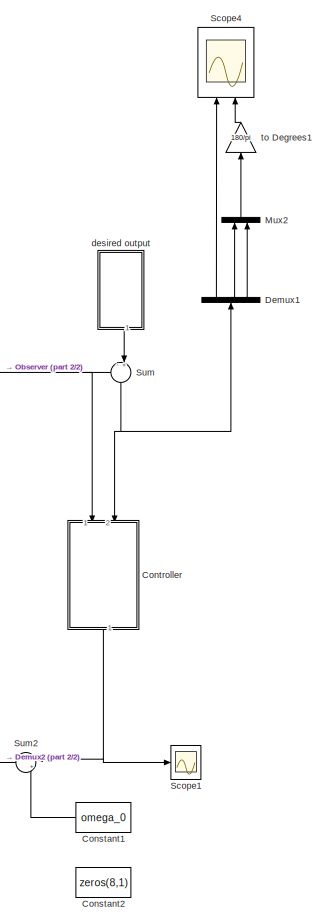
[diagram: root canvas - part 1/2, right side, full height]
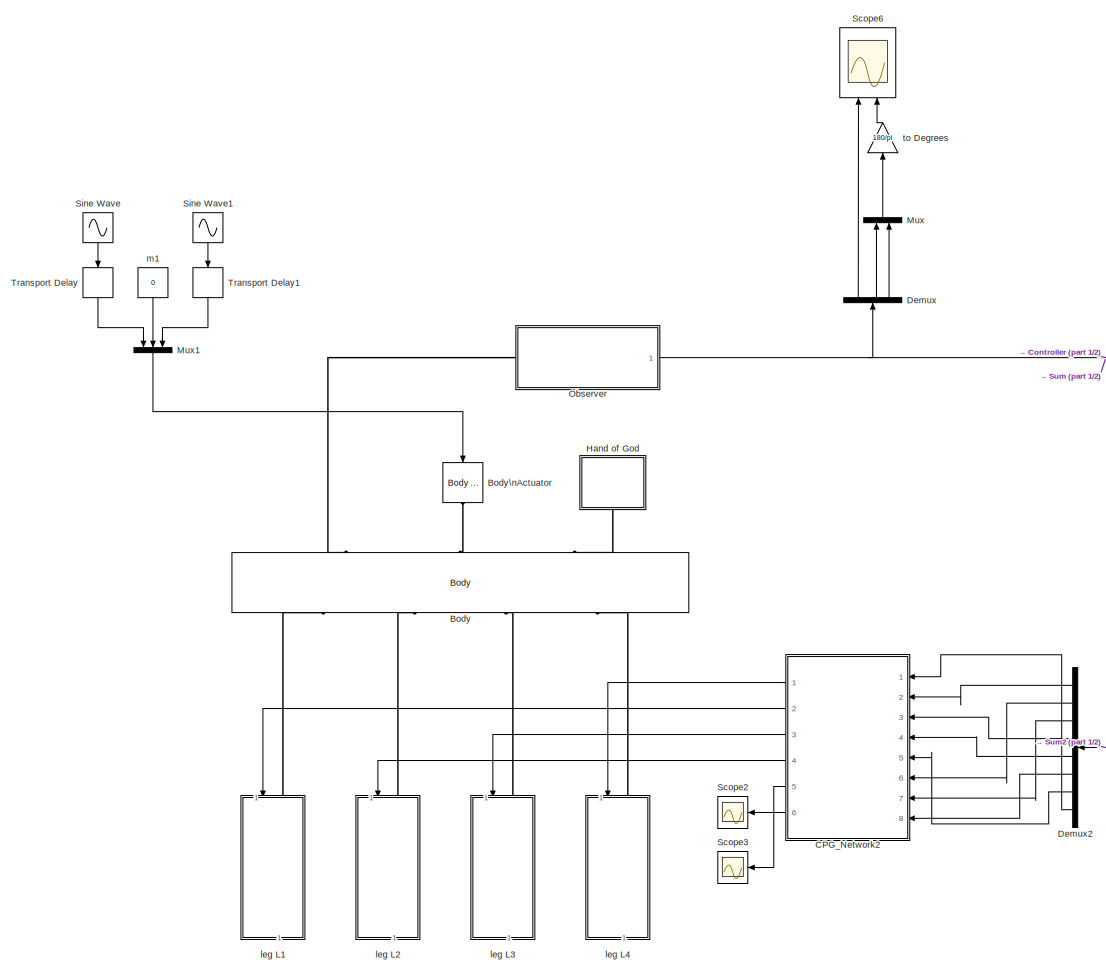
[diagram: root canvas - part 2/2, most of the canvas]
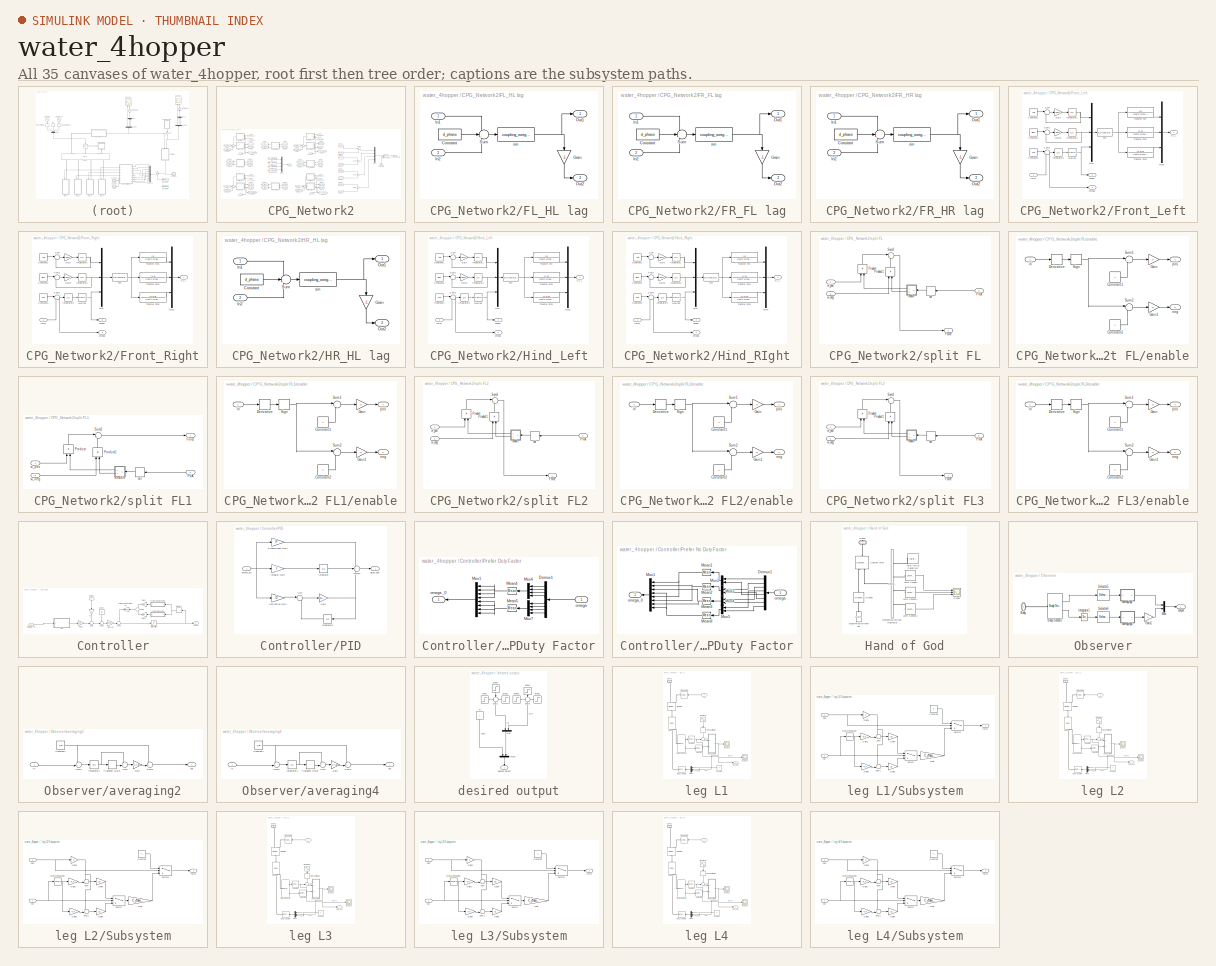
[diagram: thumbnail index - all 35 canvases of the model, root first then tree order]
MODEL water_4hopper
KIND model
BLOCK [Reference] Body  REF=mblibv1/Bodies/Body
  AttachedToCS = CG
  BodyColor = [1 0 0]
  BodyColorSelMode = MACHINE_DEFAULT
  CG = Left$CG$CG_pos$CS1$CS1$m$[0 0 0]$Euler X-Y-Z$deg$WORLD$true$none
  CGPos = CG_pos
  CGRot = [0 0 0]
  CS0Pos = []
  CS0Rot = []
  CS10Pos = CG_pos
  CS10Rot = [0 0 0]
  CS11Pos = []
  CS11Rot = []
  CS12Pos = []
  CS12Rot = []
  CS13Pos = []
  CS13Rot = []
  CS14Pos = []
  CS14Rot = []
  CS15Pos = []
  CS15Rot = []
  CS16Pos = []
  CS16Rot = []
  CS17Pos = []
  CS17Rot = []
  CS18Pos = []
  CS18Rot = []
  CS19Pos = []
  CS19Rot = []
  CS1Pos = [0 0 0]
  CS1Rot = [0 0 0]
  CS20Pos = []
  CS20Rot = []
  CS2Pos = TR_FL
  CS2Rot = [0 0 0]
  CS3Pos = TR_HL
  CS3Rot = [0 0 0]
  CS4Pos = TR_HR
  CS4Rot = [0 0 0]
  CS5Pos = TR_FR
  CS5Rot = [0 0 0]
  CS6Pos = []
  CS6Rot = []
  CS7Pos = []
  CS7Rot = []
  CS8Pos = []
  CS8Rot = []
  CS9Pos = []
  CS9Rot = []
  ClassName = Body
  Density = 1
  DensityUnits = kg/m^3
  DensityUse = false
  DialogClass = MechanicalBodyBlock
  GraphicsMode = MACHINE_DEFAULT
  Inertia = frame_inertia
  InertiaUnits = kg*m^2
  LConnTagsString = CG|CS10|CS1
  Mass = mass
  MassUnits = kg
  Ports = [0, 0, 0, 0, 0, 3, 4]
  RConnTagsString = CS2|CS3|CS4|CS5
  SID = 2
  Shape = Cylinder
  ShapeDims = [1 1]
  ShapeUnits = m
  ShapeUse = false
  SourceBlock = mblibv1/Bodies/Body
  SourceType = Body
  UpdateFromCAD = off
  WorkingFrames = Left$CS10$CG_pos$CS1$CS1$m$[0 0 0]$Euler X-Y-Z$deg$WORLD$true$none#Left$CS1$[0 0 0]$Adjoining$Adjoining$m$[0 0 0]$Euler X-Y-Z$deg$WORLD$true$none#Right$CS2$TR_FL$CS1$CS1$m$[0 0 0]$Euler X-Y-Z$deg$WORLD$true$none#Right$CS3$TR_HL$CS1$CS1$m$[0 0 0]$Euler X-Y-Z$deg$WORLD$true$none#Right$CS4$TR_HR$CS1$CS1$m$[0 0 0]$Euler X-Y-Z$deg$WORLD$true$none#Right$CS5$TR_FR$CS1$CS1$m$[0 0 0]$Euler X-Y-Z$deg$WORLD$...<+9ch>
BLOCK [Reference] Body\nActuator  REF=mblibv1/Sensors & \nActuators/Body Actuator
  AccelerationUnits = m/s^2
  ActiveIO = on
  ActuationStyle = Force
  Angle = off
  AngleUnits = deg
  ArcAccelerationUnits = deg/s^2
  ArcVelocityUnits = deg/s
  ClassName = BodyActuatorForceTorque
  CoordPosition = on
  CoordPositionUnits = m
  DialogClass = MechanicalActuatorBlock
  Force = off
  ForceUnits = N
  PhysicalDomain = Mechanical
  PortType = blob
  Ports = [1, 0, 0, 0, 0, 0, 1]
  ReferenceFrame = Absolute (World)
  SID = 7035
  SourceBlock = mblibv1/Sensors & \nActuators/Body Actuator
  SourceType = Body Actuator
  Torque = on
  TorqueUnits = N*m
  UpdateFromCAD = off
  VelocityUnits = m/s
  Width = 3
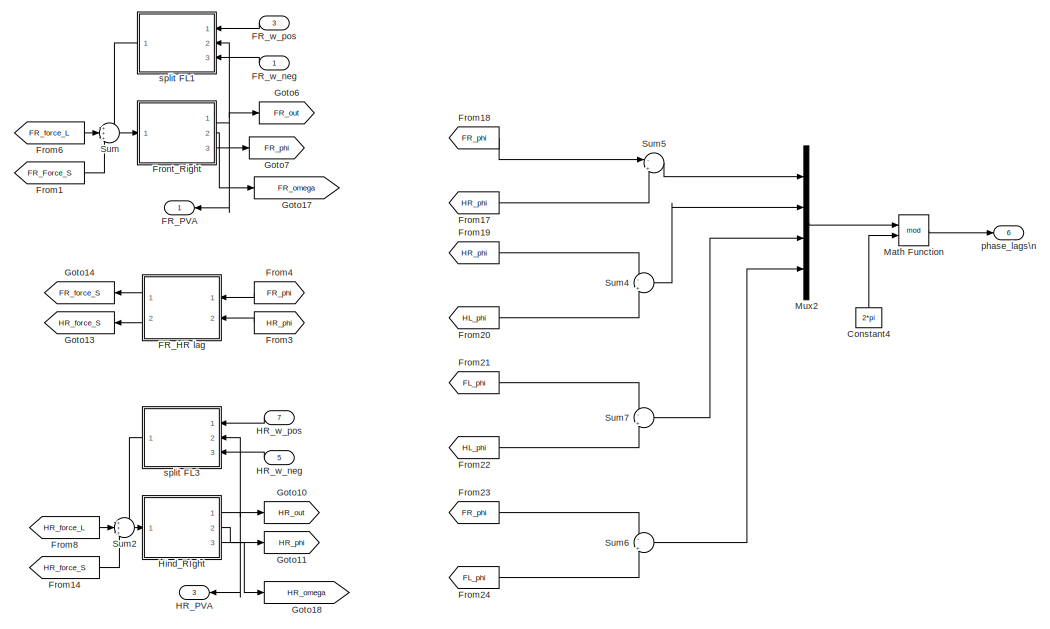
[diagram: CPG_Network2 - part 1/2, right side, full height]
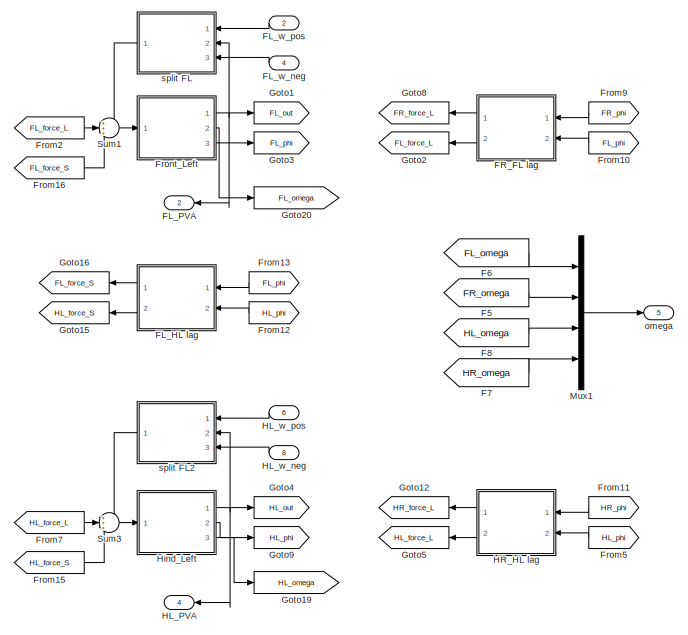
[diagram: CPG_Network2 - part 2/2, left side, full height]
BLOCK [SubSystem] CPG_Network2
  FunctionWithSeparateData = off
  MaskHideContents = off
  MinAlgLoopOccurrences = off
  Opaque = off
  Ports = [8, 6]
  PropExecContextOutsideSubsystem = off
  RTWSystemCode = Auto
  RequestExecContextInheritance = off
  SID = 4636
BLOCK [Constant] CPG_Network2/Constant4
  SID = 7315
  Value = 2*pi
BLOCK [From] CPG_Network2/F5
  GotoTag = FR_omega
  SID = 6398
BLOCK [From] CPG_Network2/F6
  GotoTag = FL_omega
  SID = 6399
BLOCK [From] CPG_Network2/F7
  GotoTag = HR_omega
  SID = 6400
BLOCK [From] CPG_Network2/F8
  GotoTag = HL_omega
  SID = 6401
BLOCK [SubSystem] CPG_Network2/FL_HL lag
  FunctionWithSeparateData = off
  MaskHideContents = off
  MinAlgLoopOccurrences = off
  Opaque = off
  Ports = [2, 2]
  PropExecContextOutsideSubsystem = off
  RTWSystemCode = Auto
  RequestExecContextInheritance = off
  SID = 4649
BLOCK [Constant] CPG_Network2/FL_HL lag/Constant
  SID = 4652
  Value = d_phase
BLOCK [Gain] CPG_Network2/FL_HL lag/Gain
  Gain = -1
  OutDataTypeStr = Inherit: Inherit via internal rule
  ParamDataTypeStr = Inherit: Inherit via internal rule
  SID = 4653
  SaturateOnIntegerOverflow = off
BLOCK [Inport] CPG_Network2/FL_HL lag/In1
  IconDisplay = Port number
  SID = 4650
BLOCK [Inport] CPG_Network2/FL_HL lag/In2
  IconDisplay = Port number
  Port = 2
  SID = 4651
BLOCK [Outport] CPG_Network2/FL_HL lag/Out1
  IconDisplay = Port number
  SID = 4656
BLOCK [Outport] CPG_Network2/FL_HL lag/Out2
  IconDisplay = Port number
  Port = 2
  SID = 4657
BLOCK [Sum] CPG_Network2/FL_HL lag/Sum
  IconShape = round
  InputSameDT = off
  Inputs = --+
  OutDataTypeStr = Inherit: Inherit via internal rule
  Ports = [3, 1]
  SID = 4654
  SaturateOnIntegerOverflow = off
BLOCK [Fcn] CPG_Network2/FL_HL lag/sin
  Expr = coupling_weight*sin(u(1))
  SID = 4655
BLOCK [Outport] CPG_Network2/FL_PVA
  IconDisplay = Port number
  Port = 2
  SID = 4901
BLOCK [Inport] CPG_Network2/FL_w_neg
  IconDisplay = Port number
  Port = 4
  SID = 4640
BLOCK [Inport] CPG_Network2/FL_w_pos
  IconDisplay = Port number
  Port = 2
  SID = 4638
BLOCK [SubSystem] CPG_Network2/FR_FL lag
  FunctionWithSeparateData = off
  MaskHideContents = off
  MinAlgLoopOccurrences = off
  Opaque = off
  Ports = [2, 2]
  PropExecContextOutsideSubsystem = off
  RTWSystemCode = Auto
  RequestExecContextInheritance = off
  SID = 4658
BLOCK [Constant] CPG_Network2/FR_FL lag/Constant
  SID = 4661
  Value = d_phase
BLOCK [Gain] CPG_Network2/FR_FL lag/Gain
  Gain = -1
  OutDataTypeStr = Inherit: Inherit via internal rule
  ParamDataTypeStr = Inherit: Inherit via internal rule
  SID = 4662
  SaturateOnIntegerOverflow = off
BLOCK [Inport] CPG_Network2/FR_FL lag/In1
  IconDisplay = Port number
  SID = 4659
BLOCK [Inport] CPG_Network2/FR_FL lag/In2
  IconDisplay = Port number
  Port = 2
  SID = 4660
BLOCK [Outport] CPG_Network2/FR_FL lag/Out1
  IconDisplay = Port number
  SID = 4665
BLOCK [Outport] CPG_Network2/FR_FL lag/Out2
  IconDisplay = Port number
  Port = 2
  SID = 4666
BLOCK [Sum] CPG_Network2/FR_FL lag/Sum
  IconShape = round
  InputSameDT = off
  Inputs = --+
  OutDataTypeStr = Inherit: Inherit via internal rule
  Ports = [3, 1]
  SID = 4663
  SaturateOnIntegerOverflow = off
BLOCK [Fcn] CPG_Network2/FR_FL lag/sin
  Expr = coupling_weight*sin(u(1))
  SID = 4664
BLOCK [SubSystem] CPG_Network2/FR_HR lag
  FunctionWithSeparateData = off
  MaskHideContents = off
  MinAlgLoopOccurrences = off
  Opaque = off
  Ports = [2, 2]
  PropExecContextOutsideSubsystem = off
  RTWSystemCode = Auto
  RequestExecContextInheritance = off
  SID = 4667
BLOCK [Constant] CPG_Network2/FR_HR lag/Constant
  SID = 4670
  Value = d_phase
BLOCK [Gain] CPG_Network2/FR_HR lag/Gain
  Gain = -1
  OutDataTypeStr = Inherit: Inherit via internal rule
  ParamDataTypeStr = Inherit: Inherit via internal rule
  SID = 4671
  SaturateOnIntegerOverflow = off
BLOCK [Inport] CPG_Network2/FR_HR lag/In1
  IconDisplay = Port number
  SID = 4668
BLOCK [Inport] CPG_Network2/FR_HR lag/In2
  IconDisplay = Port number
  Port = 2
  SID = 4669
BLOCK [Outport] CPG_Network2/FR_HR lag/Out1
  IconDisplay = Port number
  SID = 4674
BLOCK [Outport] CPG_Network2/FR_HR lag/Out2
  IconDisplay = Port number
  Port = 2
  SID = 4675
BLOCK [Sum] CPG_Network2/FR_HR lag/Sum
  IconShape = round
  InputSameDT = off
  Inputs = --+
  OutDataTypeStr = Inherit: Inherit via internal rule
  Ports = [3, 1]
  SID = 4672
  SaturateOnIntegerOverflow = off
BLOCK [Fcn] CPG_Network2/FR_HR lag/sin
  Expr = coupling_weight*sin(u(1))
  SID = 4673
BLOCK [Outport] CPG_Network2/FR_PVA
  IconDisplay = Port number
  SID = 4900
BLOCK [Inport] CPG_Network2/FR_w_neg
  IconDisplay = Port number
  SID = 4637
BLOCK [Inport] CPG_Network2/FR_w_pos
  IconDisplay = Port number
  Port = 3
  SID = 4639
BLOCK [From] CPG_Network2/From1
  GotoTag = FR_Force_S
  SID = 4676
BLOCK [From] CPG_Network2/From10
  GotoTag = FL_phi
  SID = 4677
BLOCK [From] CPG_Network2/From11
  GotoTag = HR_phi
  SID = 4678
BLOCK [From] CPG_Network2/From12
  GotoTag = HL_phi
  SID = 4679
BLOCK [From] CPG_Network2/From13
  GotoTag = FL_phi
  SID = 4680
BLOCK [From] CPG_Network2/From14
  GotoTag = HR_force_S
  SID = 4681
BLOCK [From] CPG_Network2/From15
  GotoTag = HL_force_S
  SID = 4682
BLOCK [From] CPG_Network2/From16
  GotoTag = FL_force_S
  SID = 4683
BLOCK [From] CPG_Network2/From17
  GotoTag = HR_phi
  SID = 7284
BLOCK [From] CPG_Network2/From18
  GotoTag = FR_phi
  SID = 7285
BLOCK [From] CPG_Network2/From19
  GotoTag = HR_phi
  SID = 7291
BLOCK [From] CPG_Network2/From2
  GotoTag = FL_force_L
  SID = 4684
BLOCK [From] CPG_Network2/From20
  GotoTag = HL_phi
  SID = 7292
BLOCK [From] CPG_Network2/From21
  GotoTag = FL_phi
  SID = 7294
BLOCK [From] CPG_Network2/From22
  GotoTag = HL_phi
  SID = 7295
BLOCK [From] CPG_Network2/From23
  GotoTag = FR_phi
  SID = 7298
BLOCK [From] CPG_Network2/From24
  GotoTag = FL_phi
  SID = 7299
BLOCK [From] CPG_Network2/From3
  GotoTag = HR_phi
  SID = 4685
BLOCK [From] CPG_Network2/From4
  GotoTag = FR_phi
  SID = 4686
BLOCK [From] CPG_Network2/From5
  GotoTag = HL_phi
  SID = 4687
BLOCK [From] CPG_Network2/From6
  GotoTag = FR_force_L
  SID = 4688
BLOCK [From] CPG_Network2/From7
  GotoTag = HL_force_L
  SID = 4689
BLOCK [From] CPG_Network2/From8
  GotoTag = HR_force_L
  SID = 4690
BLOCK [From] CPG_Network2/From9
  GotoTag = FR_phi
  SID = 4691
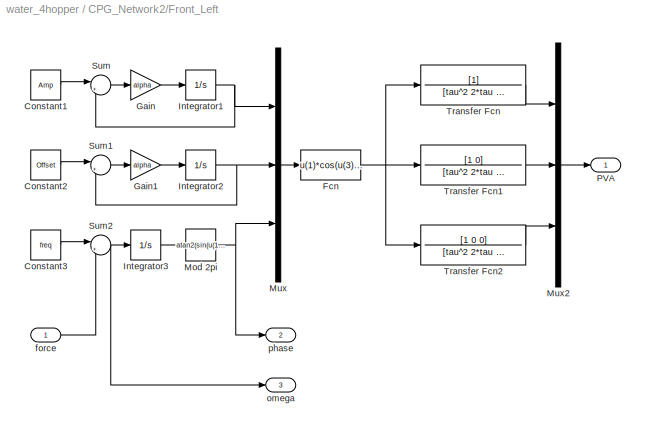
BLOCK [SubSystem] CPG_Network2/Front_Left
  FunctionWithSeparateData = off
  MaskHideContents = off
  MinAlgLoopOccurrences = off
  Opaque = off
  Ports = [1, 3]
  PropExecContextOutsideSubsystem = off
  RTWSystemCode = Auto
  RequestExecContextInheritance = off
  SID = 6363
BLOCK [Constant] CPG_Network2/Front_Left/Constant1
  SID = 6365
  Value = Amp
BLOCK [Constant] CPG_Network2/Front_Left/Constant2
  SID = 6366
  Value = Offset
BLOCK [Constant] CPG_Network2/Front_Left/Constant3
  SID = 6367
  Value = freq
BLOCK [Fcn] CPG_Network2/Front_Left/Fcn
  Expr = u(1)*cos(u(3))+u(2)
  SID = 6368
BLOCK [Gain] CPG_Network2/Front_Left/Gain
  Gain = alpha
  OutDataTypeStr = Inherit: Inherit via internal rule
  ParamDataTypeStr = Inherit: Inherit via internal rule
  SID = 6369
  SaturateOnIntegerOverflow = off
BLOCK [Gain] CPG_Network2/Front_Left/Gain1
  Gain = alpha
  OutDataTypeStr = Inherit: Inherit via internal rule
  ParamDataTypeStr = Inherit: Inherit via internal rule
  SID = 6370
  SaturateOnIntegerOverflow = off
BLOCK [Integrator] CPG_Network2/Front_Left/Integrator1
  Ports = [1, 1]
  SID = 6371
BLOCK [Integrator] CPG_Network2/Front_Left/Integrator2
  Ports = [1, 1]
  SID = 6372
BLOCK [Integrator] CPG_Network2/Front_Left/Integrator3
  InitialCondition = init_phi + 0.01*rand
  Ports = [1, 1]
  SID = 6373
BLOCK [Fcn] CPG_Network2/Front_Left/Mod 2pi
  Expr = atan2(sin(u(1)-pi),cos(u(1)-pi))+pi
  SID = 6374
BLOCK [Mux] CPG_Network2/Front_Left/Mux
  DisplayOption = bar
  Inputs = 3
  Ports = [3, 1]
  SID = 6375
BLOCK [Mux] CPG_Network2/Front_Left/Mux2
  DisplayOption = bar
  Inputs = 3
  Ports = [3, 1]
  SID = 6376
BLOCK [Outport] CPG_Network2/Front_Left/PVA
  IconDisplay = Port number
  SID = 6383
BLOCK [Sum] CPG_Network2/Front_Left/Sum
  IconShape = round
  InputSameDT = off
  Inputs = |+-
  OutDataTypeStr = Inherit: Inherit via internal rule
  Ports = [2, 1]
  SID = 6377
  SaturateOnIntegerOverflow = off
BLOCK [Sum] CPG_Network2/Front_Left/Sum1
  IconShape = round
  InputSameDT = off
  Inputs = |+-
  OutDataTypeStr = Inherit: Inherit via internal rule
  Ports = [2, 1]
  SID = 6378
  SaturateOnIntegerOverflow = off
BLOCK [Sum] CPG_Network2/Front_Left/Sum2
  IconShape = round
  InputSameDT = off
  Inputs = |++
  OutDataTypeStr = Inherit: Inherit via internal rule
  Ports = [2, 1]
  SID = 6379
  SaturateOnIntegerOverflow = off
BLOCK [TransferFcn] CPG_Network2/Front_Left/Transfer Fcn
  Denominator = [tau^2 2*tau 1]
  SID = 6380
BLOCK [TransferFcn] CPG_Network2/Front_Left/Transfer Fcn1
  Denominator = [tau^2 2*tau 1]
  Numerator = [1 0]
  SID = 6381
BLOCK [TransferFcn] CPG_Network2/Front_Left/Transfer Fcn2
  Denominator = [tau^2 2*tau 1]
  Numerator = [1 0 0]
  SID = 6382
BLOCK [Inport] CPG_Network2/Front_Left/force
  IconDisplay = Port number
  SID = 6364
BLOCK [Outport] CPG_Network2/Front_Left/omega
  IconDisplay = Port number
  Port = 3
  SID = 6385
BLOCK [Outport] CPG_Network2/Front_Left/phase
  IconDisplay = Port number
  Port = 2
  SID = 6384
BLOCK [SubSystem] CPG_Network2/Front_Right
  FunctionWithSeparateData = off
  MaskHideContents = off
  MinAlgLoopOccurrences = off
  Opaque = off
  Ports = [1, 3]
  PropExecContextOutsideSubsystem = off
  RTWSystemCode = Auto
  RequestExecContextInheritance = off
  SID = 4714
BLOCK [Constant] CPG_Network2/Front_Right/Constant1
  SID = 4716
  Value = Amp
BLOCK [Constant] CPG_Network2/Front_Right/Constant2
  SID = 4717
  Value = Offset
BLOCK [Constant] CPG_Network2/Front_Right/Constant3
  SID = 4718
  Value = freq
BLOCK [Fcn] CPG_Network2/Front_Right/Fcn
  Expr = u(1)*cos(u(3))+u(2)
  SID = 4719
BLOCK [Gain] CPG_Network2/Front_Right/Gain
  Gain = alpha
  OutDataTypeStr = Inherit: Inherit via internal rule
  ParamDataTypeStr = Inherit: Inherit via internal rule
  SID = 4720
  SaturateOnIntegerOverflow = off
BLOCK [Gain] CPG_Network2/Front_Right/Gain1
  Gain = alpha
  OutDataTypeStr = Inherit: Inherit via internal rule
  ParamDataTypeStr = Inherit: Inherit via internal rule
  SID = 4721
  SaturateOnIntegerOverflow = off
BLOCK [Integrator] CPG_Network2/Front_Right/Integrator1
  Ports = [1, 1]
  SID = 4722
BLOCK [Integrator] CPG_Network2/Front_Right/Integrator2
  Ports = [1, 1]
  SID = 4723
BLOCK [Integrator] CPG_Network2/Front_Right/Integrator3
  InitialCondition = init_phi + 0.01*rand
  Ports = [1, 1]
  SID = 4724
BLOCK [Fcn] CPG_Network2/Front_Right/Mod 2pi
  Expr = atan2(sin(u(1)-pi),cos(u(1)-pi))+pi
  SID = 4725
BLOCK [Mux] CPG_Network2/Front_Right/Mux
  DisplayOption = bar
  Inputs = 3
  Ports = [3, 1]
  SID = 4726
BLOCK [Mux] CPG_Network2/Front_Right/Mux2
  DisplayOption = bar
  Inputs = 3
  Ports = [3, 1]
  SID = 4727
BLOCK [Outport] CPG_Network2/Front_Right/PVA
  IconDisplay = Port number
  SID = 4734
BLOCK [Sum] CPG_Network2/Front_Right/Sum
  IconShape = round
  InputSameDT = off
  Inputs = |+-
  OutDataTypeStr = Inherit: Inherit via internal rule
  Ports = [2, 1]
  SID = 4728
  SaturateOnIntegerOverflow = off
BLOCK [Sum] CPG_Network2/Front_Right/Sum1
  IconShape = round
  InputSameDT = off
  Inputs = |+-
  OutDataTypeStr = Inherit: Inherit via internal rule
  Ports = [2, 1]
  SID = 4729
  SaturateOnIntegerOverflow = off
BLOCK [Sum] CPG_Network2/Front_Right/Sum2
  IconShape = round
  InputSameDT = off
  Inputs = |++
  OutDataTypeStr = Inherit: Inherit via internal rule
  Ports = [2, 1]
  SID = 4730
  SaturateOnIntegerOverflow = off
BLOCK [TransferFcn] CPG_Network2/Front_Right/Transfer Fcn3
  Denominator = [tau^2 2*tau 1]
  SID = 6978
BLOCK [TransferFcn] CPG_Network2/Front_Right/Transfer Fcn4
  Denominator = [tau^2 2*tau 1]
  Numerator = [1 0]
  SID = 6979
BLOCK [TransferFcn] CPG_Network2/Front_Right/Transfer Fcn5
  Denominator = [tau^2 2*tau 1]
  Numerator = [1 0 0]
  SID = 6980
BLOCK [Inport] CPG_Network2/Front_Right/force
  IconDisplay = Port number
  SID = 4715
BLOCK [Outport] CPG_Network2/Front_Right/omega
  IconDisplay = Port number
  Port = 3
  SID = 6312
BLOCK [Outport] CPG_Network2/Front_Right/phase
  IconDisplay = Port number
  Port = 2
  SID = 4735
BLOCK [Goto] CPG_Network2/Goto1
  GotoTag = FL_out
  SID = 4736
BLOCK [Goto] CPG_Network2/Goto10
  GotoTag = HR_out
  SID = 4737
BLOCK [Goto] CPG_Network2/Goto11
  GotoTag = HR_phi
  SID = 4738
BLOCK [Goto] CPG_Network2/Goto12
  GotoTag = HR_force_L
  SID = 4739
BLOCK [Goto] CPG_Network2/Goto13
  GotoTag = HR_force_S
  SID = 4740
BLOCK [Goto] CPG_Network2/Goto14
  GotoTag = FR_force_S
  SID = 4741
BLOCK [Goto] CPG_Network2/Goto15
  GotoTag = HL_force_S
  SID = 4742
BLOCK [Goto] CPG_Network2/Goto16
  GotoTag = FL_force_S
  SID = 4743
BLOCK [Goto] CPG_Network2/Goto17
  GotoTag = FR_omega
  SID = 6336
BLOCK [Goto] CPG_Network2/Goto18
  GotoTag = HR_omega
  SID = 6337
BLOCK [Goto] CPG_Network2/Goto19
  GotoTag = HL_omega
  SID = 6338
BLOCK [Goto] CPG_Network2/Goto2
  GotoTag = FL_force_L
  SID = 4744
BLOCK [Goto] CPG_Network2/Goto20
  GotoTag = FL_omega
  SID = 6362
BLOCK [Goto] CPG_Network2/Goto3
  GotoTag = FL_phi
  SID = 4745
BLOCK [Goto] CPG_Network2/Goto4
  GotoTag = HL_out
  SID = 4746
BLOCK [Goto] CPG_Network2/Goto5
  GotoTag = HL_force_L
  SID = 4747
BLOCK [Goto] CPG_Network2/Goto6
  GotoTag = FR_out
  SID = 4748
BLOCK [Goto] CPG_Network2/Goto7
  GotoTag = FR_phi
  SID = 4749
BLOCK [Goto] CPG_Network2/Goto8
  GotoTag = FR_force_L
  SID = 4750
BLOCK [Goto] CPG_Network2/Goto9
  GotoTag = HL_phi
  SID = 4751
BLOCK [Outport] CPG_Network2/HL_PVA
  IconDisplay = Port number
  Port = 4
  SID = 4903
BLOCK [Inport] CPG_Network2/HL_w_neg
  IconDisplay = Port number
  Port = 8
  SID = 4644
BLOCK [Inport] CPG_Network2/HL_w_pos
  IconDisplay = Port number
  Port = 6
  SID = 4642
BLOCK [SubSystem] CPG_Network2/HR_HL lag
  FunctionWithSeparateData = off
  MaskHideContents = off
  MinAlgLoopOccurrences = off
  Opaque = off
  Ports = [2, 2]
  PropExecContextOutsideSubsystem = off
  RTWSystemCode = Auto
  RequestExecContextInheritance = off
  SID = 4752
BLOCK [Constant] CPG_Network2/HR_HL lag/Constant
  SID = 4755
  Value = d_phase
BLOCK [Gain] CPG_Network2/HR_HL lag/Gain
  Gain = -1
  OutDataTypeStr = Inherit: Inherit via internal rule
  ParamDataTypeStr = Inherit: Inherit via internal rule
  SID = 4756
  SaturateOnIntegerOverflow = off
BLOCK [Inport] CPG_Network2/HR_HL lag/In1
  IconDisplay = Port number
  SID = 4753
BLOCK [Inport] CPG_Network2/HR_HL lag/In2
  IconDisplay = Port number
  Port = 2
  SID = 4754
BLOCK [Outport] CPG_Network2/HR_HL lag/Out1
  IconDisplay = Port number
  SID = 4759
BLOCK [Outport] CPG_Network2/HR_HL lag/Out2
  IconDisplay = Port number
  Port = 2
  SID = 4760
BLOCK [Sum] CPG_Network2/HR_HL lag/Sum
  IconShape = round
  InputSameDT = off
  Inputs = --+
  OutDataTypeStr = Inherit: Inherit via internal rule
  Ports = [3, 1]
  SID = 4757
  SaturateOnIntegerOverflow = off
BLOCK [Fcn] CPG_Network2/HR_HL lag/sin
  Expr = coupling_weight*sin(u(1))
  SID = 4758
BLOCK [Outport] CPG_Network2/HR_PVA
  IconDisplay = Port number
  Port = 3
  SID = 4902
BLOCK [Inport] CPG_Network2/HR_w_neg
  IconDisplay = Port number
  Port = 5
  SID = 4641
BLOCK [Inport] CPG_Network2/HR_w_pos
  IconDisplay = Port number
  Port = 7
  SID = 4643
BLOCK [SubSystem] CPG_Network2/Hind_Left
  FunctionWithSeparateData = off
  MaskHideContents = off
  MinAlgLoopOccurrences = off
  Opaque = off
  Ports = [1, 3]
  PropExecContextOutsideSubsystem = off
  RTWSystemCode = Auto
  RequestExecContextInheritance = off
  SID = 6339
BLOCK [Constant] CPG_Network2/Hind_Left/Constant1
  SID = 6341
  Value = Amp
BLOCK [Constant] CPG_Network2/Hind_Left/Constant2
  SID = 6342
  Value = Offset
BLOCK [Constant] CPG_Network2/Hind_Left/Constant3
  SID = 6343
  Value = freq
BLOCK [Fcn] CPG_Network2/Hind_Left/Fcn
  Expr = u(1)*cos(u(3))+u(2)
  SID = 6344
BLOCK [Gain] CPG_Network2/Hind_Left/Gain
  Gain = alpha
  OutDataTypeStr = Inherit: Inherit via internal rule
  ParamDataTypeStr = Inherit: Inherit via internal rule
  SID = 6345
  SaturateOnIntegerOverflow = off
BLOCK [Gain] CPG_Network2/Hind_Left/Gain1
  Gain = alpha
  OutDataTypeStr = Inherit: Inherit via internal rule
  ParamDataTypeStr = Inherit: Inherit via internal rule
  SID = 6346
  SaturateOnIntegerOverflow = off
BLOCK [Integrator] CPG_Network2/Hind_Left/Integrator1
  Ports = [1, 1]
  SID = 6347
BLOCK [Integrator] CPG_Network2/Hind_Left/Integrator2
  Ports = [1, 1]
  SID = 6348
BLOCK [Integrator] CPG_Network2/Hind_Left/Integrator3
  InitialCondition = init_phi + 0.01*rand
  Ports = [1, 1]
  SID = 6349
BLOCK [Fcn] CPG_Network2/Hind_Left/Mod 2pi
  Expr = atan2(sin(u(1)-pi),cos(u(1)-pi))+pi
  SID = 6350
BLOCK [Mux] CPG_Network2/Hind_Left/Mux
  DisplayOption = bar
  Inputs = 3
  Ports = [3, 1]
  SID = 6351
BLOCK [Mux] CPG_Network2/Hind_Left/Mux2
  DisplayOption = bar
  Inputs = 3
  Ports = [3, 1]
  SID = 6352
BLOCK [Outport] CPG_Network2/Hind_Left/PVA
  IconDisplay = Port number
  SID = 6359
BLOCK [Sum] CPG_Network2/Hind_Left/Sum
  IconShape = round
  InputSameDT = off
  Inputs = |+-
  OutDataTypeStr = Inherit: Inherit via internal rule
  Ports = [2, 1]
  SID = 6353
  SaturateOnIntegerOverflow = off
BLOCK [Sum] CPG_Network2/Hind_Left/Sum1
  IconShape = round
  InputSameDT = off
  Inputs = |+-
  OutDataTypeStr = Inherit: Inherit via internal rule
  Ports = [2, 1]
  SID = 6354
  SaturateOnIntegerOverflow = off
BLOCK [Sum] CPG_Network2/Hind_Left/Sum2
  IconShape = round
  InputSameDT = off
  Inputs = |++
  OutDataTypeStr = Inherit: Inherit via internal rule
  Ports = [2, 1]
  SID = 6355
  SaturateOnIntegerOverflow = off
BLOCK [TransferFcn] CPG_Network2/Hind_Left/Transfer Fcn
  Denominator = [tau^2 2*tau 1]
  SID = 6356
BLOCK [TransferFcn] CPG_Network2/Hind_Left/Transfer Fcn1
  Denominator = [tau^2 2*tau 1]
  Numerator = [1 0]
  SID = 6357
BLOCK [TransferFcn] CPG_Network2/Hind_Left/Transfer Fcn2
  Denominator = [tau^2 2*tau 1]
  Numerator = [1 0 0]
  SID = 6358
BLOCK [Inport] CPG_Network2/Hind_Left/force
  IconDisplay = Port number
  SID = 6340
BLOCK [Outport] CPG_Network2/Hind_Left/omega
  IconDisplay = Port number
  Port = 3
  SID = 6361
BLOCK [Outport] CPG_Network2/Hind_Left/phase
  IconDisplay = Port number
  Port = 2
  SID = 6360
BLOCK [SubSystem] CPG_Network2/Hind_RIght
  FunctionWithSeparateData = off
  MaskHideContents = off
  MinAlgLoopOccurrences = off
  Opaque = off
  Ports = [1, 3]
  PropExecContextOutsideSubsystem = off
  RTWSystemCode = Auto
  RequestExecContextInheritance = off
  SID = 6313
BLOCK [Constant] CPG_Network2/Hind_RIght/Constant1
  SID = 6315
  Value = Amp
BLOCK [Constant] CPG_Network2/Hind_RIght/Constant2
  SID = 6316
  Value = Offset
BLOCK [Constant] CPG_Network2/Hind_RIght/Constant3
  SID = 6317
  Value = freq
BLOCK [Fcn] CPG_Network2/Hind_RIght/Fcn
  Expr = u(1)*cos(u(3))+u(2)
  SID = 6318
BLOCK [Gain] CPG_Network2/Hind_RIght/Gain
  Gain = alpha
  OutDataTypeStr = Inherit: Inherit via internal rule
  ParamDataTypeStr = Inherit: Inherit via internal rule
  SID = 6319
  SaturateOnIntegerOverflow = off
BLOCK [Gain] CPG_Network2/Hind_RIght/Gain1
  Gain = alpha
  OutDataTypeStr = Inherit: Inherit via internal rule
  ParamDataTypeStr = Inherit: Inherit via internal rule
  SID = 6320
  SaturateOnIntegerOverflow = off
BLOCK [Integrator] CPG_Network2/Hind_RIght/Integrator1
  Ports = [1, 1]
  SID = 6321
BLOCK [Integrator] CPG_Network2/Hind_RIght/Integrator2
  Ports = [1, 1]
  SID = 6322
BLOCK [Integrator] CPG_Network2/Hind_RIght/Integrator3
  InitialCondition = init_phi + 0.01*rand
  Ports = [1, 1]
  SID = 6323
BLOCK [Fcn] CPG_Network2/Hind_RIght/Mod 2pi
  Expr = atan2(sin(u(1)-pi),cos(u(1)-pi))+pi
  SID = 6324
BLOCK [Mux] CPG_Network2/Hind_RIght/Mux
  DisplayOption = bar
  Inputs = 3
  Ports = [3, 1]
  SID = 6325
BLOCK [Mux] CPG_Network2/Hind_RIght/Mux2
  DisplayOption = bar
  Inputs = 3
  Ports = [3, 1]
  SID = 6326
BLOCK [Outport] CPG_Network2/Hind_RIght/PVA
  IconDisplay = Port number
  SID = 6333
BLOCK [Sum] CPG_Network2/Hind_RIght/Sum
  IconShape = round
  InputSameDT = off
  Inputs = |+-
  OutDataTypeStr = Inherit: Inherit via internal rule
  Ports = [2, 1]
  SID = 6327
  SaturateOnIntegerOverflow = off
BLOCK [Sum] CPG_Network2/Hind_RIght/Sum1
  IconShape = round
  InputSameDT = off
  Inputs = |+-
  OutDataTypeStr = Inherit: Inherit via internal rule
  Ports = [2, 1]
  SID = 6328
  SaturateOnIntegerOverflow = off
BLOCK [Sum] CPG_Network2/Hind_RIght/Sum2
  IconShape = round
  InputSameDT = off
  Inputs = |++
  OutDataTypeStr = Inherit: Inherit via internal rule
  Ports = [2, 1]
  SID = 6329
  SaturateOnIntegerOverflow = off
BLOCK [TransferFcn] CPG_Network2/Hind_RIght/Transfer Fcn
  Denominator = [tau^2 2*tau 1]
  SID = 6330
BLOCK [TransferFcn] CPG_Network2/Hind_RIght/Transfer Fcn1
  Denominator = [tau^2 2*tau 1]
  Numerator = [1 0]
  SID = 6331
BLOCK [TransferFcn] CPG_Network2/Hind_RIght/Transfer Fcn2
  Denominator = [tau^2 2*tau 1]
  Numerator = [1 0 0]
  SID = 6332
BLOCK [Inport] CPG_Network2/Hind_RIght/force
  IconDisplay = Port number
  SID = 6314
BLOCK [Outport] CPG_Network2/Hind_RIght/omega
  IconDisplay = Port number
  Port = 3
  SID = 6335
BLOCK [Outport] CPG_Network2/Hind_RIght/phase
  IconDisplay = Port number
  Port = 2
  SID = 6334
BLOCK [Math] CPG_Network2/Math Function
  Operator = mod
  Ports = [2, 1]
  SID = 7316
BLOCK [Mux] CPG_Network2/Mux1
  DisplayOption = bar
  Ports = [4, 1]
  SID = 6390
BLOCK [Mux] CPG_Network2/Mux2
  DisplayOption = bar
  Ports = [4, 1]
  SID = 7283
BLOCK [Sum] CPG_Network2/Sum
  IconShape = round
  InputSameDT = off
  Inputs = +++
  OutDataTypeStr = Inherit: Inherit via internal rule
  Ports = [3, 1]
  SID = 4812
  SaturateOnIntegerOverflow = off
BLOCK [Sum] CPG_Network2/Sum1
  IconShape = round
  InputSameDT = off
  Inputs = +++
  OutDataTypeStr = Inherit: Inherit via internal rule
  Ports = [3, 1]
  SID = 4813
  SaturateOnIntegerOverflow = off
BLOCK [Sum] CPG_Network2/Sum2
  IconShape = round
  InputSameDT = off
  Inputs = +++
  OutDataTypeStr = Inherit: Inherit via internal rule
  Ports = [3, 1]
  SID = 4814
  SaturateOnIntegerOverflow = off
BLOCK [Sum] CPG_Network2/Sum3
  IconShape = round
  InputSameDT = off
  Inputs = +++
  OutDataTypeStr = Inherit: Inherit via internal rule
  Ports = [3, 1]
  SID = 4815
  SaturateOnIntegerOverflow = off
BLOCK [Sum] CPG_Network2/Sum4
  IconShape = round
  InputSameDT = off
  Inputs = -|+
  OutDataTypeStr = Inherit: Inherit via internal rule
  Ports = [2, 1]
  SID = 7317
  SaturateOnIntegerOverflow = off
BLOCK [Sum] CPG_Network2/Sum5
  IconShape = round
  InputSameDT = off
  Inputs = -|+
  OutDataTypeStr = Inherit: Inherit via internal rule
  Ports = [2, 1]
  SID = 7288
  SaturateOnIntegerOverflow = off
BLOCK [Sum] CPG_Network2/Sum6
  IconShape = round
  InputSameDT = off
  Inputs = -|+
  OutDataTypeStr = Inherit: Inherit via internal rule
  Ports = [2, 1]
  SID = 7318
  SaturateOnIntegerOverflow = off
BLOCK [Sum] CPG_Network2/Sum7
  IconShape = round
  InputSameDT = off
  Inputs = -|+
  OutDataTypeStr = Inherit: Inherit via internal rule
  Ports = [2, 1]
  SID = 7319
  SaturateOnIntegerOverflow = off
BLOCK [Outport] CPG_Network2/omega
  IconDisplay = Port number
  Port = 5
  SID = 6924
BLOCK [Outport] CPG_Network2/phase_lags\n
  IconDisplay = Port number
  Port = 6
  SID = 7301
BLOCK [SubSystem] CPG_Network2/split FL
  FunctionWithSeparateData = off
  MaskHideContents = off
  MinAlgLoopOccurrences = off
  Opaque = off
  Ports = [3, 1]
  PropExecContextOutsideSubsystem = off
  RTWSystemCode = Auto
  RequestExecContextInheritance = off
  SID = 4816
BLOCK [Outport] CPG_Network2/split FL/Force
  IconDisplay = Port number
  SID = 4836
BLOCK [Inport] CPG_Network2/split FL/PVA
  IconDisplay = Port number
  Port = 2
  SID = 4818
BLOCK [Product] CPG_Network2/split FL/Product
  InputSameDT = off
  OutDataTypeStr = Inherit: Inherit via internal rule
  Ports = [2, 1]
  SID = 4820
  SaturateOnIntegerOverflow = off
BLOCK [Product] CPG_Network2/split FL/Product1
  InputSameDT = off
  OutDataTypeStr = Inherit: Inherit via internal rule
  Ports = [2, 1]
  SID = 4821
  SaturateOnIntegerOverflow = off
BLOCK [Sum] CPG_Network2/split FL/Sum2
  IconShape = round
  InputSameDT = off
  Inputs = |++
  OutDataTypeStr = Inherit: Inherit via internal rule
  Ports = [2, 1]
  SID = 4822
  SaturateOnIntegerOverflow = off
BLOCK [SubSystem] CPG_Network2/split FL/enable
  FunctionWithSeparateData = off
  MaskHideContents = off
  MinAlgLoopOccurrences = off
  Opaque = off
  Ports = [1, 2]
  PropExecContextOutsideSubsystem = off
  RTWSystemCode = Auto
  RequestExecContextInheritance = off
  SID = 4823
BLOCK [Constant] CPG_Network2/split FL/enable/Constant1
  SID = 4825
BLOCK [Constant] CPG_Network2/split FL/enable/Constant2
  SID = 4826
BLOCK [Derivative] CPG_Network2/split FL/enable/Derivative
  SID = 4827
BLOCK [Gain] CPG_Network2/split FL/enable/Gain
  Gain = .5
  OutDataTypeStr = Inherit: Inherit via internal rule
  ParamDataTypeStr = Inherit: Inherit via internal rule
  SID = 4828
  SaturateOnIntegerOverflow = off
BLOCK [Gain] CPG_Network2/split FL/enable/Gain1
  Gain = .5
  OutDataTypeStr = Inherit: Inherit via internal rule
  ParamDataTypeStr = Inherit: Inherit via internal rule
  SID = 4829
  SaturateOnIntegerOverflow = off
BLOCK [Signum] CPG_Network2/split FL/enable/Sign
  SID = 4830
BLOCK [Sum] CPG_Network2/split FL/enable/Sum1
  IconShape = round
  InputSameDT = off
  Inputs = |++
  OutDataTypeStr = Inherit: Inherit via internal rule
  Ports = [2, 1]
  SID = 4831
  SaturateOnIntegerOverflow = off
BLOCK [Sum] CPG_Network2/split FL/enable/Sum2
  IconShape = round
  InputSameDT = off
  Inputs = |-+
  OutDataTypeStr = Inherit: Inherit via internal rule
  Ports = [2, 1]
  SID = 4832
  SaturateOnIntegerOverflow = off
BLOCK [Inport] CPG_Network2/split FL/enable/in
  IconDisplay = Port number
  SID = 4824
BLOCK [Outport] CPG_Network2/split FL/enable/neg
  IconDisplay = Port number
  Port = 2
  SID = 4834
BLOCK [Outport] CPG_Network2/split FL/enable/pos
  IconDisplay = Port number
  SID = 4833
BLOCK [Selector] CPG_Network2/split FL/sel
  IndexOptions = Index vector (dialog)
  Indices = [2]
  InputPortWidth = 3
  OutputSizes = 1
  Ports = [1, 1]
  SID = 4835
BLOCK [Inport] CPG_Network2/split FL/w_neg
  IconDisplay = Port number
  Port = 3
  SID = 4819
BLOCK [Inport] CPG_Network2/split FL/w_pos
  IconDisplay = Port number
  SID = 4817
BLOCK [SubSystem] CPG_Network2/split FL1
  FunctionWithSeparateData = off
  MaskHideContents = off
  MinAlgLoopOccurrences = off
  Opaque = off
  Ports = [3, 1]
  PropExecContextOutsideSubsystem = off
  RTWSystemCode = Auto
  RequestExecContextInheritance = off
  SID = 4837
BLOCK [Outport] CPG_Network2/split FL1/Force
  IconDisplay = Port number
  SID = 4857
BLOCK [Inport] CPG_Network2/split FL1/PVA
  IconDisplay = Port number
  Port = 2
  SID = 4839
BLOCK [Product] CPG_Network2/split FL1/Product
  InputSameDT = off
  OutDataTypeStr = Inherit: Inherit via internal rule
  Ports = [2, 1]
  SID = 4841
  SaturateOnIntegerOverflow = off
BLOCK [Product] CPG_Network2/split FL1/Product1
  InputSameDT = off
  OutDataTypeStr = Inherit: Inherit via internal rule
  Ports = [2, 1]
  SID = 4842
  SaturateOnIntegerOverflow = off
BLOCK [Sum] CPG_Network2/split FL1/Sum2
  IconShape = round
  InputSameDT = off
  Inputs = |++
  OutDataTypeStr = Inherit: Inherit via internal rule
  Ports = [2, 1]
  SID = 4843
  SaturateOnIntegerOverflow = off
BLOCK [SubSystem] CPG_Network2/split FL1/enable
  FunctionWithSeparateData = off
  MaskHideContents = off
  MinAlgLoopOccurrences = off
  Opaque = off
  Ports = [1, 2]
  PropExecContextOutsideSubsystem = off
  RTWSystemCode = Auto
  RequestExecContextInheritance = off
  SID = 4844
BLOCK [Constant] CPG_Network2/split FL1/enable/Constant1
  SID = 4846
BLOCK [Constant] CPG_Network2/split FL1/enable/Constant2
  SID = 4847
BLOCK [Derivative] CPG_Network2/split FL1/enable/Derivative
  SID = 4848
BLOCK [Gain] CPG_Network2/split FL1/enable/Gain
  Gain = .5
  OutDataTypeStr = Inherit: Inherit via internal rule
  ParamDataTypeStr = Inherit: Inherit via internal rule
  SID = 4849
  SaturateOnIntegerOverflow = off
BLOCK [Gain] CPG_Network2/split FL1/enable/Gain1
  Gain = .5
  OutDataTypeStr = Inherit: Inherit via internal rule
  ParamDataTypeStr = Inherit: Inherit via internal rule
  SID = 4850
  SaturateOnIntegerOverflow = off
BLOCK [Signum] CPG_Network2/split FL1/enable/Sign
  SID = 4851
BLOCK [Sum] CPG_Network2/split FL1/enable/Sum1
  IconShape = round
  InputSameDT = off
  Inputs = |++
  OutDataTypeStr = Inherit: Inherit via internal rule
  Ports = [2, 1]
  SID = 4852
  SaturateOnIntegerOverflow = off
BLOCK [Sum] CPG_Network2/split FL1/enable/Sum2
  IconShape = round
  InputSameDT = off
  Inputs = |-+
  OutDataTypeStr = Inherit: Inherit via internal rule
  Ports = [2, 1]
  SID = 4853
  SaturateOnIntegerOverflow = off
BLOCK [Inport] CPG_Network2/split FL1/enable/in
  IconDisplay = Port number
  SID = 4845
BLOCK [Outport] CPG_Network2/split FL1/enable/neg
  IconDisplay = Port number
  Port = 2
  SID = 4855
BLOCK [Outport] CPG_Network2/split FL1/enable/pos
  IconDisplay = Port number
  SID = 4854
BLOCK [Selector] CPG_Network2/split FL1/sel
  IndexOptions = Index vector (dialog)
  Indices = [2]
  InputPortWidth = 3
  OutputSizes = 1
  Ports = [1, 1]
  SID = 4856
BLOCK [Inport] CPG_Network2/split FL1/w_neg
  IconDisplay = Port number
  Port = 3
  SID = 4840
BLOCK [Inport] CPG_Network2/split FL1/w_pos
  IconDisplay = Port number
  SID = 4838
BLOCK [SubSystem] CPG_Network2/split FL2
  FunctionWithSeparateData = off
  MaskHideContents = off
  MinAlgLoopOccurrences = off
  Opaque = off
  Ports = [3, 1]
  PropExecContextOutsideSubsystem = off
  RTWSystemCode = Auto
  RequestExecContextInheritance = off
  SID = 4858
BLOCK [Outport] CPG_Network2/split FL2/Force
  IconDisplay = Port number
  SID = 4878
BLOCK [Inport] CPG_Network2/split FL2/PVA
  IconDisplay = Port number
  Port = 2
  SID = 4860
BLOCK [Product] CPG_Network2/split FL2/Product
  InputSameDT = off
  OutDataTypeStr = Inherit: Inherit via internal rule
  Ports = [2, 1]
  SID = 4862
  SaturateOnIntegerOverflow = off
BLOCK [Product] CPG_Network2/split FL2/Product1
  InputSameDT = off
  OutDataTypeStr = Inherit: Inherit via internal rule
  Ports = [2, 1]
  SID = 4863
  SaturateOnIntegerOverflow = off
BLOCK [Sum] CPG_Network2/split FL2/Sum2
  IconShape = round
  InputSameDT = off
  Inputs = |++
  OutDataTypeStr = Inherit: Inherit via internal rule
  Ports = [2, 1]
  SID = 4864
  SaturateOnIntegerOverflow = off
BLOCK [SubSystem] CPG_Network2/split FL2/enable
  FunctionWithSeparateData = off
  MaskHideContents = off
  MinAlgLoopOccurrences = off
  Opaque = off
  Ports = [1, 2]
  PropExecContextOutsideSubsystem = off
  RTWSystemCode = Auto
  RequestExecContextInheritance = off
  SID = 4865
BLOCK [Constant] CPG_Network2/split FL2/enable/Constant1
  SID = 4867
BLOCK [Constant] CPG_Network2/split FL2/enable/Constant2
  SID = 4868
BLOCK [Derivative] CPG_Network2/split FL2/enable/Derivative
  SID = 4869
BLOCK [Gain] CPG_Network2/split FL2/enable/Gain
  Gain = .5
  OutDataTypeStr = Inherit: Inherit via internal rule
  ParamDataTypeStr = Inherit: Inherit via internal rule
  SID = 4870
  SaturateOnIntegerOverflow = off
BLOCK [Gain] CPG_Network2/split FL2/enable/Gain1
  Gain = .5
  OutDataTypeStr = Inherit: Inherit via internal rule
  ParamDataTypeStr = Inherit: Inherit via internal rule
  SID = 4871
  SaturateOnIntegerOverflow = off
BLOCK [Signum] CPG_Network2/split FL2/enable/Sign
  SID = 4872
BLOCK [Sum] CPG_Network2/split FL2/enable/Sum1
  IconShape = round
  InputSameDT = off
  Inputs = |++
  OutDataTypeStr = Inherit: Inherit via internal rule
  Ports = [2, 1]
  SID = 4873
  SaturateOnIntegerOverflow = off
BLOCK [Sum] CPG_Network2/split FL2/enable/Sum2
  IconShape = round
  InputSameDT = off
  Inputs = |-+
  OutDataTypeStr = Inherit: Inherit via internal rule
  Ports = [2, 1]
  SID = 4874
  SaturateOnIntegerOverflow = off
BLOCK [Inport] CPG_Network2/split FL2/enable/in
  IconDisplay = Port number
  SID = 4866
BLOCK [Outport] CPG_Network2/split FL2/enable/neg
  IconDisplay = Port number
  Port = 2
  SID = 4876
BLOCK [Outport] CPG_Network2/split FL2/enable/pos
  IconDisplay = Port number
  SID = 4875
BLOCK [Selector] CPG_Network2/split FL2/sel
  IndexOptions = Index vector (dialog)
  Indices = [2]
  InputPortWidth = 3
  OutputSizes = 1
  Ports = [1, 1]
  SID = 4877
BLOCK [Inport] CPG_Network2/split FL2/w_neg
  IconDisplay = Port number
  Port = 3
  SID = 4861
BLOCK [Inport] CPG_Network2/split FL2/w_pos
  IconDisplay = Port number
  SID = 4859
BLOCK [SubSystem] CPG_Network2/split FL3
  FunctionWithSeparateData = off
  MaskHideContents = off
  MinAlgLoopOccurrences = off
  Opaque = off
  Ports = [3, 1]
  PropExecContextOutsideSubsystem = off
  RTWSystemCode = Auto
  RequestExecContextInheritance = off
  SID = 4879
BLOCK [Outport] CPG_Network2/split FL3/Force
  IconDisplay = Port number
  SID = 4899
BLOCK [Inport] CPG_Network2/split FL3/PVA
  IconDisplay = Port number
  Port = 2
  SID = 4881
BLOCK [Product] CPG_Network2/split FL3/Product
  InputSameDT = off
  OutDataTypeStr = Inherit: Inherit via internal rule
  Ports = [2, 1]
  SID = 4883
  SaturateOnIntegerOverflow = off
BLOCK [Product] CPG_Network2/split FL3/Product1
  InputSameDT = off
  OutDataTypeStr = Inherit: Inherit via internal rule
  Ports = [2, 1]
  SID = 4884
  SaturateOnIntegerOverflow = off
BLOCK [Sum] CPG_Network2/split FL3/Sum2
  IconShape = round
  InputSameDT = off
  Inputs = |++
  OutDataTypeStr = Inherit: Inherit via internal rule
  Ports = [2, 1]
  SID = 4885
  SaturateOnIntegerOverflow = off
BLOCK [SubSystem] CPG_Network2/split FL3/enable
  FunctionWithSeparateData = off
  MaskHideContents = off
  MinAlgLoopOccurrences = off
  Opaque = off
  Ports = [1, 2]
  PropExecContextOutsideSubsystem = off
  RTWSystemCode = Auto
  RequestExecContextInheritance = off
  SID = 4886
BLOCK [Constant] CPG_Network2/split FL3/enable/Constant1
  SID = 4888
BLOCK [Constant] CPG_Network2/split FL3/enable/Constant2
  SID = 4889
BLOCK [Derivative] CPG_Network2/split FL3/enable/Derivative
  SID = 4890
BLOCK [Gain] CPG_Network2/split FL3/enable/Gain
  Gain = .5
  OutDataTypeStr = Inherit: Inherit via internal rule
  ParamDataTypeStr = Inherit: Inherit via internal rule
  SID = 4891
  SaturateOnIntegerOverflow = off
BLOCK [Gain] CPG_Network2/split FL3/enable/Gain1
  Gain = .5
  OutDataTypeStr = Inherit: Inherit via internal rule
  ParamDataTypeStr = Inherit: Inherit via internal rule
  SID = 4892
  SaturateOnIntegerOverflow = off
BLOCK [Signum] CPG_Network2/split FL3/enable/Sign
  SID = 4893
BLOCK [Sum] CPG_Network2/split FL3/enable/Sum1
  IconShape = round
  InputSameDT = off
  Inputs = |++
  OutDataTypeStr = Inherit: Inherit via internal rule
  Ports = [2, 1]
  SID = 4894
  SaturateOnIntegerOverflow = off
BLOCK [Sum] CPG_Network2/split FL3/enable/Sum2
  IconShape = round
  InputSameDT = off
  Inputs = |-+
  OutDataTypeStr = Inherit: Inherit via internal rule
  Ports = [2, 1]
  SID = 4895
  SaturateOnIntegerOverflow = off
BLOCK [Inport] CPG_Network2/split FL3/enable/in
  IconDisplay = Port number
  SID = 4887
BLOCK [Outport] CPG_Network2/split FL3/enable/neg
  IconDisplay = Port number
  Port = 2
  SID = 4897
BLOCK [Outport] CPG_Network2/split FL3/enable/pos
  IconDisplay = Port number
  SID = 4896
BLOCK [Selector] CPG_Network2/split FL3/sel
  IndexOptions = Index vector (dialog)
  Indices = [2]
  InputPortWidth = 3
  OutputSizes = 1
  Ports = [1, 1]
  SID = 4898
BLOCK [Inport] CPG_Network2/split FL3/w_neg
  IconDisplay = Port number
  Port = 3
  SID = 4882
BLOCK [Inport] CPG_Network2/split FL3/w_pos
  IconDisplay = Port number
  SID = 4880
BLOCK [Constant] Constant1
  SID = 3559
  Value = omega_0
BLOCK [Constant] Constant2
  SID = 7454
  Value = zeros(8,1)
BLOCK [SubSystem] Controller
  FunctionWithSeparateData = off
  MaskHideContents = off
  MinAlgLoopOccurrences = off
  Opaque = off
  Ports = [2, 1]
  PropExecContextOutsideSubsystem = off
  RTWSystemCode = Auto
  RequestExecContextInheritance = off
  SID = 7321
BLOCK [Gain] Controller/Ac
  Gain = Ac
  Multiplication = Matrix(K*u)
  OutDataTypeStr = Inherit: Inherit via internal rule
  ParamDataTypeStr = Inherit: Inherit via internal rule
  SID = 7324
  SaturateOnIntegerOverflow = off
BLOCK [Constant] Controller/Const
  SID = 7325
  Value = Gc
BLOCK [Gain] Controller/Gain1
  Gain = 1 - Kdf
  OutDataTypeStr = Inherit: Inherit via internal rule
  ParamDataTypeStr = Inherit: Inherit via internal rule
  SID = 7326
  SaturateOnIntegerOverflow = off
BLOCK [Gain] Controller/Gain2
  Gain = Kdf
  OutDataTypeStr = Inherit: Inherit via internal rule
  ParamDataTypeStr = Inherit: Inherit via internal rule
  SID = 7327
  SaturateOnIntegerOverflow = off
BLOCK [Memory] Controller/Memory
  SID = 7328
  X0 = w*ones(8,1)
BLOCK [SubSystem] Controller/PID
  FunctionWithSeparateData = off
  MaskHideContents = off
  MinAlgLoopOccurrences = off
  Opaque = off
  Ports = [1, 1]
  PropExecContextOutsideSubsystem = off
  RTWSystemCode = Auto
  RequestExecContextInheritance = off
  SID = 7412
BLOCK [Gain] Controller/PID/Derivative Gain
  Gain = D
  Multiplication = Matrix(K*u)
  OutDataTypeStr = Inherit: Inherit via internal rule
  ParamDataTypeStr = Inherit: Inherit via internal rule
  SID = 7415
  SaturateOnIntegerOverflow = off
BLOCK [Gain] Controller/PID/Gain
  Gain = Filter_Coef
  OutDataTypeStr = Inherit: Inherit via internal rule
  ParamDataTypeStr = Inherit: Inherit via internal rule
  SID = 7416
  SaturateOnIntegerOverflow = off
BLOCK [Gain] Controller/PID/Integral Gain
  DisableCoverage = on
  Gain = I
  Multiplication = Matrix(K*u)
  OutDataTypeStr = Inherit: Inherit via internal rule
  ParamDataTypeStr = Inherit: Inherit via internal rule
  SID = 7417
  SaturateOnIntegerOverflow = off
BLOCK [Integrator] Controller/PID/Integrator
  Ports = [1, 1]
  SID = 7418
BLOCK [Integrator] Controller/PID/Integrator1
  Ports = [1, 1]
  SID = 7419
BLOCK [Gain] Controller/PID/Proportional Gain
  Gain = P
  Multiplication = Matrix(K*u)
  OutDataTypeStr = Inherit: Inherit via internal rule
  ParamDataTypeStr = Inherit: Inherit via internal rule
  SID = 7420
  SaturateOnIntegerOverflow = off
BLOCK [Sum] Controller/PID/Sum
  IconShape = round
  InputSameDT = off
  Inputs = |+-
  OutDataTypeStr = Inherit: Inherit via internal rule
  Ports = [2, 1]
  SID = 7421
  SaturateOnIntegerOverflow = off
BLOCK [Sum] Controller/PID/Sum11
  IconShape = round
  InputSameDT = off
  Inputs = +++
  OutDataTypeStr = Inherit: Inherit via internal rule
  Ports = [3, 1]
  SID = 7423
  SaturateOnIntegerOverflow = off
BLOCK [Outport] Controller/PID/accel_des
  IconDisplay = Port number
  SID = 7424
BLOCK [Inport] Controller/PID/output_err
  IconDisplay = Port number
  SID = 7414
BLOCK [SubSystem] Controller/Prefer Duty Factor
  FunctionWithSeparateData = off
  MaskHideContents = off
  MinAlgLoopOccurrences = off
  Opaque = off
  Ports = [1, 1]
  PropExecContextOutsideSubsystem = off
  RTWSystemCode = Auto
  RequestExecContextInheritance = off
  SID = 7329
BLOCK [Demux] Controller/Prefer Duty Factor/Demux1
  DisplayOption = bar
  Outputs = 8
  Ports = [1, 8]
  SID = 7331
BLOCK [Reference] Controller/Prefer Duty Factor/Mean4  REF=dspstat3/Mean
  InputProcessing = Columns as channels (frame based)
  LockScale = off
  Ports = [1, 1]
  SID = 7332
  SourceBlock = dspstat3/Mean
  SourceType = Mean
  UserData = DataTag0
  UserDataPersistent = on
  accumDataTypeStr = Inherit: Same as input
  accumFracLength = 30
  accumLastDataTypeStr = Inherit: Same as input
  accumMode = Same as input
  accumWordLength = 32
  additionalParams = off
  allowOverrides = on
  dimension = 1
  directionMode = Each column
  outputDataTypeStr = Inherit: Same as accumulator
  outputFracLength = 30
  outputLastDataTypeStr = Inherit: Same as accumulator
  outputMax = []
  outputMin = []
  outputMode = Same as accumulator
  outputWordLength = 32
  overflowMode = off
  reset_popup = None
  roiEnable = off
  roiFlag = off
  roiOutput = Individual statistics for each ROI
  roiPortion = Entire ROI
  roiType = Rectangles
  roundingMode = Floor
  run = off
  treatSBRowAsCol = on
BLOCK [Reference] Controller/Prefer Duty Factor/Mean5  REF=dspstat3/Mean
  InputProcessing = Columns as channels (frame based)
  LockScale = off
  Ports = [1, 1]
  SID = 7333
  SourceBlock = dspstat3/Mean
  SourceType = Mean
  UserData = DataTag1
  UserDataPersistent = on
  accumDataTypeStr = Inherit: Same as input
  accumFracLength = 30
  accumLastDataTypeStr = Inherit: Same as input
  accumMode = Same as input
  accumWordLength = 32
  additionalParams = off
  allowOverrides = on
  dimension = 1
  directionMode = Each column
  outputDataTypeStr = Inherit: Same as accumulator
  outputFracLength = 30
  outputLastDataTypeStr = Inherit: Same as accumulator
  outputMax = []
  outputMin = []
  outputMode = Same as accumulator
  outputWordLength = 32
  overflowMode = off
  reset_popup = None
  roiEnable = off
  roiFlag = off
  roiOutput = Individual statistics for each ROI
  roiPortion = Entire ROI
  roiType = Rectangles
  roundingMode = Floor
  run = off
  treatSBRowAsCol = on
BLOCK [Mux] Controller/Prefer Duty Factor/Mux1
  DisplayOption = bar
  Inputs = 8
  Ports = [8, 1]
  SID = 7334
BLOCK [Mux] Controller/Prefer Duty Factor/Mux6
  DisplayOption = bar
  Ports = [4, 1]
  SID = 7335
BLOCK [Mux] Controller/Prefer Duty Factor/Mux7
  DisplayOption = bar
  Ports = [4, 1]
  SID = 7336
BLOCK [Inport] Controller/Prefer Duty Factor/omega
  IconDisplay = Port number
  SID = 7330
BLOCK [Outport] Controller/Prefer Duty Factor/omega _0
  IconDisplay = Port number
  SID = 7337
BLOCK [SubSystem] Controller/Prefer No Duty Factor
  FunctionWithSeparateData = off
  MaskHideContents = off
  MinAlgLoopOccurrences = off
  Opaque = off
  Ports = [1, 1]
  PropExecContextOutsideSubsystem = off
  RTWSystemCode = Auto
  RequestExecContextInheritance = off
  SID = 7338
BLOCK [Demux] Controller/Prefer No Duty Factor/Demux1
  DisplayOption = bar
  Outputs = 8
  Ports = [1, 8]
  SID = 7340
BLOCK [Reference] Controller/Prefer No Duty Factor/Mean1  REF=dspstat3/Mean
  InputProcessing = Columns as channels (frame based)
  LockScale = off
  Ports = [1, 1]
  SID = 7341
  SourceBlock = dspstat3/Mean
  SourceType = Mean
  UserData = DataTag2
  UserDataPersistent = on
  accumDataTypeStr = Inherit: Same as input
  accumFracLength = 30
  accumLastDataTypeStr = Inherit: Same as input
  accumMode = Same as input
  accumWordLength = 32
  additionalParams = off
  allowOverrides = on
  dimension = 1
  directionMode = Each column
  outputDataTypeStr = Inherit: Same as accumulator
  outputFracLength = 30
  outputLastDataTypeStr = Inherit: Same as accumulator
  outputMax = []
  outputMin = []
  outputMode = Same as accumulator
  outputWordLength = 32
  overflowMode = off
  reset_popup = None
  roiEnable = off
  roiFlag = off
  roiOutput = Individual statistics for each ROI
  roiPortion = Entire ROI
  roiType = Rectangles
  roundingMode = Floor
  run = off
  treatSBRowAsCol = on
BLOCK [Reference] Controller/Prefer No Duty Factor/Mean2  REF=dspstat3/Mean
  InputProcessing = Columns as channels (frame based)
  LockScale = off
  Ports = [1, 1]
  SID = 7342
  SourceBlock = dspstat3/Mean
  SourceType = Mean
  UserData = DataTag3
  UserDataPersistent = on
  accumDataTypeStr = Inherit: Same as input
  accumFracLength = 30
  accumLastDataTypeStr = Inherit: Same as input
  accumMode = Same as input
  accumWordLength = 32
  additionalParams = off
  allowOverrides = on
  dimension = 1
  directionMode = Each column
  outputDataTypeStr = Inherit: Same as accumulator
  outputFracLength = 30
  outputLastDataTypeStr = Inherit: Same as accumulator
  outputMax = []
  outputMin = []
  outputMode = Same as accumulator
  outputWordLength = 32
  overflowMode = off
  reset_popup = None
  roiEnable = off
  roiFlag = off
  roiOutput = Individual statistics for each ROI
  roiPortion = Entire ROI
  roiType = Rectangles
  roundingMode = Floor
  run = off
  treatSBRowAsCol = on
BLOCK [Reference] Controller/Prefer No Duty Factor/Mean3  REF=dspstat3/Mean
  InputProcessing = Columns as channels (frame based)
  LockScale = off
  Ports = [1, 1]
  SID = 7343
  SourceBlock = dspstat3/Mean
  SourceType = Mean
  UserData = DataTag4
  UserDataPersistent = on
  accumDataTypeStr = Inherit: Same as input
  accumFracLength = 30
  accumLastDataTypeStr = Inherit: Same as input
  accumMode = Same as input
  accumWordLength = 32
  additionalParams = off
  allowOverrides = on
  dimension = 1
  directionMode = Each column
  outputDataTypeStr = Inherit: Same as accumulator
  outputFracLength = 30
  outputLastDataTypeStr = Inherit: Same as accumulator
  outputMax = []
  outputMin = []
  outputMode = Same as accumulator
  outputWordLength = 32
  overflowMode = off
  reset_popup = None
  roiEnable = off
  roiFlag = off
  roiOutput = Individual statistics for each ROI
  roiPortion = Entire ROI
  roiType = Rectangles
  roundingMode = Floor
  run = off
  treatSBRowAsCol = on
BLOCK [Reference] Controller/Prefer No Duty Factor/Mean8  REF=dspstat3/Mean
  InputProcessing = Columns as channels (frame based)
  LockScale = off
  Ports = [1, 1]
  SID = 7344
  SourceBlock = dspstat3/Mean
  SourceType = Mean
  UserData = DataTag5
  UserDataPersistent = on
  accumDataTypeStr = Inherit: Same as input
  accumFracLength = 30
  accumLastDataTypeStr = Inherit: Same as input
  accumMode = Same as input
  accumWordLength = 32
  additionalParams = off
  allowOverrides = on
  dimension = 1
  directionMode = Each column
  outputDataTypeStr = Inherit: Same as accumulator
  outputFracLength = 30
  outputLastDataTypeStr = Inherit: Same as accumulator
  outputMax = []
  outputMin = []
  outputMode = Same as accumulator
  outputWordLength = 32
  overflowMode = off
  reset_popup = None
  roiEnable = off
  roiFlag = off
  roiOutput = Individual statistics for each ROI
  roiPortion = Entire ROI
  roiType = Rectangles
  roundingMode = Floor
  run = off
  treatSBRowAsCol = on
BLOCK [Mux] Controller/Prefer No Duty Factor/Mux1
  DisplayOption = bar
  Inputs = 8
  Ports = [8, 1]
  SID = 7345
BLOCK [Mux] Controller/Prefer No Duty Factor/Mux2
  DisplayOption = bar
  Inputs = 2
  Ports = [2, 1]
  SID = 7346
BLOCK [Mux] Controller/Prefer No Duty Factor/Mux3
  DisplayOption = bar
  Inputs = 2
  Ports = [2, 1]
  SID = 7347
BLOCK [Mux] Controller/Prefer No Duty Factor/Mux4
  DisplayOption = bar
  Inputs = 2
  Ports = [2, 1]
  SID = 7348
BLOCK [Mux] Controller/Prefer No Duty Factor/Mux5
  DisplayOption = bar
  Inputs = 2
  Ports = [2, 1]
  SID = 7349
BLOCK [Inport] Controller/Prefer No Duty Factor/omega
  IconDisplay = Port number
  SID = 7339
BLOCK [Outport] Controller/Prefer No Duty Factor/omega_0
  IconDisplay = Port number
  SID = 7350
BLOCK [Saturate] Controller/Saturation
  InputPortMap = u0
  LowerLimit = 10
  Ports = [1, 1]
  SID = 7351
  UpperLimit = 120
BLOCK [Sum] Controller/Sum1
  IconShape = round
  InputSameDT = off
  Inputs = -+|
  OutDataTypeStr = Inherit: Inherit via internal rule
  Ports = [2, 1]
  SID = 7352
  SaturateOnIntegerOverflow = off
BLOCK [Sum] Controller/Sum2
  IconShape = round
  InputSameDT = off
  Inputs = -+|
  OutDataTypeStr = Inherit: Inherit via internal rule
  Ports = [2, 1]
  SID = 7353
  SaturateOnIntegerOverflow = off
BLOCK [Sum] Controller/Sum3
  IconShape = round
  InputSameDT = off
  Inputs = ++|
  OutDataTypeStr = Inherit: Inherit via internal rule
  Ports = [2, 1]
  SID = 7354
  SaturateOnIntegerOverflow = off
BLOCK [Sum] Controller/Sum4
  IconShape = round
  InputSameDT = off
  Inputs = +|+
  OutDataTypeStr = Inherit: Inherit via internal rule
  Ports = [2, 1]
  SID = 7355
  SaturateOnIntegerOverflow = off
BLOCK [Gain] Controller/mass
  Gain = Mc
  Multiplication = Matrix(K*u)
  OutDataTypeStr = Inherit: Inherit via internal rule
  ParamDataTypeStr = Inherit: Inherit via internal rule
  SID = 7367
  SaturateOnIntegerOverflow = off
BLOCK [Gain] Controller/nullspace\nProjection
  Gain = nullProj
  Multiplication = Matrix(K*u)
  OutDataTypeStr = Inherit: Inherit via internal rule
  ParamDataTypeStr = Inherit: Inherit via internal rule
  SID = 7368
  SaturateOnIntegerOverflow = off
BLOCK [Outport] Controller/omega
  IconDisplay = Port number
  SID = 7370
BLOCK [Inport] Controller/output
  IconDisplay = Port number
  SID = 7323
BLOCK [Inport] Controller/output error
  IconDisplay = Port number
  Port = 2
  SID = 7322
BLOCK [Gain] Controller/pinv(B)
  Gain = pinvBc
  Multiplication = Matrix(K*u)
  OutDataTypeStr = Inherit: Inherit via internal rule
  ParamDataTypeStr = Inherit: Inherit via internal rule
  SID = 7369
  SaturateOnIntegerOverflow = off
BLOCK [Demux] Demux
  DisplayOption = bar
  Outputs = 3
  Ports = [1, 3]
  SID = 7409
BLOCK [Demux] Demux1
  DisplayOption = bar
  Outputs = 3
  Ports = [1, 3]
  SID = 7459
BLOCK [Demux] Demux2
  DisplayOption = bar
  Outputs = 8
  Ports = [1, 8]
  SID = 4905
BLOCK [SubSystem] Hand of God
  FunctionWithSeparateData = off
  MaskHideContents = off
  MinAlgLoopOccurrences = off
  Opaque = off
  Ports = [0, 0, 0, 0, 0, 0, 1]
  PropExecContextOutsideSubsystem = off
  RTWSystemCode = Auto
  RequestExecContextInheritance = off
  SID = 790
BLOCK [PMIOPort] Hand of God/Conn1
  Port = 1
  SID = 799
  Side = Right
BLOCK [Reference] Hand of God/Custom Joint  REF=mblibv1/Joints/Custom Joint
  ClassName = Joint
  CutJoint = off
  DialogClass = JointBlock
  LConnTagsString = __newl0|SA1
  MarkAsCut = off
  NumSAPorts = 1
  P1Axis = [0 1 0]
  P2Axis = []
  P3Axis = []
  Ports = [0, 0, 0, 0, 0, 2, 1]
  PrimitiveProps = P1$World$[0 1 0]$Prismatic#R1$World$[1 0 0]$Revolute#R2$World$[0 0 1]$Revolute
  Primitives = prismatic
  R1Axis = [1 0 0]
  R2Axis = [0 0 1]
  R3Axis = []
  RConnTagsString = __newr0
  SAxis = []
  SID = 791
  SourceBlock = mblibv1/Joints/Custom Joint
  SourceType = Custom Joint
  UpdateFromCAD = off
BLOCK [Reference] Hand of God/Ground  REF=mblibv1/Bodies/Ground
  ClassName = Ground
  CoordPosition = [0 0 0]
  CoordPositionUnits = m
  DialogClass = GroundBlock
  LeftPortType = env
  MachineId = [1 0]
  PhysicalDomain = Mechanical
  Ports = [0, 0, 0, 0, 0, 1, 1]
  RightPortType = workingframe
  SID = 792
  ShowEnvPort = on
  SourceBlock = mblibv1/Bodies/Ground
  SourceType = Ground
  StateVectorMgrId = 0
  UpdateFromCAD = off
  UserData = DataTag6
  UserDataPersistent = on
BLOCK [Reference] Hand of God/Joint Initial Condition  REF=mblibv1/Sensors & \nActuators/Joint Initial Condition
  ClassName = InitialCondition
  DialogClass = InitialConditionBlock
  InitialConditions = P1$true$y$m$deg$0$m/s$deg/s#P2$false$0$m$deg$0$m/s$deg/s#P3$false$0$m$deg$0$m/s$deg/s#R1$true$0$m$deg$0$m/s$deg/s#R2$true$0$m$deg$0$m/s$deg/s#R3$false$10$m$deg$0$m/s$deg/s#S$false$0$m$deg$0$m/s$deg/s
  LeftPortType = blob
  P1PIC = y
  P1VIC = 0
  P2PIC = 0
  P2VIC = 0
  P3PIC = 0
  P3VIC = 0
  PhysicalDomain = mechanical
  Ports = [0, 0, 0, 0, 0, 0, 1]
  R1PIC = 0
  R1VIC = 0
  R2PIC = 0
  R2VIC = 0
  R3PIC = 0
  R3VIC = 0
  RightPortType = blob
  SID = 793
  SPIC = 0
  SVIC = 0
  SourceBlock = mblibv1/Sensors & \nActuators/Joint Initial Condition
  SourceType = Joint Initial Condition
  UpdateFromCAD = off
BLOCK [Reference] Hand of God/Joint Sensor  REF=mblibv1/Sensors & \nActuators/Joint Sensor
  Acceleration = off
  AccelerationUnits = m/s^2
  ActiveIO = on
  Angle = on
  AngleUnits = deg
  ArcAcceleration = off
  ArcAccelerationUnits = deg/s^2
  ArcVelocity = off
  ArcVelocityUnits = deg/s
  ClassName = JointSensor
  CoordPosition = on
  CoordPositionUnits = m
  DialogClass = MechanicalSensorBlock
  Force = off
  ForceUnits = N
  Muxed = on
  OutputVector = [1]
  PhysicalDomain = Mechanical
  PortType = blob
  Ports = [0, 1, 0, 0, 0, 1]
  Pose = off
  Primitive = P1
  Quaternion = on
  QuaternionDDT = off
  QuaternionDT = off
  QuaternionUnits = off
  ReactionForce = off
  ReactionForceUnits = N
  ReactionMoment = off
  ReactionMomentUnits = N*m
  ReactionReferenceFrame = Absolute (World)
  ReactionSensedSide = Base
  ReferenceFrame = Absolute (World)
  SID = 794
  SourceBlock = mblibv1/Sensors & \nActuators/Joint Sensor
  SourceType = Joint Sensor
  Torque = off
  TorqueUnits = N*m
  UpdateFromCAD = off
  Velocity = off
  VelocityUnits = m/s
  Width = 1
BLOCK [Reference] Hand of God/Joint Sensor1  REF=mblibv1/Sensors & \nActuators/Joint Sensor
  Acceleration = off
  AccelerationUnits = m/s^2
  ActiveIO = on
  Angle = on
  AngleUnits = deg
  ArcAcceleration = off
  ArcAccelerationUnits = deg/s^2
  ArcVelocity = off
  ArcVelocityUnits = deg/s
  ClassName = JointSensor
  CoordPosition = off
  CoordPositionUnits = m
  DialogClass = MechanicalSensorBlock
  Force = off
  ForceUnits = N
  Muxed = on
  OutputVector = [1]
  PhysicalDomain = Mechanical
  PortType = blob
  Ports = [0, 1, 0, 0, 0, 1]
  Pose = off
  Primitive = R1
  Quaternion = on
  QuaternionDDT = off
  QuaternionDT = off
  QuaternionUnits = off
  ReactionForce = off
  ReactionForceUnits = N
  ReactionMoment = off
  ReactionMomentUnits = N*m
  ReactionReferenceFrame = Absolute (World)
  ReactionSensedSide = Base
  ReferenceFrame = Absolute (World)
  SID = 795
  SourceBlock = mblibv1/Sensors & \nActuators/Joint Sensor
  SourceType = Joint Sensor
  Torque = off
  TorqueUnits = N*m
  UpdateFromCAD = off
  Velocity = on
  VelocityUnits = m/s
  Width = 1
BLOCK [Reference] Hand of God/Joint Sensor2  REF=mblibv1/Sensors & \nActuators/Joint Sensor
  Acceleration = off
  AccelerationUnits = m/s^2
  ActiveIO = on
  Angle = on
  AngleUnits = deg
  ArcAcceleration = off
  ArcAccelerationUnits = deg/s^2
  ArcVelocity = off
  ArcVelocityUnits = deg/s
  ClassName = JointSensor
  CoordPosition = on
  CoordPositionUnits = m
  DialogClass = MechanicalSensorBlock
  Force = off
  ForceUnits = N
  Muxed = off
  OutputVector = [1]
  PhysicalDomain = Mechanical
  PortType = blob
  Ports = [0, 1, 0, 0, 0, 1]
  Pose = off
  Primitive = R2
  Quaternion = on
  QuaternionDDT = off
  QuaternionDT = off
  QuaternionUnits = off
  ReactionForce = off
  ReactionForceUnits = N
  ReactionMoment = off
  ReactionMomentUnits = N*m
  ReactionReferenceFrame = Absolute (World)
  ReactionSensedSide = Base
  ReferenceFrame = Absolute (World)
  SID = 801
  SourceBlock = mblibv1/Sensors & \nActuators/Joint Sensor
  SourceType = Joint Sensor
  Torque = off
  TorqueUnits = N*m
  UpdateFromCAD = off
  Velocity = off
  VelocityUnits = m/s
  Width = 1
BLOCK [Reference] Hand of God/Machine\nEnvironment  REF=mblibv1/Bodies/Machine\nEnvironment
  AnalysisType = Forward dynamics
  AngularAssemblyTolerance = 1e-3
  AngularAssemblyToleranceUnits = rad
  BodyColorSelMode = Use model default
  BodyVisualizationType = Use model default body geometries
  ClassName = Environment
  ConstraintAbsTolerance = 1e-4
  ConstraintRelTolerance = 1e-4
  ConstraintSolverType = Stabilizing
  DefaultBodyColor = [1 0 0]
  DialogTemplateClass = MECH.MachineEnvironment
  Dimensionality = Auto-detect
  Gravity = [0 -g 0]
  GravityAsSignal = off
  GravityUnits = m/s^2
  LinearAssemblyTolerance = 1e-3
  LinearAssemblyToleranceUnits = m
  PerturbationSize = 1e-5
  PhysicalDomain = Mechanical
  PortType = env
  Ports = [0, 0, 0, 0, 0, 0, 1]
  RedundancyAnalysisTolerance = 1e-14
  RedundancyAnalysisToleranceType = Automatically select tolerance
  SID = 796
  SourceBlock = mblibv1/Bodies/Machine\nEnvironment
  SourceType = Machine Environment
  StatePerturbationType = Fixed
  SyncWhenCopied = off
  UseRobustSingularityHandling = off
  VisualizeMachine = on
BLOCK [Reference] Hand of God/Mechanical\nBranching\nBar  REF=mblibv1/Utilities/Mechanical\nBranching\nBar
  ClassName = BranchingBar
  DialogClass = MechanicalBranchingBarBlock
  LConnTagsString = _newl0
  NumSAPorts = 4
  Ports = [0, 0, 0, 0, 0, 1, 4]
  RConnTagsString = __newr0|SA2|SA3|SA4
  SID = 797
  SourceBlock = mblibv1/Utilities/Mechanical\nBranching\nBar
  SourceType = Mechanical Branching Bar
  UpdateFromCAD = off
BLOCK [Scope] Hand of God/Scope
  DataFormat = StructureWithTime
  Floating = off
  LimitDataPoints = off
  NumInputPorts = 3
  Ports = [3]
  SID = 798
  SampleTime = 0
  SaveName = mass_data
  SaveToWorkspace = on
  ShowLegends = off
  TimeRange = 5
  YMax = 0.02~0.0004~1
  YMin = -0.01~-0.001~-6
BLOCK [Mux] Mux
  DisplayOption = bar
  Inputs = 2
  Ports = [2, 1]
  SID = 7410
BLOCK [Mux] Mux1
  DisplayOption = bar
  Inputs = 3
  Ports = [3, 1]
  SID = 7052
BLOCK [Mux] Mux2
  DisplayOption = bar
  Inputs = 2
  Ports = [2, 1]
  SID = 7460
BLOCK [SubSystem] Observer
  FunctionWithSeparateData = off
  MaskHideContents = off
  MinAlgLoopOccurrences = off
  Opaque = off
  Ports = [0, 1, 0, 0, 0, 1]
  PropExecContextOutsideSubsystem = off
  RTWSystemCode = Auto
  RequestExecContextInheritance = off
  SID = 7404
BLOCK [PMIOPort] Observer/Body
  Port = 1
  SID = 7408
  Side = Left
BLOCK [Reference] Observer/Body Sensor5  REF=mblibv1/Sensors & \nActuators/Body Sensor
  Acceleration = off
  AccelerationUnits = m/s^2
  ActiveIO = on
  Angle = on
  AngleUnits = deg
  ArcAcceleration = off
  ArcAccelerationUnits = rad/s^2
  ArcVelocity = on
  ArcVelocityUnits = rad/s
  ClassName = BodySensor
  CoordPosition = on
  CoordPositionUnits = m
  DialogClass = MechanicalSensorBlock
  Muxed = off
  OutputVector = [1]
  PhysicalDomain = Mechanical
  PortType = blob
  Ports = [0, 2, 0, 0, 0, 1]
  Pose = off
  Quaternion = on
  QuaternionDDT = off
  QuaternionDT = off
  QuaternionUnits = off
  ReferenceFrame = Absolute (World)
  SID = 2727
  SourceBlock = mblibv1/Sensors & \nActuators/Body Sensor
  SourceType = Body Sensor
  UpdateFromCAD = off
  Velocity = off
  VelocityUnits = m/s
  Width = 6
BLOCK [Gain] Observer/Gain1
  Gain = -1
  OutDataTypeStr = Inherit: Inherit via internal rule
  ParamDataTypeStr = Inherit: Inherit via internal rule
  SID = 7403
  SaturateOnIntegerOverflow = off
BLOCK [Integrator] Observer/Integrator1
  Ports = [1, 1]
  SID = 2730
BLOCK [Mux] Observer/Mux
  DisplayOption = bar
  Inputs = 2
  Ports = [2, 1]
  SID = 7372
BLOCK [Selector] Observer/Selector5
  IndexOptions = Index vector (dialog)
  Indices = [2]
  InputPortWidth = 3
  OutputSizes = 1
  Ports = [1, 1]
  SID = 3049
BLOCK [Selector] Observer/Selector6
  IndexOptions = Index vector (dialog)
  Indices = [1 3]
  InputPortWidth = 3
  OutputSizes = 1
  Ports = [1, 1]
  SID = 3050
BLOCK [SubSystem] Observer/averaging2
  FunctionWithSeparateData = off
  MaskHideContents = off
  MinAlgLoopOccurrences = off
  Opaque = off
  Ports = [1, 1]
  PropExecContextOutsideSubsystem = off
  RTWSystemCode = Auto
  RequestExecContextInheritance = off
  SID = 6250
BLOCK [Constant] Observer/averaging2/Constant1
  SID = 6252
  Value = x_init
BLOCK [Gain] Observer/averaging2/Gain
  Gain = 1/T_win
  OutDataTypeStr = Inherit: Inherit via internal rule
  ParamDataTypeStr = Inherit: Inherit via internal rule
  SID = 6253
  SaturateOnIntegerOverflow = off
BLOCK [Integrator] Observer/averaging2/Integrator1
  Ports = [1, 1]
  SID = 6254
BLOCK [Sum] Observer/averaging2/Sum
  IconShape = round
  InputSameDT = off
  Inputs = +-|
  OutDataTypeStr = Inherit: Inherit via internal rule
  Ports = [2, 1]
  SID = 6255
  SaturateOnIntegerOverflow = off
BLOCK [Sum] Observer/averaging2/Sum1
  IconShape = round
  InputSameDT = off
  Inputs = -+|
  OutDataTypeStr = Inherit: Inherit via internal rule
  Ports = [2, 1]
  SID = 6256
  SaturateOnIntegerOverflow = off
BLOCK [Sum] Observer/averaging2/Sum3
  IconShape = round
  InputSameDT = off
  Inputs = ++|
  OutDataTypeStr = Inherit: Inherit via internal rule
  Ports = [2, 1]
  SID = 6257
  SaturateOnIntegerOverflow = off
BLOCK [TransportDelay] Observer/averaging2/Transport Delay
  DelayTime = T_win
  Ports = [1, 1]
  SID = 6258
BLOCK [Inport] Observer/averaging2/in
  IconDisplay = Port number
  SID = 6251
BLOCK [Outport] Observer/averaging2/out
  IconDisplay = Port number
  SID = 6259
BLOCK [SubSystem] Observer/averaging4
  FunctionWithSeparateData = off
  MaskHideContents = off
  MinAlgLoopOccurrences = off
  Opaque = off
  Ports = [1, 1]
  PropExecContextOutsideSubsystem = off
  RTWSystemCode = Auto
  RequestExecContextInheritance = off
  SID = 7304
BLOCK [Constant] Observer/averaging4/Constant1
  SID = 7306
  Value = x_init
BLOCK [Gain] Observer/averaging4/Gain
  Gain = 1/T_win
  OutDataTypeStr = Inherit: Inherit via internal rule
  ParamDataTypeStr = Inherit: Inherit via internal rule
  SID = 7307
  SaturateOnIntegerOverflow = off
BLOCK [Integrator] Observer/averaging4/Integrator1
  Ports = [1, 1]
  SID = 7308
BLOCK [Sum] Observer/averaging4/Sum
  IconShape = round
  InputSameDT = off
  Inputs = +-|
  OutDataTypeStr = Inherit: Inherit via internal rule
  Ports = [2, 1]
  SID = 7309
  SaturateOnIntegerOverflow = off
BLOCK [Sum] Observer/averaging4/Sum1
  IconShape = round
  InputSameDT = off
  Inputs = -+|
  OutDataTypeStr = Inherit: Inherit via internal rule
  Ports = [2, 1]
  SID = 7310
  SaturateOnIntegerOverflow = off
BLOCK [Sum] Observer/averaging4/Sum3
  IconShape = round
  InputSameDT = off
  Inputs = ++|
  OutDataTypeStr = Inherit: Inherit via internal rule
  Ports = [2, 1]
  SID = 7311
  SaturateOnIntegerOverflow = off
BLOCK [TransportDelay] Observer/averaging4/Transport Delay
  DelayTime = T_win
  Ports = [1, 1]
  SID = 7312
BLOCK [Inport] Observer/averaging4/in
  IconDisplay = Port number
  SID = 7305
BLOCK [Outport] Observer/averaging4/out
  IconDisplay = Port number
  SID = 7313
BLOCK [Outport] Observer/output
  IconDisplay = Port number
  SID = 7407
BLOCK [Scope] Scope1
  DataFormat = StructureWithTime
  Floating = off
  LimitDataPoints = off
  NumInputPorts = 1
  Ports = [1]
  SID = 3557
  SampleTime = 0
  SaveName = command_omega
  SaveToWorkspace = on
  ShowLegends = off
  TimeRange = 30
  YMax = 95
  YMin = 25
  ZoomMode = xonly
BLOCK [Scope] Scope2
  DataFormat = StructureWithTime
  Floating = off
  LegendLocations = 0.7827     0.57283     0.14765     0.24199
  LimitDataPoints = off
  NumInputPorts = 1
  Ports = [1]
  SID = 6391
  SampleTime = 0
  SaveName = CPG_omega
  SaveToWorkspace = on
  ShowLegends = on
  TimeRange = 30
  YMax = 120
  YMin = -10
  ZoomMode = xonly
BLOCK [Scope] Scope3
  DataFormat = StructureWithTime
  Floating = off
  LegendLocations = 0.82224     0.87792     0.14538    0.084427
  LimitDataPoints = off
  NumInputPorts = 1
  Ports = [1]
  SID = 7302
  SampleTime = 0
  SaveName = CPG_phase_lags
  SaveToWorkspace = on
  ShowLegends = on
  TimeRange = 30
  YMax = 6.5
  YMin = 0
  ZoomMode = yonly
BLOCK [Scope] Scope4
  DataFormat = StructureWithTime
  Floating = off
  LimitDataPoints = off
  NumInputPorts = 2
  Ports = [2]
  SID = 7461
  SampleTime = 0
  SaveName = ball_position1
  SaveToWorkspace = on
  ShowLegends = off
  TimeRange = 30
  YMax = 0.0275~0.02
  YMin = 0.0125~-0.0225
  ZoomMode = yonly
BLOCK [Scope] Scope6
  DataFormat = StructureWithTime
  Floating = off
  LimitDataPoints = off
  NumInputPorts = 2
  Ports = [2]
  SID = 2733
  SampleTime = 0
  SaveName = ball_position
  SaveToWorkspace = on
  ShowLegends = off
  TimeRange = 30
  YMax = 0.0275~0.02
  YMin = 0.0125~-0.0225
  ZoomMode = yonly
BLOCK [Sin] Sine Wave
  Amplitude = dTorqueAmp
  Frequency = dTorqueFreq
  Phase = dTorquePhase(1)
  Ports = [0, 1]
  SID = 7050
  SampleTime = 0
BLOCK [Sin] Sine Wave1
  Amplitude = dTorqueAmp
  Frequency = dTorqueFreq
  Phase = dTorquePhase(2)
  Ports = [0, 1]
  SID = 7056
  SampleTime = 0
BLOCK [Sum] Sum
  IconShape = round
  InputSameDT = off
  Inputs = -+|
  OutDataTypeStr = Inherit: Inherit via internal rule
  Ports = [2, 1]
  SID = 7391
  SaturateOnIntegerOverflow = off
BLOCK [Sum] Sum2
  IconShape = round
  InputSameDT = off
  Inputs = |+-
  OutDataTypeStr = Inherit: Inherit via internal rule
  Ports = [2, 1]
  SID = 3560
  SaturateOnIntegerOverflow = off
BLOCK [TransportDelay] Transport Delay
  DelayTime = 5
  Ports = [1, 1]
  SID = 7051
BLOCK [TransportDelay] Transport Delay1
  DelayTime = 5
  Ports = [1, 1]
  SID = 7057
BLOCK [SubSystem] desired output
  FunctionWithSeparateData = off
  MaskHideContents = off
  MinAlgLoopOccurrences = off
  Opaque = off
  Ports = [0, 1]
  PropExecContextOutsideSubsystem = off
  RTWSystemCode = Auto
  RequestExecContextInheritance = off
  SID = 7086
BLOCK [Mux] desired output/Mux
  DisplayOption = bar
  Inputs = 2
  Ports = [2, 1]
  SID = 6687
BLOCK [Mux] desired output/Mux1
  DisplayOption = bar
  Inputs = 2
  Ports = [2, 1]
  SID = 7374
BLOCK [Step] desired output/Step
  After = theta
  SID = 6208
  SampleTime = 0
  Time = 5
BLOCK [Step] desired output/Step1
  After = -2*theta
  SID = 6211
  SampleTime = 0
  Time = 10
BLOCK [Step] desired output/Step2
  After = theta
  SID = 6212
  SampleTime = 0
  Time = 15
BLOCK [Step] desired output/Step3
  After = phi
  SID = 6619
  SampleTime = 0
  Time = 5
BLOCK [Step] desired output/Step4
  After = -2*phi
  SID = 6620
  SampleTime = 0
  Time = 10
BLOCK [Step] desired output/Step5
  After = phi
  SID = 6621
  SampleTime = 0
  Time = 15
BLOCK [Sum] desired output/Sum1
  IconShape = round
  InputSameDT = off
  Inputs = +++
  OutDataTypeStr = Inherit: Inherit via internal rule
  Ports = [3, 1]
  SID = 6210
  SaturateOnIntegerOverflow = off
BLOCK [Sum] desired output/Sum3
  IconShape = round
  InputSameDT = off
  Inputs = +++
  OutDataTypeStr = Inherit: Inherit via internal rule
  Ports = [3, 1]
  SID = 6622
  SaturateOnIntegerOverflow = off
BLOCK [Outport] desired output/desired output
  IconDisplay = Port number
  SID = 7375
BLOCK [Constant] desired output/m
  SID = 6097
  Value = y
BLOCK [SubSystem] leg L1
  FunctionWithSeparateData = off
  MaskHideContents = off
  MinAlgLoopOccurrences = off
  Opaque = off
  Ports = [1, 1, 0, 0, 0, 1]
  PropExecContextOutsideSubsystem = off
  RTWSystemCode = Auto
  RequestExecContextInheritance = off
  SID = 6799
BLOCK [Reference] leg L1/Body Actuator  REF=mblibv1/Sensors & \nActuators/Body Actuator
  AccelerationUnits = m/s^2
  ActiveIO = on
  ActuationStyle = Force
  Angle = off
  AngleUnits = deg
  ArcAccelerationUnits = deg/s^2
  ArcVelocityUnits = deg/s
  ClassName = BodyActuatorForceTorque
  CoordPosition = on
  CoordPositionUnits = m
  DialogClass = MechanicalActuatorBlock
  Force = on
  ForceUnits = N
  PhysicalDomain = Mechanical
  PortType = blob
  Ports = [1, 0, 0, 0, 0, 0, 1]
  ReferenceFrame = Local (Body CS)
  SID = 6801
  SourceBlock = mblibv1/Sensors & \nActuators/Body Actuator
  SourceType = Body Actuator
  Torque = off
  TorqueUnits = N*m
  UpdateFromCAD = off
  VelocityUnits = m/s
  Width = 3
BLOCK [Reference] leg L1/Body Sensor1  REF=mblibv1/Sensors & \nActuators/Body Sensor
  Acceleration = off
  AccelerationUnits = m/s^2
  ActiveIO = on
  Angle = on
  AngleUnits = deg
  ArcAcceleration = off
  ArcAccelerationUnits = deg/s^2
  ArcVelocity = off
  ArcVelocityUnits = deg/s
  ClassName = BodySensor
  CoordPosition = on
  CoordPositionUnits = m
  DialogClass = MechanicalSensorBlock
  Muxed = off
  OutputVector = [1]
  PhysicalDomain = Mechanical
  PortType = blob
  Ports = [0, 2, 0, 0, 0, 1]
  Pose = off
  Quaternion = on
  QuaternionDDT = off
  QuaternionDT = off
  QuaternionUnits = off
  ReferenceFrame = Absolute (World)
  SID = 6802
  SourceBlock = mblibv1/Sensors & \nActuators/Body Sensor
  SourceType = Body Sensor
  UpdateFromCAD = off
  Velocity = on
  VelocityUnits = m/s
  Width = 6
BLOCK [Reference] leg L1/Body1  REF=mblibv1/Bodies/Body
  AttachedToCS = CG
  BodyColor = [1 0 0]
  BodyColorSelMode = MACHINE_DEFAULT
  CG = Left$CG$[0 -leg_length 0]$CS1$CS1$m$[0 0 0]$Euler X-Y-Z$deg$WORLD$false$none
  CGPos = [0 -leg_length 0]
  CGRot = [0 0 0]
  CS0Pos = []
  CS0Rot = []
  CS10Pos = []
  CS10Rot = []
  CS11Pos = []
  CS11Rot = []
  CS12Pos = []
  CS12Rot = []
  CS13Pos = []
  CS13Rot = []
  CS14Pos = []
  CS14Rot = []
  CS15Pos = []
  CS15Rot = []
  CS16Pos = []
  CS16Rot = []
  CS17Pos = []
  CS17Rot = []
  CS18Pos = []
  CS18Rot = []
  CS19Pos = []
  CS19Rot = []
  CS1Pos = [0 0 0]
  CS1Rot = [0 0 0]
  CS20Pos = []
  CS20Rot = []
  CS2Pos = [0 -leg_length 0]
  CS2Rot = [0 0 0]
  CS3Pos = [0 -leg_length 0]
  CS3Rot = [0 0 0]
  CS4Pos = []
  CS4Rot = []
  CS5Pos = []
  CS5Rot = []
  CS6Pos = []
  CS6Rot = []
  CS7Pos = []
  CS7Rot = []
  CS8Pos = []
  CS8Rot = []
  CS9Pos = []
  CS9Rot = []
  ClassName = Body
  Density = 1
  DensityUnits = kg/m^3
  DensityUse = false
  DialogClass = MechanicalBodyBlock
  GraphicsMode = MACHINE_DEFAULT
  Inertia = zeros(3)
  InertiaUnits = kg*m^2
  LConnTagsString = CS1
  Mass = 0
  MassUnits = kg
  Ports = [0, 0, 0, 0, 0, 1, 2]
  RConnTagsString = CS2|CS3
  SID = 6803
  Shape = Cylinder
  ShapeDims = [1 1]
  ShapeUnits = m
  ShapeUse = false
  SourceBlock = mblibv1/Bodies/Body
  SourceType = Body
  UpdateFromCAD = off
  WorkingFrames = Left$CS1$[0 0 0]$Adjoining$Adjoining$m$[0 0 0]$Euler X-Y-Z$deg$WORLD$true$none#Right$CS2$[0 -leg_length 0]$CS1$CS1$m$[0 0 0]$Euler X-Y-Z$deg$WORLD$true$none#Right$CS3$[0 -leg_length 0]$CS1$CS1$m$[0 0 0]$Euler X-Y-Z$deg$WORLD$true$none  <repeated x4 — deduplicated; at blocks: Body1>
BLOCK [PMIOPort] leg L1/Conn1
  Port = 1
  SID = 6830
  Side = Left
BLOCK [Constant] leg L1/Constant
  SID = 6804
  Value = 0
BLOCK [Reference] leg L1/Joint Actuator  REF=mblibv1/Sensors & \nActuators/Joint Actuator
  AccelerationUnits = m/s^2
  ActiveIO = on
  ActuationStyle = Motion
  AngleUnits = deg
  ArcAccelerationUnits = deg/s^2
  ArcVelocityUnits = deg/s
  ClassName = JointActuator
  CoordPositionUnits = m
  DialogClass = MechanicalActuatorBlock
  ForceUnits = N
  PhysicalDomain = Mechanical
  PortType = blob
  Ports = [1, 0, 0, 0, 0, 0, 1]
  Primitive = P1
  ReferenceFrame = Absolute (World)
  SID = 6805
  SourceBlock = mblibv1/Sensors & \nActuators/Joint Actuator
  SourceType = Joint Actuator
  TorqueUnits = N*m
  UpdateFromCAD = off
  VelocityUnits = m/s
  Width = 3
BLOCK [Mux] leg L1/Mux1
  DisplayOption = bar
  Inputs = 3
  Ports = [3, 1]
  SID = 6806
BLOCK [Inport] leg L1/PVA
  IconDisplay = Port number
  SID = 6800
BLOCK [Reference] leg L1/Prismatic1  REF=mblibv1/Joints/Prismatic
  ClassName = Joint
  CutJoint = off
  DialogClass = JointBlock
  LConnTagsString = __newl0|SA1
  MarkAsCut = off
  NumSAPorts = 1
  P1Axis = [0 1 0]
  Ports = [0, 0, 0, 0, 0, 2, 1]
  PrimitiveProps = P1$World$[0 1 0]$prismatic
  Primitives = prismatic
  RConnTagsString = __newr0
  SID = 6807
  SourceBlock = mblibv1/Joints/Prismatic
  SourceType = Prismatic
  UpdateFromCAD = off
BLOCK [Scope] leg L1/Scope1
  Floating = off
  LimitDataPoints = off
  NumInputPorts = 1
  Ports = [1]
  SID = 6808
  SampleTime = 0
  SaveName = force_L
  ShowLegends = off
BLOCK [Scope] leg L1/Scope3
  Floating = off
  LimitDataPoints = off
  NumInputPorts = 1
  Ports = [1]
  SID = 6809
  SampleTime = 0
  SaveName = toe_position_L
  ShowLegends = off
BLOCK [Selector] leg L1/Selector1
  IndexOptions = Index vector (dialog)
  Indices = [2]
  InputPortWidth = 3
  OutputSizes = 1
  Ports = [1, 1]
  SID = 6810
BLOCK [Selector] leg L1/Selector2
  IndexOptions = Index vector (dialog)
  Indices = [2]
  InputPortWidth = 3
  OutputSizes = 1
  Ports = [1, 1]
  SID = 6811
BLOCK [Sin] leg L1/Sine Wave
  Amplitude = waveAmp
  Frequency = waveFreq
  Phase = wphase
  Ports = [0, 1]
  SID = 6812
  SampleTime = 0
BLOCK [SubSystem] leg L1/Subsystem
  FunctionWithSeparateData = off
  MaskHideContents = off
  MinAlgLoopOccurrences = off
  Opaque = off
  Ports = [2, 1]
  PropExecContextOutsideSubsystem = off
  RTWSystemCode = Auto
  RequestExecContextInheritance = off
  SID = 6813
BLOCK [Constant] leg L1/Subsystem/Constant
  SID = 6816
  Value = 0
BLOCK [Gain] leg L1/Subsystem/Gain
  Gain = C_d*density
  OutDataTypeStr = Inherit: Inherit via internal rule
  ParamDataTypeStr = Inherit: Inherit via internal rule
  SID = 6817
  SaturateOnIntegerOverflow = off
BLOCK [Gain] leg L1/Subsystem/Gain1
  Gain = -0.5
  OutDataTypeStr = Inherit: Inherit via internal rule
  ParamDataTypeStr = Inherit: Inherit via internal rule
  SID = 6818
  SaturateOnIntegerOverflow = off
BLOCK [Gain] leg L1/Subsystem/Gain2
  Gain = S1
  OutDataTypeStr = Inherit: Inherit via internal rule
  ParamDataTypeStr = Inherit: Inherit via internal rule
  SID = 6819
  SaturateOnIntegerOverflow = off
BLOCK [Gain] leg L1/Subsystem/Gain3
  Gain = g
  OutDataTypeStr = Inherit: Inherit via internal rule
  ParamDataTypeStr = Inherit: Inherit via internal rule
  SID = 6820
  SaturateOnIntegerOverflow = off
BLOCK [Gain] leg L1/Subsystem/Gain4
  Gain = S2
  OutDataTypeStr = Inherit: Inherit via internal rule
  ParamDataTypeStr = Inherit: Inherit via internal rule
  SID = 6821
  SaturateOnIntegerOverflow = off
BLOCK [Gain] leg L1/Subsystem/Gain5
  Gain = 0.5
  OutDataTypeStr = Inherit: Inherit via internal rule
  ParamDataTypeStr = Inherit: Inherit via internal rule
  SID = 6822
  SaturateOnIntegerOverflow = off
BLOCK [Math] leg L1/Subsystem/Math\nFunction
  Operator = square
  Ports = [1, 1]
  SID = 6823
BLOCK [Sum] leg L1/Subsystem/Sum
  IconShape = round
  InputSameDT = off
  Inputs = -+|
  OutDataTypeStr = Inherit: Inherit via internal rule
  Ports = [2, 1]
  SID = 6824
  SaturateOnIntegerOverflow = off
BLOCK [Sum] leg L1/Subsystem/Sum1
  IconShape = round
  InputSameDT = off
  Inputs = -+|
  OutDataTypeStr = Inherit: Inherit via internal rule
  Ports = [2, 1]
  SID = 6825
  SaturateOnIntegerOverflow = off
BLOCK [Switch] leg L1/Subsystem/Switch
  InputSameDT = off
  SID = 6826
  SaturateOnIntegerOverflow = off
  ZeroCross = off
BLOCK [Switch] leg L1/Subsystem/Switch1
  InputSameDT = off
  SID = 6827
  SaturateOnIntegerOverflow = off
BLOCK [Outport] leg L1/Subsystem/force
  IconDisplay = Port number
  SID = 6828
BLOCK [Inport] leg L1/Subsystem/pos
  IconDisplay = Port number
  SID = 6814
BLOCK [Inport] leg L1/Subsystem/vel
  IconDisplay = Port number
  Port = 2
  SID = 6815
BLOCK [Sum] leg L1/Sum
  IconShape = round
  InputSameDT = off
  Inputs = ++|
  OutDataTypeStr = Inherit: Inherit via internal rule
  Ports = [2, 1]
  SID = 6829
  SaturateOnIntegerOverflow = off
BLOCK [TransportDelay] leg L1/Transport Delay
  DelayTime = 5
  Ports = [1, 1]
  SID = 6901
BLOCK [Outport] leg L1/toe_pos
  IconDisplay = Port number
  SID = 6831
BLOCK [SubSystem] leg L2
  FunctionWithSeparateData = off
  MaskHideContents = off
  MinAlgLoopOccurrences = off
  Opaque = off
  Ports = [1, 1, 0, 0, 0, 1]
  PropExecContextOutsideSubsystem = off
  RTWSystemCode = Auto
  RequestExecContextInheritance = off
  SID = 6832
BLOCK [Reference] leg L2/Body Actuator  REF=mblibv1/Sensors & \nActuators/Body Actuator
  AccelerationUnits = m/s^2
  ActiveIO = on
  ActuationStyle = Force
  Angle = off
  AngleUnits = deg
  ArcAccelerationUnits = deg/s^2
  ArcVelocityUnits = deg/s
  ClassName = BodyActuatorForceTorque
  CoordPosition = on
  CoordPositionUnits = m
  DialogClass = MechanicalActuatorBlock
  Force = on
  ForceUnits = N
  PhysicalDomain = Mechanical
  PortType = blob
  Ports = [1, 0, 0, 0, 0, 0, 1]
  ReferenceFrame = Local (Body CS)
  SID = 6834
  SourceBlock = mblibv1/Sensors & \nActuators/Body Actuator
  SourceType = Body Actuator
  Torque = off
  TorqueUnits = N*m
  UpdateFromCAD = off
  VelocityUnits = m/s
  Width = 3
BLOCK [Reference] leg L2/Body Sensor1  REF=mblibv1/Sensors & \nActuators/Body Sensor
  Acceleration = off
  AccelerationUnits = m/s^2
  ActiveIO = on
  Angle = on
  AngleUnits = deg
  ArcAcceleration = off
  ArcAccelerationUnits = deg/s^2
  ArcVelocity = off
  ArcVelocityUnits = deg/s
  ClassName = BodySensor
  CoordPosition = on
  CoordPositionUnits = m
  DialogClass = MechanicalSensorBlock
  Muxed = off
  OutputVector = [1]
  PhysicalDomain = Mechanical
  PortType = blob
  Ports = [0, 2, 0, 0, 0, 1]
  Pose = off
  Quaternion = on
  QuaternionDDT = off
  QuaternionDT = off
  QuaternionUnits = off
  ReferenceFrame = Absolute (World)
  SID = 6835
  SourceBlock = mblibv1/Sensors & \nActuators/Body Sensor
  SourceType = Body Sensor
  UpdateFromCAD = off
  Velocity = on
  VelocityUnits = m/s
  Width = 6
BLOCK [Reference] leg L2/Body1  REF=mblibv1/Bodies/Body
  AttachedToCS = CG
  BodyColor = [1 0 0]
  BodyColorSelMode = MACHINE_DEFAULT
  CG = Left$CG$[0 -leg_length 0]$CS1$CS1$m$[0 0 0]$Euler X-Y-Z$deg$WORLD$false$none
  CGPos = [0 -leg_length 0]
  CGRot = [0 0 0]
  CS0Pos = []
  CS0Rot = []
  CS10Pos = []
  CS10Rot = []
  CS11Pos = []
  CS11Rot = []
  CS12Pos = []
  CS12Rot = []
  CS13Pos = []
  CS13Rot = []
  CS14Pos = []
  CS14Rot = []
  CS15Pos = []
  CS15Rot = []
  CS16Pos = []
  CS16Rot = []
  CS17Pos = []
  CS17Rot = []
  CS18Pos = []
  CS18Rot = []
  CS19Pos = []
  CS19Rot = []
  CS1Pos = [0 0 0]
  CS1Rot = [0 0 0]
  CS20Pos = []
  CS20Rot = []
  CS2Pos = [0 -leg_length 0]
  CS2Rot = [0 0 0]
  CS3Pos = [0 -leg_length 0]
  CS3Rot = [0 0 0]
  CS4Pos = []
  CS4Rot = []
  CS5Pos = []
  CS5Rot = []
  CS6Pos = []
  CS6Rot = []
  CS7Pos = []
  CS7Rot = []
  CS8Pos = []
  CS8Rot = []
  CS9Pos = []
  CS9Rot = []
  ClassName = Body
  Density = 1
  DensityUnits = kg/m^3
  DensityUse = false
  DialogClass = MechanicalBodyBlock
  GraphicsMode = MACHINE_DEFAULT
  Inertia = zeros(3)
  InertiaUnits = kg*m^2
  LConnTagsString = CS1
  Mass = 0
  MassUnits = kg
  Ports = [0, 0, 0, 0, 0, 1, 2]
  RConnTagsString = CS2|CS3
  SID = 6836
  Shape = Cylinder
  ShapeDims = [1 1]
  ShapeUnits = m
  ShapeUse = false
  SourceBlock = mblibv1/Bodies/Body
  SourceType = Body
  UpdateFromCAD = off
BLOCK [PMIOPort] leg L2/Conn1
  Port = 1
  SID = 6863
  Side = Left
BLOCK [Constant] leg L2/Constant
  SID = 6837
  Value = 0
BLOCK [Reference] leg L2/Joint Actuator  REF=mblibv1/Sensors & \nActuators/Joint Actuator
  AccelerationUnits = m/s^2
  ActiveIO = on
  ActuationStyle = Motion
  AngleUnits = deg
  ArcAccelerationUnits = deg/s^2
  ArcVelocityUnits = deg/s
  ClassName = JointActuator
  CoordPositionUnits = m
  DialogClass = MechanicalActuatorBlock
  ForceUnits = N
  PhysicalDomain = Mechanical
  PortType = blob
  Ports = [1, 0, 0, 0, 0, 0, 1]
  Primitive = P1
  ReferenceFrame = Absolute (World)
  SID = 6838
  SourceBlock = mblibv1/Sensors & \nActuators/Joint Actuator
  SourceType = Joint Actuator
  TorqueUnits = N*m
  UpdateFromCAD = off
  VelocityUnits = m/s
  Width = 3
BLOCK [Mux] leg L2/Mux1
  DisplayOption = bar
  Inputs = 3
  Ports = [3, 1]
  SID = 6839
BLOCK [Inport] leg L2/PVA
  IconDisplay = Port number
  SID = 6833
BLOCK [Reference] leg L2/Prismatic1  REF=mblibv1/Joints/Prismatic
  ClassName = Joint
  CutJoint = off
  DialogClass = JointBlock
  LConnTagsString = __newl0|SA1
  MarkAsCut = off
  NumSAPorts = 1
  P1Axis = [0 1 0]
  Ports = [0, 0, 0, 0, 0, 2, 1]
  PrimitiveProps = P1$World$[0 1 0]$prismatic
  Primitives = prismatic
  RConnTagsString = __newr0
  SID = 6840
  SourceBlock = mblibv1/Joints/Prismatic
  SourceType = Prismatic
  UpdateFromCAD = off
BLOCK [Scope] leg L2/Scope1
  Floating = off
  LimitDataPoints = off
  NumInputPorts = 1
  Ports = [1]
  SID = 6841
  SampleTime = 0
  SaveName = force_L
  ShowLegends = off
BLOCK [Scope] leg L2/Scope3
  Floating = off
  LimitDataPoints = off
  NumInputPorts = 1
  Ports = [1]
  SID = 6842
  SampleTime = 0
  SaveName = toe_position_L
  ShowLegends = off
BLOCK [Selector] leg L2/Selector1
  IndexOptions = Index vector (dialog)
  Indices = [2]
  InputPortWidth = 3
  OutputSizes = 1
  Ports = [1, 1]
  SID = 6843
BLOCK [Selector] leg L2/Selector2
  IndexOptions = Index vector (dialog)
  Indices = [2]
  InputPortWidth = 3
  OutputSizes = 1
  Ports = [1, 1]
  SID = 6844
BLOCK [Sin] leg L2/Sine Wave
  Amplitude = waveAmp
  Frequency = waveFreq
  Phase = wphase
  Ports = [0, 1]
  SID = 6845
  SampleTime = 0
BLOCK [SubSystem] leg L2/Subsystem
  FunctionWithSeparateData = off
  MaskHideContents = off
  MinAlgLoopOccurrences = off
  Opaque = off
  Ports = [2, 1]
  PropExecContextOutsideSubsystem = off
  RTWSystemCode = Auto
  RequestExecContextInheritance = off
  SID = 6846
BLOCK [Constant] leg L2/Subsystem/Constant
  SID = 6849
  Value = 0
BLOCK [Gain] leg L2/Subsystem/Gain
  Gain = C_d*density
  OutDataTypeStr = Inherit: Inherit via internal rule
  ParamDataTypeStr = Inherit: Inherit via internal rule
  SID = 6850
  SaturateOnIntegerOverflow = off
BLOCK [Gain] leg L2/Subsystem/Gain1
  Gain = -0.5
  OutDataTypeStr = Inherit: Inherit via internal rule
  ParamDataTypeStr = Inherit: Inherit via internal rule
  SID = 6851
  SaturateOnIntegerOverflow = off
BLOCK [Gain] leg L2/Subsystem/Gain2
  Gain = S1
  OutDataTypeStr = Inherit: Inherit via internal rule
  ParamDataTypeStr = Inherit: Inherit via internal rule
  SID = 6852
  SaturateOnIntegerOverflow = off
BLOCK [Gain] leg L2/Subsystem/Gain3
  Gain = g
  OutDataTypeStr = Inherit: Inherit via internal rule
  ParamDataTypeStr = Inherit: Inherit via internal rule
  SID = 6853
  SaturateOnIntegerOverflow = off
BLOCK [Gain] leg L2/Subsystem/Gain4
  Gain = S2
  OutDataTypeStr = Inherit: Inherit via internal rule
  ParamDataTypeStr = Inherit: Inherit via internal rule
  SID = 6854
  SaturateOnIntegerOverflow = off
BLOCK [Gain] leg L2/Subsystem/Gain5
  Gain = 0.5
  OutDataTypeStr = Inherit: Inherit via internal rule
  ParamDataTypeStr = Inherit: Inherit via internal rule
  SID = 6855
  SaturateOnIntegerOverflow = off
BLOCK [Math] leg L2/Subsystem/Math\nFunction
  Operator = square
  Ports = [1, 1]
  SID = 6856
BLOCK [Sum] leg L2/Subsystem/Sum
  IconShape = round
  InputSameDT = off
  Inputs = -+|
  OutDataTypeStr = Inherit: Inherit via internal rule
  Ports = [2, 1]
  SID = 6857
  SaturateOnIntegerOverflow = off
BLOCK [Sum] leg L2/Subsystem/Sum1
  IconShape = round
  InputSameDT = off
  Inputs = -+|
  OutDataTypeStr = Inherit: Inherit via internal rule
  Ports = [2, 1]
  SID = 6858
  SaturateOnIntegerOverflow = off
BLOCK [Switch] leg L2/Subsystem/Switch
  InputSameDT = off
  SID = 6859
  SaturateOnIntegerOverflow = off
  ZeroCross = off
BLOCK [Switch] leg L2/Subsystem/Switch1
  InputSameDT = off
  SID = 6860
  SaturateOnIntegerOverflow = off
BLOCK [Outport] leg L2/Subsystem/force
  IconDisplay = Port number
  SID = 6861
BLOCK [Inport] leg L2/Subsystem/pos
  IconDisplay = Port number
  SID = 6847
BLOCK [Inport] leg L2/Subsystem/vel
  IconDisplay = Port number
  Port = 2
  SID = 6848
BLOCK [Sum] leg L2/Sum
  IconShape = round
  InputSameDT = off
  Inputs = ++|
  OutDataTypeStr = Inherit: Inherit via internal rule
  Ports = [2, 1]
  SID = 6862
  SaturateOnIntegerOverflow = off
BLOCK [TransportDelay] leg L2/Transport Delay
  DelayTime = 5
  Ports = [1, 1]
  SID = 6900
BLOCK [Outport] leg L2/toe_pos
  IconDisplay = Port number
  SID = 6864
BLOCK [SubSystem] leg L3
  FunctionWithSeparateData = off
  MaskHideContents = off
  MinAlgLoopOccurrences = off
  Opaque = off
  Ports = [1, 1, 0, 0, 0, 1]
  PropExecContextOutsideSubsystem = off
  RTWSystemCode = Auto
  RequestExecContextInheritance = off
  SID = 6865
BLOCK [Reference] leg L3/Body Actuator  REF=mblibv1/Sensors & \nActuators/Body Actuator
  AccelerationUnits = m/s^2
  ActiveIO = on
  ActuationStyle = Force
  Angle = off
  AngleUnits = deg
  ArcAccelerationUnits = deg/s^2
  ArcVelocityUnits = deg/s
  ClassName = BodyActuatorForceTorque
  CoordPosition = on
  CoordPositionUnits = m
  DialogClass = MechanicalActuatorBlock
  Force = on
  ForceUnits = N
  PhysicalDomain = Mechanical
  PortType = blob
  Ports = [1, 0, 0, 0, 0, 0, 1]
  ReferenceFrame = Local (Body CS)
  SID = 6867
  SourceBlock = mblibv1/Sensors & \nActuators/Body Actuator
  SourceType = Body Actuator
  Torque = off
  TorqueUnits = N*m
  UpdateFromCAD = off
  VelocityUnits = m/s
  Width = 3
BLOCK [Reference] leg L3/Body Sensor1  REF=mblibv1/Sensors & \nActuators/Body Sensor
  Acceleration = off
  AccelerationUnits = m/s^2
  ActiveIO = on
  Angle = on
  AngleUnits = deg
  ArcAcceleration = off
  ArcAccelerationUnits = deg/s^2
  ArcVelocity = off
  ArcVelocityUnits = deg/s
  ClassName = BodySensor
  CoordPosition = on
  CoordPositionUnits = m
  DialogClass = MechanicalSensorBlock
  Muxed = off
  OutputVector = [1]
  PhysicalDomain = Mechanical
  PortType = blob
  Ports = [0, 2, 0, 0, 0, 1]
  Pose = off
  Quaternion = on
  QuaternionDDT = off
  QuaternionDT = off
  QuaternionUnits = off
  ReferenceFrame = Absolute (World)
  SID = 6868
  SourceBlock = mblibv1/Sensors & \nActuators/Body Sensor
  SourceType = Body Sensor
  UpdateFromCAD = off
  Velocity = on
  VelocityUnits = m/s
  Width = 6
BLOCK [Reference] leg L3/Body1  REF=mblibv1/Bodies/Body
  AttachedToCS = CG
  BodyColor = [1 0 0]
  BodyColorSelMode = MACHINE_DEFAULT
  CG = Left$CG$[0 -leg_length 0]$CS1$CS1$m$[0 0 0]$Euler X-Y-Z$deg$WORLD$false$none
  CGPos = [0 -leg_length 0]
  CGRot = [0 0 0]
  CS0Pos = []
  CS0Rot = []
  CS10Pos = []
  CS10Rot = []
  CS11Pos = []
  CS11Rot = []
  CS12Pos = []
  CS12Rot = []
  CS13Pos = []
  CS13Rot = []
  CS14Pos = []
  CS14Rot = []
  CS15Pos = []
  CS15Rot = []
  CS16Pos = []
  CS16Rot = []
  CS17Pos = []
  CS17Rot = []
  CS18Pos = []
  CS18Rot = []
  CS19Pos = []
  CS19Rot = []
  CS1Pos = [0 0 0]
  CS1Rot = [0 0 0]
  CS20Pos = []
  CS20Rot = []
  CS2Pos = [0 -leg_length 0]
  CS2Rot = [0 0 0]
  CS3Pos = [0 -leg_length 0]
  CS3Rot = [0 0 0]
  CS4Pos = []
  CS4Rot = []
  CS5Pos = []
  CS5Rot = []
  CS6Pos = []
  CS6Rot = []
  CS7Pos = []
  CS7Rot = []
  CS8Pos = []
  CS8Rot = []
  CS9Pos = []
  CS9Rot = []
  ClassName = Body
  Density = 1
  DensityUnits = kg/m^3
  DensityUse = false
  DialogClass = MechanicalBodyBlock
  GraphicsMode = MACHINE_DEFAULT
  Inertia = zeros(3)
  InertiaUnits = kg*m^2
  LConnTagsString = CS1
  Mass = 0
  MassUnits = kg
  Ports = [0, 0, 0, 0, 0, 1, 2]
  RConnTagsString = CS2|CS3
  SID = 6869
  Shape = Cylinder
  ShapeDims = [1 1]
  ShapeUnits = m
  ShapeUse = false
  SourceBlock = mblibv1/Bodies/Body
  SourceType = Body
  UpdateFromCAD = off
BLOCK [PMIOPort] leg L3/Conn1
  Port = 1
  SID = 6896
  Side = Left
BLOCK [Constant] leg L3/Constant
  SID = 6870
  Value = 0
BLOCK [Reference] leg L3/Joint Actuator  REF=mblibv1/Sensors & \nActuators/Joint Actuator
  AccelerationUnits = m/s^2
  ActiveIO = on
  ActuationStyle = Motion
  AngleUnits = deg
  ArcAccelerationUnits = deg/s^2
  ArcVelocityUnits = deg/s
  ClassName = JointActuator
  CoordPositionUnits = m
  DialogClass = MechanicalActuatorBlock
  ForceUnits = N
  PhysicalDomain = Mechanical
  PortType = blob
  Ports = [1, 0, 0, 0, 0, 0, 1]
  Primitive = P1
  ReferenceFrame = Absolute (World)
  SID = 6871
  SourceBlock = mblibv1/Sensors & \nActuators/Joint Actuator
  SourceType = Joint Actuator
  TorqueUnits = N*m
  UpdateFromCAD = off
  VelocityUnits = m/s
  Width = 3
BLOCK [Mux] leg L3/Mux1
  DisplayOption = bar
  Inputs = 3
  Ports = [3, 1]
  SID = 6872
BLOCK [Inport] leg L3/PVA
  IconDisplay = Port number
  SID = 6866
BLOCK [Reference] leg L3/Prismatic1  REF=mblibv1/Joints/Prismatic
  ClassName = Joint
  CutJoint = off
  DialogClass = JointBlock
  LConnTagsString = __newl0|SA1
  MarkAsCut = off
  NumSAPorts = 1
  P1Axis = [0 1 0]
  Ports = [0, 0, 0, 0, 0, 2, 1]
  PrimitiveProps = P1$World$[0 1 0]$prismatic
  Primitives = prismatic
  RConnTagsString = __newr0
  SID = 6873
  SourceBlock = mblibv1/Joints/Prismatic
  SourceType = Prismatic
  UpdateFromCAD = off
BLOCK [Scope] leg L3/Scope1
  Floating = off
  LimitDataPoints = off
  NumInputPorts = 1
  Ports = [1]
  SID = 6874
  SampleTime = 0
  SaveName = force_L
  ShowLegends = off
BLOCK [Scope] leg L3/Scope3
  Floating = off
  LimitDataPoints = off
  NumInputPorts = 1
  Ports = [1]
  SID = 6875
  SampleTime = 0
  SaveName = toe_position_L
  ShowLegends = off
BLOCK [Selector] leg L3/Selector1
  IndexOptions = Index vector (dialog)
  Indices = [2]
  InputPortWidth = 3
  OutputSizes = 1
  Ports = [1, 1]
  SID = 6876
BLOCK [Selector] leg L3/Selector2
  IndexOptions = Index vector (dialog)
  Indices = [2]
  InputPortWidth = 3
  OutputSizes = 1
  Ports = [1, 1]
  SID = 6877
BLOCK [Sin] leg L3/Sine Wave
  Amplitude = waveAmp
  Frequency = waveFreq
  Phase = wphase
  Ports = [0, 1]
  SID = 6878
  SampleTime = 0
BLOCK [SubSystem] leg L3/Subsystem
  FunctionWithSeparateData = off
  MaskHideContents = off
  MinAlgLoopOccurrences = off
  Opaque = off
  Ports = [2, 1]
  PropExecContextOutsideSubsystem = off
  RTWSystemCode = Auto
  RequestExecContextInheritance = off
  SID = 6879
BLOCK [Constant] leg L3/Subsystem/Constant
  SID = 6882
  Value = 0
BLOCK [Gain] leg L3/Subsystem/Gain
  Gain = C_d*density
  OutDataTypeStr = Inherit: Inherit via internal rule
  ParamDataTypeStr = Inherit: Inherit via internal rule
  SID = 6883
  SaturateOnIntegerOverflow = off
BLOCK [Gain] leg L3/Subsystem/Gain1
  Gain = -0.5
  OutDataTypeStr = Inherit: Inherit via internal rule
  ParamDataTypeStr = Inherit: Inherit via internal rule
  SID = 6884
  SaturateOnIntegerOverflow = off
BLOCK [Gain] leg L3/Subsystem/Gain2
  Gain = S1
  OutDataTypeStr = Inherit: Inherit via internal rule
  ParamDataTypeStr = Inherit: Inherit via internal rule
  SID = 6885
  SaturateOnIntegerOverflow = off
BLOCK [Gain] leg L3/Subsystem/Gain3
  Gain = g
  OutDataTypeStr = Inherit: Inherit via internal rule
  ParamDataTypeStr = Inherit: Inherit via internal rule
  SID = 6886
  SaturateOnIntegerOverflow = off
BLOCK [Gain] leg L3/Subsystem/Gain4
  Gain = S2
  OutDataTypeStr = Inherit: Inherit via internal rule
  ParamDataTypeStr = Inherit: Inherit via internal rule
  SID = 6887
  SaturateOnIntegerOverflow = off
BLOCK [Gain] leg L3/Subsystem/Gain5
  Gain = 0.5
  OutDataTypeStr = Inherit: Inherit via internal rule
  ParamDataTypeStr = Inherit: Inherit via internal rule
  SID = 6888
  SaturateOnIntegerOverflow = off
BLOCK [Math] leg L3/Subsystem/Math\nFunction
  Operator = square
  Ports = [1, 1]
  SID = 6889
BLOCK [Sum] leg L3/Subsystem/Sum
  IconShape = round
  InputSameDT = off
  Inputs = -+|
  OutDataTypeStr = Inherit: Inherit via internal rule
  Ports = [2, 1]
  SID = 6890
  SaturateOnIntegerOverflow = off
BLOCK [Sum] leg L3/Subsystem/Sum1
  IconShape = round
  InputSameDT = off
  Inputs = -+|
  OutDataTypeStr = Inherit: Inherit via internal rule
  Ports = [2, 1]
  SID = 6891
  SaturateOnIntegerOverflow = off
BLOCK [Switch] leg L3/Subsystem/Switch
  InputSameDT = off
  SID = 6892
  SaturateOnIntegerOverflow = off
  ZeroCross = off
BLOCK [Switch] leg L3/Subsystem/Switch1
  InputSameDT = off
  SID = 6893
  SaturateOnIntegerOverflow = off
BLOCK [Outport] leg L3/Subsystem/force
  IconDisplay = Port number
  SID = 6894
BLOCK [Inport] leg L3/Subsystem/pos
  IconDisplay = Port number
  SID = 6880
BLOCK [Inport] leg L3/Subsystem/vel
  IconDisplay = Port number
  Port = 2
  SID = 6881
BLOCK [Sum] leg L3/Sum
  IconShape = round
  InputSameDT = off
  Inputs = ++|
  OutDataTypeStr = Inherit: Inherit via internal rule
  Ports = [2, 1]
  SID = 6895
  SaturateOnIntegerOverflow = off
BLOCK [TransportDelay] leg L3/Transport Delay
  DelayTime = 5
  Ports = [1, 1]
  SID = 6899
BLOCK [Outport] leg L3/toe_pos
  IconDisplay = Port number
  SID = 6897
BLOCK [SubSystem] leg L4
  FunctionWithSeparateData = off
  MaskHideContents = off
  MinAlgLoopOccurrences = off
  Opaque = off
  Ports = [1, 1, 0, 0, 0, 1]
  PropExecContextOutsideSubsystem = off
  RTWSystemCode = Auto
  RequestExecContextInheritance = off
  SID = 6483
BLOCK [Reference] leg L4/Body Actuator  REF=mblibv1/Sensors & \nActuators/Body Actuator
  AccelerationUnits = m/s^2
  ActiveIO = on
  ActuationStyle = Force
  Angle = off
  AngleUnits = deg
  ArcAccelerationUnits = deg/s^2
  ArcVelocityUnits = deg/s
  ClassName = BodyActuatorForceTorque
  CoordPosition = on
  CoordPositionUnits = m
  DialogClass = MechanicalActuatorBlock
  Force = on
  ForceUnits = N
  PhysicalDomain = Mechanical
  PortType = blob
  Ports = [1, 0, 0, 0, 0, 0, 1]
  ReferenceFrame = Local (Body CS)
  SID = 6485
  SourceBlock = mblibv1/Sensors & \nActuators/Body Actuator
  SourceType = Body Actuator
  Torque = off
  TorqueUnits = N*m
  UpdateFromCAD = off
  VelocityUnits = m/s
  Width = 3
BLOCK [Reference] leg L4/Body Sensor1  REF=mblibv1/Sensors & \nActuators/Body Sensor
  Acceleration = off
  AccelerationUnits = m/s^2
  ActiveIO = on
  Angle = on
  AngleUnits = deg
  ArcAcceleration = off
  ArcAccelerationUnits = deg/s^2
  ArcVelocity = off
  ArcVelocityUnits = deg/s
  ClassName = BodySensor
  CoordPosition = on
  CoordPositionUnits = m
  DialogClass = MechanicalSensorBlock
  Muxed = off
  OutputVector = [1]
  PhysicalDomain = Mechanical
  PortType = blob
  Ports = [0, 2, 0, 0, 0, 1]
  Pose = off
  Quaternion = on
  QuaternionDDT = off
  QuaternionDT = off
  QuaternionUnits = off
  ReferenceFrame = Absolute (World)
  SID = 6486
  SourceBlock = mblibv1/Sensors & \nActuators/Body Sensor
  SourceType = Body Sensor
  UpdateFromCAD = off
  Velocity = on
  VelocityUnits = m/s
  Width = 6
BLOCK [Reference] leg L4/Body1  REF=mblibv1/Bodies/Body
  AttachedToCS = CG
  BodyColor = [1 0 0]
  BodyColorSelMode = MACHINE_DEFAULT
  CG = Left$CG$[0 -leg_length 0]$CS1$CS1$m$[0 0 0]$Euler X-Y-Z$deg$WORLD$false$none
  CGPos = [0 -leg_length 0]
  CGRot = [0 0 0]
  CS0Pos = []
  CS0Rot = []
  CS10Pos = []
  CS10Rot = []
  CS11Pos = []
  CS11Rot = []
  CS12Pos = []
  CS12Rot = []
  CS13Pos = []
  CS13Rot = []
  CS14Pos = []
  CS14Rot = []
  CS15Pos = []
  CS15Rot = []
  CS16Pos = []
  CS16Rot = []
  CS17Pos = []
  CS17Rot = []
  CS18Pos = []
  CS18Rot = []
  CS19Pos = []
  CS19Rot = []
  CS1Pos = [0 0 0]
  CS1Rot = [0 0 0]
  CS20Pos = []
  CS20Rot = []
  CS2Pos = [0 -leg_length 0]
  CS2Rot = [0 0 0]
  CS3Pos = [0 -leg_length 0]
  CS3Rot = [0 0 0]
  CS4Pos = []
  CS4Rot = []
  CS5Pos = []
  CS5Rot = []
  CS6Pos = []
  CS6Rot = []
  CS7Pos = []
  CS7Rot = []
  CS8Pos = []
  CS8Rot = []
  CS9Pos = []
  CS9Rot = []
  ClassName = Body
  Density = 1
  DensityUnits = kg/m^3
  DensityUse = false
  DialogClass = MechanicalBodyBlock
  GraphicsMode = MACHINE_DEFAULT
  Inertia = zeros(3)
  InertiaUnits = kg*m^2
  LConnTagsString = CS1
  Mass = 0
  MassUnits = kg
  Ports = [0, 0, 0, 0, 0, 1, 2]
  RConnTagsString = CS2|CS3
  SID = 6487
  Shape = Cylinder
  ShapeDims = [1 1]
  ShapeUnits = m
  ShapeUse = false
  SourceBlock = mblibv1/Bodies/Body
  SourceType = Body
  UpdateFromCAD = off
BLOCK [PMIOPort] leg L4/Conn1
  Port = 1
  SID = 6514
  Side = Left
BLOCK [Constant] leg L4/Constant
  SID = 6488
  Value = 0
BLOCK [Reference] leg L4/Joint Actuator  REF=mblibv1/Sensors & \nActuators/Joint Actuator
  AccelerationUnits = m/s^2
  ActiveIO = on
  ActuationStyle = Motion
  AngleUnits = deg
  ArcAccelerationUnits = deg/s^2
  ArcVelocityUnits = deg/s
  ClassName = JointActuator
  CoordPositionUnits = m
  DialogClass = MechanicalActuatorBlock
  ForceUnits = N
  PhysicalDomain = Mechanical
  PortType = blob
  Ports = [1, 0, 0, 0, 0, 0, 1]
  Primitive = P1
  ReferenceFrame = Absolute (World)
  SID = 6489
  SourceBlock = mblibv1/Sensors & \nActuators/Joint Actuator
  SourceType = Joint Actuator
  TorqueUnits = N*m
  UpdateFromCAD = off
  VelocityUnits = m/s
  Width = 3
BLOCK [Mux] leg L4/Mux1
  DisplayOption = bar
  Inputs = 3
  Ports = [3, 1]
  SID = 6490
BLOCK [Inport] leg L4/PVA
  IconDisplay = Port number
  SID = 6484
BLOCK [Reference] leg L4/Prismatic1  REF=mblibv1/Joints/Prismatic
  ClassName = Joint
  CutJoint = off
  DialogClass = JointBlock
  LConnTagsString = __newl0|SA1
  MarkAsCut = off
  NumSAPorts = 1
  P1Axis = [0 1 0]
  Ports = [0, 0, 0, 0, 0, 2, 1]
  PrimitiveProps = P1$World$[0 1 0]$prismatic
  Primitives = prismatic
  RConnTagsString = __newr0
  SID = 6491
  SourceBlock = mblibv1/Joints/Prismatic
  SourceType = Prismatic
  UpdateFromCAD = off
BLOCK [Scope] leg L4/Scope1
  Floating = off
  LimitDataPoints = off
  NumInputPorts = 1
  Ports = [1]
  SID = 6492
  SampleTime = 0
  SaveName = force_L
  ShowLegends = off
BLOCK [Scope] leg L4/Scope3
  Floating = off
  LimitDataPoints = off
  NumInputPorts = 1
  Ports = [1]
  SID = 6493
  SampleTime = 0
  SaveName = toe_position_L
  ShowLegends = off
BLOCK [Selector] leg L4/Selector1
  IndexOptions = Index vector (dialog)
  Indices = [2]
  InputPortWidth = 3
  OutputSizes = 1
  Ports = [1, 1]
  SID = 6494
BLOCK [Selector] leg L4/Selector2
  IndexOptions = Index vector (dialog)
  Indices = [2]
  InputPortWidth = 3
  OutputSizes = 1
  Ports = [1, 1]
  SID = 6495
BLOCK [Sin] leg L4/Sine Wave
  Amplitude = waveAmp
  Frequency = waveFreq
  Phase = wphase
  Ports = [0, 1]
  SID = 6698
  SampleTime = 0
BLOCK [SubSystem] leg L4/Subsystem
  FunctionWithSeparateData = off
  MaskHideContents = off
  MinAlgLoopOccurrences = off
  Opaque = off
  Ports = [2, 1]
  PropExecContextOutsideSubsystem = off
  RTWSystemCode = Auto
  RequestExecContextInheritance = off
  SID = 6496
BLOCK [Constant] leg L4/Subsystem/Constant
  SID = 6499
  Value = 0
BLOCK [Gain] leg L4/Subsystem/Gain
  Gain = C_d*density
  OutDataTypeStr = Inherit: Inherit via internal rule
  ParamDataTypeStr = Inherit: Inherit via internal rule
  SID = 6500
  SaturateOnIntegerOverflow = off
BLOCK [Gain] leg L4/Subsystem/Gain1
  Gain = -0.5
  OutDataTypeStr = Inherit: Inherit via internal rule
  ParamDataTypeStr = Inherit: Inherit via internal rule
  SID = 6501
  SaturateOnIntegerOverflow = off
BLOCK [Gain] leg L4/Subsystem/Gain2
  Gain = S1
  OutDataTypeStr = Inherit: Inherit via internal rule
  ParamDataTypeStr = Inherit: Inherit via internal rule
  SID = 6502
  SaturateOnIntegerOverflow = off
BLOCK [Gain] leg L4/Subsystem/Gain3
  Gain = g
  OutDataTypeStr = Inherit: Inherit via internal rule
  ParamDataTypeStr = Inherit: Inherit via internal rule
  SID = 6503
  SaturateOnIntegerOverflow = off
BLOCK [Gain] leg L4/Subsystem/Gain4
  Gain = S2
  OutDataTypeStr = Inherit: Inherit via internal rule
  ParamDataTypeStr = Inherit: Inherit via internal rule
  SID = 6504
  SaturateOnIntegerOverflow = off
BLOCK [Gain] leg L4/Subsystem/Gain5
  Gain = 0.5
  OutDataTypeStr = Inherit: Inherit via internal rule
  ParamDataTypeStr = Inherit: Inherit via internal rule
  SID = 6505
  SaturateOnIntegerOverflow = off
BLOCK [Math] leg L4/Subsystem/Math\nFunction
  Operator = square
  Ports = [1, 1]
  SID = 6506
BLOCK [Sum] leg L4/Subsystem/Sum
  IconShape = round
  InputSameDT = off
  Inputs = -+|
  OutDataTypeStr = Inherit: Inherit via internal rule
  Ports = [2, 1]
  SID = 6507
  SaturateOnIntegerOverflow = off
BLOCK [Sum] leg L4/Subsystem/Sum1
  IconShape = round
  InputSameDT = off
  Inputs = -+|
  OutDataTypeStr = Inherit: Inherit via internal rule
  Ports = [2, 1]
  SID = 6508
  SaturateOnIntegerOverflow = off
BLOCK [Switch] leg L4/Subsystem/Switch
  InputSameDT = off
  SID = 6509
  SaturateOnIntegerOverflow = off
  ZeroCross = off
BLOCK [Switch] leg L4/Subsystem/Switch1
  InputSameDT = off
  SID = 6510
  SaturateOnIntegerOverflow = off
BLOCK [Outport] leg L4/Subsystem/force
  IconDisplay = Port number
  SID = 6511
BLOCK [Inport] leg L4/Subsystem/pos
  IconDisplay = Port number
  SID = 6497
BLOCK [Inport] leg L4/Subsystem/vel
  IconDisplay = Port number
  Port = 2
  SID = 6498
BLOCK [Sum] leg L4/Sum
  IconShape = round
  InputSameDT = off
  Inputs = ++|
  OutDataTypeStr = Inherit: Inherit via internal rule
  Ports = [2, 1]
  SID = 6512
  SaturateOnIntegerOverflow = off
BLOCK [TransportDelay] leg L4/Transport Delay
  DelayTime = 5
  Ports = [1, 1]
  SID = 6898
BLOCK [Outport] leg L4/toe_pos
  IconDisplay = Port number
  SID = 6515
BLOCK [Constant] m1
  SID = 7055
  Value = 0
BLOCK [Gain] to Degrees
  Gain = 180/pi
  OutDataTypeStr = Inherit: Inherit via internal rule
  ParamDataTypeStr = Inherit: Inherit via internal rule
  SID = 7411
  SaturateOnIntegerOverflow = off
BLOCK [Gain] to Degrees1
  Gain = 180/pi
  OutDataTypeStr = Inherit: Inherit via internal rule
  ParamDataTypeStr = Inherit: Inherit via internal rule
  SID = 7462
  SaturateOnIntegerOverflow = off
LINE CPG_Network2/Constant4:1 -> CPG_Network2/Math Function:2
LINE CPG_Network2/F5:1 -> CPG_Network2/Mux1:2
LINE CPG_Network2/F6:1 -> CPG_Network2/Mux1:1
LINE CPG_Network2/F7:1 -> CPG_Network2/Mux1:4
LINE CPG_Network2/F8:1 -> CPG_Network2/Mux1:3
LINE CPG_Network2/FL_HL lag/Constant:1 -> CPG_Network2/FL_HL lag/Sum:2
LINE CPG_Network2/FL_HL lag/Gain:1 -> CPG_Network2/FL_HL lag/Out2:1
LINE CPG_Network2/FL_HL lag/In1:1 -> CPG_Network2/FL_HL lag/Sum:1
LINE CPG_Network2/FL_HL lag/In2:1 -> CPG_Network2/FL_HL lag/Sum:3
LINE CPG_Network2/FL_HL lag/Sum:1 -> CPG_Network2/FL_HL lag/sin:1
NET CPG_Network2/FL_HL lag/sin:1 -> CPG_Network2/FL_HL lag/Gain:1, CPG_Network2/FL_HL lag/Out1:1
LINE CPG_Network2/FL_HL lag:1 -> CPG_Network2/Goto16:1
LINE CPG_Network2/FL_HL lag:2 -> CPG_Network2/Goto15:1
LINE CPG_Network2/FL_w_neg:1 -> CPG_Network2/split FL:3
LINE CPG_Network2/FL_w_pos:1 -> CPG_Network2/split FL:1
LINE CPG_Network2/FR_FL lag/Constant:1 -> CPG_Network2/FR_FL lag/Sum:2
LINE CPG_Network2/FR_FL lag/Gain:1 -> CPG_Network2/FR_FL lag/Out2:1
LINE CPG_Network2/FR_FL lag/In1:1 -> CPG_Network2/FR_FL lag/Sum:1
LINE CPG_Network2/FR_FL lag/In2:1 -> CPG_Network2/FR_FL lag/Sum:3
LINE CPG_Network2/FR_FL lag/Sum:1 -> CPG_Network2/FR_FL lag/sin:1
NET CPG_Network2/FR_FL lag/sin:1 -> CPG_Network2/FR_FL lag/Gain:1, CPG_Network2/FR_FL lag/Out1:1
LINE CPG_Network2/FR_FL lag:1 -> CPG_Network2/Goto8:1
LINE CPG_Network2/FR_FL lag:2 -> CPG_Network2/Goto2:1
LINE CPG_Network2/FR_HR lag/Constant:1 -> CPG_Network2/FR_HR lag/Sum:2
LINE CPG_Network2/FR_HR lag/Gain:1 -> CPG_Network2/FR_HR lag/Out2:1
LINE CPG_Network2/FR_HR lag/In1:1 -> CPG_Network2/FR_HR lag/Sum:1
LINE CPG_Network2/FR_HR lag/In2:1 -> CPG_Network2/FR_HR lag/Sum:3
LINE CPG_Network2/FR_HR lag/Sum:1 -> CPG_Network2/FR_HR lag/sin:1
NET CPG_Network2/FR_HR lag/sin:1 -> CPG_Network2/FR_HR lag/Gain:1, CPG_Network2/FR_HR lag/Out1:1
LINE CPG_Network2/FR_HR lag:1 -> CPG_Network2/Goto14:1
LINE CPG_Network2/FR_HR lag:2 -> CPG_Network2/Goto13:1
LINE CPG_Network2/FR_w_neg:1 -> CPG_Network2/split FL1:3
LINE CPG_Network2/FR_w_pos:1 -> CPG_Network2/split FL1:1
LINE CPG_Network2/From10:1 -> CPG_Network2/FR_FL lag:2
LINE CPG_Network2/From11:1 -> CPG_Network2/HR_HL lag:1
LINE CPG_Network2/From12:1 -> CPG_Network2/FL_HL lag:2
LINE CPG_Network2/From13:1 -> CPG_Network2/FL_HL lag:1
LINE CPG_Network2/From14:1 -> CPG_Network2/Sum2:3
LINE CPG_Network2/From15:1 -> CPG_Network2/Sum3:3
LINE CPG_Network2/From16:1 -> CPG_Network2/Sum1:3
LINE CPG_Network2/From17:1 -> CPG_Network2/Sum5:2
LINE CPG_Network2/From18:1 -> CPG_Network2/Sum5:1
LINE CPG_Network2/From19:1 -> CPG_Network2/Sum4:1
LINE CPG_Network2/From1:1 -> CPG_Network2/Sum:3
LINE CPG_Network2/From20:1 -> CPG_Network2/Sum4:2
LINE CPG_Network2/From21:1 -> CPG_Network2/Sum7:1
LINE CPG_Network2/From22:1 -> CPG_Network2/Sum7:2
LINE CPG_Network2/From23:1 -> CPG_Network2/Sum6:1
LINE CPG_Network2/From24:1 -> CPG_Network2/Sum6:2
LINE CPG_Network2/From2:1 -> CPG_Network2/Sum1:2
LINE CPG_Network2/From3:1 -> CPG_Network2/FR_HR lag:2
LINE CPG_Network2/From4:1 -> CPG_Network2/FR_HR lag:1
LINE CPG_Network2/From5:1 -> CPG_Network2/HR_HL lag:2
LINE CPG_Network2/From6:1 -> CPG_Network2/Sum:2
LINE CPG_Network2/From7:1 -> CPG_Network2/Sum3:2
LINE CPG_Network2/From8:1 -> CPG_Network2/Sum2:2
LINE CPG_Network2/From9:1 -> CPG_Network2/FR_FL lag:1
LINE CPG_Network2/Front_Left/Constant1:1 -> CPG_Network2/Front_Left/Sum:1
LINE CPG_Network2/Front_Left/Constant2:1 -> CPG_Network2/Front_Left/Sum1:1
LINE CPG_Network2/Front_Left/Constant3:1 -> CPG_Network2/Front_Left/Sum2:1
NET CPG_Network2/Front_Left/Fcn:1 -> CPG_Network2/Front_Left/Transfer Fcn1:1, CPG_Network2/Front_Left/Transfer Fcn2:1, CPG_Network2/Front_Left/Transfer Fcn:1
LINE CPG_Network2/Front_Left/Gain1:1 -> CPG_Network2/Front_Left/Integrator2:1
LINE CPG_Network2/Front_Left/Gain:1 -> CPG_Network2/Front_Left/Integrator1:1
NET CPG_Network2/Front_Left/Integrator1:1 -> CPG_Network2/Front_Left/Mux:1, CPG_Network2/Front_Left/Sum:2
NET CPG_Network2/Front_Left/Integrator2:1 -> CPG_Network2/Front_Left/Mux:2, CPG_Network2/Front_Left/Sum1:2
LINE CPG_Network2/Front_Left/Integrator3:1 -> CPG_Network2/Front_Left/Mod 2pi:1
NET CPG_Network2/Front_Left/Mod 2pi:1 -> CPG_Network2/Front_Left/Mux:3, CPG_Network2/Front_Left/phase:1
LINE CPG_Network2/Front_Left/Mux2:1 -> CPG_Network2/Front_Left/PVA:1
LINE CPG_Network2/Front_Left/Mux:1 -> CPG_Network2/Front_Left/Fcn:1
LINE CPG_Network2/Front_Left/Sum1:1 -> CPG_Network2/Front_Left/Gain1:1
NET CPG_Network2/Front_Left/Sum2:1 -> CPG_Network2/Front_Left/Integrator3:1, CPG_Network2/Front_Left/omega:1
LINE CPG_Network2/Front_Left/Sum:1 -> CPG_Network2/Front_Left/Gain:1
LINE CPG_Network2/Front_Left/Transfer Fcn1:1 -> CPG_Network2/Front_Left/Mux2:2
LINE CPG_Network2/Front_Left/Transfer Fcn2:1 -> CPG_Network2/Front_Left/Mux2:3
LINE CPG_Network2/Front_Left/Transfer Fcn:1 -> CPG_Network2/Front_Left/Mux2:1
LINE CPG_Network2/Front_Left/force:1 -> CPG_Network2/Front_Left/Sum2:2
NET CPG_Network2/Front_Left:1 -> CPG_Network2/FL_PVA:1, CPG_Network2/Goto1:1, CPG_Network2/split FL:2
LINE CPG_Network2/Front_Left:2 -> CPG_Network2/Goto3:1
LINE CPG_Network2/Front_Left:3 -> CPG_Network2/Goto20:1
LINE CPG_Network2/Front_Right/Constant1:1 -> CPG_Network2/Front_Right/Sum:1
LINE CPG_Network2/Front_Right/Constant2:1 -> CPG_Network2/Front_Right/Sum1:1
LINE CPG_Network2/Front_Right/Constant3:1 -> CPG_Network2/Front_Right/Sum2:1
NET CPG_Network2/Front_Right/Fcn:1 -> CPG_Network2/Front_Right/Transfer Fcn3:1, CPG_Network2/Front_Right/Transfer Fcn4:1, CPG_Network2/Front_Right/Transfer Fcn5:1
LINE CPG_Network2/Front_Right/Gain1:1 -> CPG_Network2/Front_Right/Integrator2:1
LINE CPG_Network2/Front_Right/Gain:1 -> CPG_Network2/Front_Right/Integrator1:1
NET CPG_Network2/Front_Right/Integrator1:1 -> CPG_Network2/Front_Right/Mux:1, CPG_Network2/Front_Right/Sum:2
NET CPG_Network2/Front_Right/Integrator2:1 -> CPG_Network2/Front_Right/Mux:2, CPG_Network2/Front_Right/Sum1:2
LINE CPG_Network2/Front_Right/Integrator3:1 -> CPG_Network2/Front_Right/Mod 2pi:1
NET CPG_Network2/Front_Right/Mod 2pi:1 -> CPG_Network2/Front_Right/Mux:3, CPG_Network2/Front_Right/phase:1
LINE CPG_Network2/Front_Right/Mux2:1 -> CPG_Network2/Front_Right/PVA:1
LINE CPG_Network2/Front_Right/Mux:1 -> CPG_Network2/Front_Right/Fcn:1
LINE CPG_Network2/Front_Right/Sum1:1 -> CPG_Network2/Front_Right/Gain1:1
NET CPG_Network2/Front_Right/Sum2:1 -> CPG_Network2/Front_Right/Integrator3:1, CPG_Network2/Front_Right/omega:1
LINE CPG_Network2/Front_Right/Sum:1 -> CPG_Network2/Front_Right/Gain:1
LINE CPG_Network2/Front_Right/Transfer Fcn3:1 -> CPG_Network2/Front_Right/Mux2:1
LINE CPG_Network2/Front_Right/Transfer Fcn4:1 -> CPG_Network2/Front_Right/Mux2:2
LINE CPG_Network2/Front_Right/Transfer Fcn5:1 -> CPG_Network2/Front_Right/Mux2:3
LINE CPG_Network2/Front_Right/force:1 -> CPG_Network2/Front_Right/Sum2:2
NET CPG_Network2/Front_Right:1 -> CPG_Network2/FR_PVA:1, CPG_Network2/Goto6:1, CPG_Network2/split FL1:2
LINE CPG_Network2/Front_Right:2 -> CPG_Network2/Goto7:1
LINE CPG_Network2/Front_Right:3 -> CPG_Network2/Goto17:1
LINE CPG_Network2/HL_w_neg:1 -> CPG_Network2/split FL2:3
LINE CPG_Network2/HL_w_pos:1 -> CPG_Network2/split FL2:1
LINE CPG_Network2/HR_HL lag/Constant:1 -> CPG_Network2/HR_HL lag/Sum:2
LINE CPG_Network2/HR_HL lag/Gain:1 -> CPG_Network2/HR_HL lag/Out2:1
LINE CPG_Network2/HR_HL lag/In1:1 -> CPG_Network2/HR_HL lag/Sum:1
LINE CPG_Network2/HR_HL lag/In2:1 -> CPG_Network2/HR_HL lag/Sum:3
LINE CPG_Network2/HR_HL lag/Sum:1 -> CPG_Network2/HR_HL lag/sin:1
NET CPG_Network2/HR_HL lag/sin:1 -> CPG_Network2/HR_HL lag/Gain:1, CPG_Network2/HR_HL lag/Out1:1
LINE CPG_Network2/HR_HL lag:1 -> CPG_Network2/Goto12:1
LINE CPG_Network2/HR_HL lag:2 -> CPG_Network2/Goto5:1
LINE CPG_Network2/HR_w_neg:1 -> CPG_Network2/split FL3:3
LINE CPG_Network2/HR_w_pos:1 -> CPG_Network2/split FL3:1
LINE CPG_Network2/Hind_Left/Constant1:1 -> CPG_Network2/Hind_Left/Sum:1
LINE CPG_Network2/Hind_Left/Constant2:1 -> CPG_Network2/Hind_Left/Sum1:1
LINE CPG_Network2/Hind_Left/Constant3:1 -> CPG_Network2/Hind_Left/Sum2:1
NET CPG_Network2/Hind_Left/Fcn:1 -> CPG_Network2/Hind_Left/Transfer Fcn1:1, CPG_Network2/Hind_Left/Transfer Fcn2:1, CPG_Network2/Hind_Left/Transfer Fcn:1
LINE CPG_Network2/Hind_Left/Gain1:1 -> CPG_Network2/Hind_Left/Integrator2:1
LINE CPG_Network2/Hind_Left/Gain:1 -> CPG_Network2/Hind_Left/Integrator1:1
NET CPG_Network2/Hind_Left/Integrator1:1 -> CPG_Network2/Hind_Left/Mux:1, CPG_Network2/Hind_Left/Sum:2
NET CPG_Network2/Hind_Left/Integrator2:1 -> CPG_Network2/Hind_Left/Mux:2, CPG_Network2/Hind_Left/Sum1:2
LINE CPG_Network2/Hind_Left/Integrator3:1 -> CPG_Network2/Hind_Left/Mod 2pi:1
NET CPG_Network2/Hind_Left/Mod 2pi:1 -> CPG_Network2/Hind_Left/Mux:3, CPG_Network2/Hind_Left/phase:1
LINE CPG_Network2/Hind_Left/Mux2:1 -> CPG_Network2/Hind_Left/PVA:1
LINE CPG_Network2/Hind_Left/Mux:1 -> CPG_Network2/Hind_Left/Fcn:1
LINE CPG_Network2/Hind_Left/Sum1:1 -> CPG_Network2/Hind_Left/Gain1:1
NET CPG_Network2/Hind_Left/Sum2:1 -> CPG_Network2/Hind_Left/Integrator3:1, CPG_Network2/Hind_Left/omega:1
LINE CPG_Network2/Hind_Left/Sum:1 -> CPG_Network2/Hind_Left/Gain:1
LINE CPG_Network2/Hind_Left/Transfer Fcn1:1 -> CPG_Network2/Hind_Left/Mux2:2
LINE CPG_Network2/Hind_Left/Transfer Fcn2:1 -> CPG_Network2/Hind_Left/Mux2:3
LINE CPG_Network2/Hind_Left/Transfer Fcn:1 -> CPG_Network2/Hind_Left/Mux2:1
LINE CPG_Network2/Hind_Left/force:1 -> CPG_Network2/Hind_Left/Sum2:2
NET CPG_Network2/Hind_Left:1 -> CPG_Network2/Goto4:1, CPG_Network2/HL_PVA:1, CPG_Network2/split FL2:2
LINE CPG_Network2/Hind_Left:2 -> CPG_Network2/Goto9:1
LINE CPG_Network2/Hind_Left:3 -> CPG_Network2/Goto19:1
LINE CPG_Network2/Hind_RIght/Constant1:1 -> CPG_Network2/Hind_RIght/Sum:1
LINE CPG_Network2/Hind_RIght/Constant2:1 -> CPG_Network2/Hind_RIght/Sum1:1
LINE CPG_Network2/Hind_RIght/Constant3:1 -> CPG_Network2/Hind_RIght/Sum2:1
NET CPG_Network2/Hind_RIght/Fcn:1 -> CPG_Network2/Hind_RIght/Transfer Fcn1:1, CPG_Network2/Hind_RIght/Transfer Fcn2:1, CPG_Network2/Hind_RIght/Transfer Fcn:1
LINE CPG_Network2/Hind_RIght/Gain1:1 -> CPG_Network2/Hind_RIght/Integrator2:1
LINE CPG_Network2/Hind_RIght/Gain:1 -> CPG_Network2/Hind_RIght/Integrator1:1
NET CPG_Network2/Hind_RIght/Integrator1:1 -> CPG_Network2/Hind_RIght/Mux:1, CPG_Network2/Hind_RIght/Sum:2
NET CPG_Network2/Hind_RIght/Integrator2:1 -> CPG_Network2/Hind_RIght/Mux:2, CPG_Network2/Hind_RIght/Sum1:2
LINE CPG_Network2/Hind_RIght/Integrator3:1 -> CPG_Network2/Hind_RIght/Mod 2pi:1
NET CPG_Network2/Hind_RIght/Mod 2pi:1 -> CPG_Network2/Hind_RIght/Mux:3, CPG_Network2/Hind_RIght/phase:1
LINE CPG_Network2/Hind_RIght/Mux2:1 -> CPG_Network2/Hind_RIght/PVA:1
LINE CPG_Network2/Hind_RIght/Mux:1 -> CPG_Network2/Hind_RIght/Fcn:1
LINE CPG_Network2/Hind_RIght/Sum1:1 -> CPG_Network2/Hind_RIght/Gain1:1
NET CPG_Network2/Hind_RIght/Sum2:1 -> CPG_Network2/Hind_RIght/Integrator3:1, CPG_Network2/Hind_RIght/omega:1
LINE CPG_Network2/Hind_RIght/Sum:1 -> CPG_Network2/Hind_RIght/Gain:1
LINE CPG_Network2/Hind_RIght/Transfer Fcn1:1 -> CPG_Network2/Hind_RIght/Mux2:2
LINE CPG_Network2/Hind_RIght/Transfer Fcn2:1 -> CPG_Network2/Hind_RIght/Mux2:3
LINE CPG_Network2/Hind_RIght/Transfer Fcn:1 -> CPG_Network2/Hind_RIght/Mux2:1
LINE CPG_Network2/Hind_RIght/force:1 -> CPG_Network2/Hind_RIght/Sum2:2
NET CPG_Network2/Hind_RIght:1 -> CPG_Network2/Goto10:1, CPG_Network2/HR_PVA:1, CPG_Network2/split FL3:2
LINE CPG_Network2/Hind_RIght:2 -> CPG_Network2/Goto11:1
LINE CPG_Network2/Hind_RIght:3 -> CPG_Network2/Goto18:1
LINE CPG_Network2/Math Function:1 -> CPG_Network2/phase_lags\n:1
LINE CPG_Network2/Mux1:1 -> CPG_Network2/omega:1
LINE CPG_Network2/Mux2:1 -> CPG_Network2/Math Function:1
LINE CPG_Network2/Sum1:1 -> CPG_Network2/Front_Left:1
LINE CPG_Network2/Sum2:1 -> CPG_Network2/Hind_RIght:1
LINE CPG_Network2/Sum3:1 -> CPG_Network2/Hind_Left:1
LINE CPG_Network2/Sum4:1 -> CPG_Network2/Mux2:2
LINE CPG_Network2/Sum5:1 -> CPG_Network2/Mux2:1
LINE CPG_Network2/Sum6:1 -> CPG_Network2/Mux2:4
LINE CPG_Network2/Sum7:1 -> CPG_Network2/Mux2:3
LINE CPG_Network2/Sum:1 -> CPG_Network2/Front_Right:1
LINE CPG_Network2/split FL/PVA:1 -> CPG_Network2/split FL/sel:1
LINE CPG_Network2/split FL/Product1:1 -> CPG_Network2/split FL/Sum2:2
LINE CPG_Network2/split FL/Product:1 -> CPG_Network2/split FL/Sum2:1
LINE CPG_Network2/split FL/Sum2:1 -> CPG_Network2/split FL/Force:1
LINE CPG_Network2/split FL/enable/Constant1:1 -> CPG_Network2/split FL/enable/Sum1:2
LINE CPG_Network2/split FL/enable/Constant2:1 -> CPG_Network2/split FL/enable/Sum2:2
LINE CPG_Network2/split FL/enable/Derivative:1 -> CPG_Network2/split FL/enable/Sign:1
LINE CPG_Network2/split FL/enable/Gain1:1 -> CPG_Network2/split FL/enable/neg:1
LINE CPG_Network2/split FL/enable/Gain:1 -> CPG_Network2/split FL/enable/pos:1
NET CPG_Network2/split FL/enable/Sign:1 -> CPG_Network2/split FL/enable/Sum1:1, CPG_Network2/split FL/enable/Sum2:1
LINE CPG_Network2/split FL/enable/Sum1:1 -> CPG_Network2/split FL/enable/Gain:1
LINE CPG_Network2/split FL/enable/Sum2:1 -> CPG_Network2/split FL/enable/Gain1:1
LINE CPG_Network2/split FL/enable/in:1 -> CPG_Network2/split FL/enable/Derivative:1
LINE CPG_Network2/split FL/enable:1 -> CPG_Network2/split FL/Product:2
LINE CPG_Network2/split FL/enable:2 -> CPG_Network2/split FL/Product1:2
LINE CPG_Network2/split FL/sel:1 -> CPG_Network2/split FL/enable:1
LINE CPG_Network2/split FL/w_neg:1 -> CPG_Network2/split FL/Product1:1
LINE CPG_Network2/split FL/w_pos:1 -> CPG_Network2/split FL/Product:1
LINE CPG_Network2/split FL1/PVA:1 -> CPG_Network2/split FL1/sel:1
LINE CPG_Network2/split FL1/Product1:1 -> CPG_Network2/split FL1/Sum2:2
LINE CPG_Network2/split FL1/Product:1 -> CPG_Network2/split FL1/Sum2:1
LINE CPG_Network2/split FL1/Sum2:1 -> CPG_Network2/split FL1/Force:1
LINE CPG_Network2/split FL1/enable/Constant1:1 -> CPG_Network2/split FL1/enable/Sum1:2
LINE CPG_Network2/split FL1/enable/Constant2:1 -> CPG_Network2/split FL1/enable/Sum2:2
LINE CPG_Network2/split FL1/enable/Derivative:1 -> CPG_Network2/split FL1/enable/Sign:1
LINE CPG_Network2/split FL1/enable/Gain1:1 -> CPG_Network2/split FL1/enable/neg:1
LINE CPG_Network2/split FL1/enable/Gain:1 -> CPG_Network2/split FL1/enable/pos:1
NET CPG_Network2/split FL1/enable/Sign:1 -> CPG_Network2/split FL1/enable/Sum1:1, CPG_Network2/split FL1/enable/Sum2:1
LINE CPG_Network2/split FL1/enable/Sum1:1 -> CPG_Network2/split FL1/enable/Gain:1
LINE CPG_Network2/split FL1/enable/Sum2:1 -> CPG_Network2/split FL1/enable/Gain1:1
LINE CPG_Network2/split FL1/enable/in:1 -> CPG_Network2/split FL1/enable/Derivative:1
LINE CPG_Network2/split FL1/enable:1 -> CPG_Network2/split FL1/Product:2
LINE CPG_Network2/split FL1/enable:2 -> CPG_Network2/split FL1/Product1:2
LINE CPG_Network2/split FL1/sel:1 -> CPG_Network2/split FL1/enable:1
LINE CPG_Network2/split FL1/w_neg:1 -> CPG_Network2/split FL1/Product1:1
LINE CPG_Network2/split FL1/w_pos:1 -> CPG_Network2/split FL1/Product:1
LINE CPG_Network2/split FL1:1 -> CPG_Network2/Sum:1
LINE CPG_Network2/split FL2/PVA:1 -> CPG_Network2/split FL2/sel:1
LINE CPG_Network2/split FL2/Product1:1 -> CPG_Network2/split FL2/Sum2:2
LINE CPG_Network2/split FL2/Product:1 -> CPG_Network2/split FL2/Sum2:1
LINE CPG_Network2/split FL2/Sum2:1 -> CPG_Network2/split FL2/Force:1
LINE CPG_Network2/split FL2/enable/Constant1:1 -> CPG_Network2/split FL2/enable/Sum1:2
LINE CPG_Network2/split FL2/enable/Constant2:1 -> CPG_Network2/split FL2/enable/Sum2:2
LINE CPG_Network2/split FL2/enable/Derivative:1 -> CPG_Network2/split FL2/enable/Sign:1
LINE CPG_Network2/split FL2/enable/Gain1:1 -> CPG_Network2/split FL2/enable/neg:1
LINE CPG_Network2/split FL2/enable/Gain:1 -> CPG_Network2/split FL2/enable/pos:1
NET CPG_Network2/split FL2/enable/Sign:1 -> CPG_Network2/split FL2/enable/Sum1:1, CPG_Network2/split FL2/enable/Sum2:1
LINE CPG_Network2/split FL2/enable/Sum1:1 -> CPG_Network2/split FL2/enable/Gain:1
LINE CPG_Network2/split FL2/enable/Sum2:1 -> CPG_Network2/split FL2/enable/Gain1:1
LINE CPG_Network2/split FL2/enable/in:1 -> CPG_Network2/split FL2/enable/Derivative:1
LINE CPG_Network2/split FL2/enable:1 -> CPG_Network2/split FL2/Product:2
LINE CPG_Network2/split FL2/enable:2 -> CPG_Network2/split FL2/Product1:2
LINE CPG_Network2/split FL2/sel:1 -> CPG_Network2/split FL2/enable:1
LINE CPG_Network2/split FL2/w_neg:1 -> CPG_Network2/split FL2/Product1:1
LINE CPG_Network2/split FL2/w_pos:1 -> CPG_Network2/split FL2/Product:1
LINE CPG_Network2/split FL2:1 -> CPG_Network2/Sum3:1
LINE CPG_Network2/split FL3/PVA:1 -> CPG_Network2/split FL3/sel:1
LINE CPG_Network2/split FL3/Product1:1 -> CPG_Network2/split FL3/Sum2:2
LINE CPG_Network2/split FL3/Product:1 -> CPG_Network2/split FL3/Sum2:1
LINE CPG_Network2/split FL3/Sum2:1 -> CPG_Network2/split FL3/Force:1
LINE CPG_Network2/split FL3/enable/Constant1:1 -> CPG_Network2/split FL3/enable/Sum1:2
LINE CPG_Network2/split FL3/enable/Constant2:1 -> CPG_Network2/split FL3/enable/Sum2:2
LINE CPG_Network2/split FL3/enable/Derivative:1 -> CPG_Network2/split FL3/enable/Sign:1
LINE CPG_Network2/split FL3/enable/Gain1:1 -> CPG_Network2/split FL3/enable/neg:1
LINE CPG_Network2/split FL3/enable/Gain:1 -> CPG_Network2/split FL3/enable/pos:1
NET CPG_Network2/split FL3/enable/Sign:1 -> CPG_Network2/split FL3/enable/Sum1:1, CPG_Network2/split FL3/enable/Sum2:1
LINE CPG_Network2/split FL3/enable/Sum1:1 -> CPG_Network2/split FL3/enable/Gain:1
LINE CPG_Network2/split FL3/enable/Sum2:1 -> CPG_Network2/split FL3/enable/Gain1:1
LINE CPG_Network2/split FL3/enable/in:1 -> CPG_Network2/split FL3/enable/Derivative:1
LINE CPG_Network2/split FL3/enable:1 -> CPG_Network2/split FL3/Product:2
LINE CPG_Network2/split FL3/enable:2 -> CPG_Network2/split FL3/Product1:2
LINE CPG_Network2/split FL3/sel:1 -> CPG_Network2/split FL3/enable:1
LINE CPG_Network2/split FL3/w_neg:1 -> CPG_Network2/split FL3/Product1:1
LINE CPG_Network2/split FL3/w_pos:1 -> CPG_Network2/split FL3/Product:1
LINE CPG_Network2/split FL3:1 -> CPG_Network2/Sum2:1
LINE CPG_Network2/split FL:1 -> CPG_Network2/Sum1:1
LINE CPG_Network2:1 -> leg L4:1
LINE CPG_Network2:2 -> leg L1:1
LINE CPG_Network2:3 -> leg L3:1
LINE CPG_Network2:4 -> leg L2:1
LINE CPG_Network2:5 -> Scope2:1
LINE CPG_Network2:6 -> Scope3:1
LINE Constant1:1 -> Sum2:2
LINE Controller/Ac:1 -> Controller/Sum1:1
LINE Controller/Const:1 -> Controller/Sum2:1
LINE Controller/Gain1:1 -> Controller/Sum4:1
LINE Controller/Gain2:1 -> Controller/Sum4:2
NET Controller/Memory:1 -> Controller/Prefer Duty Factor:1, Controller/Prefer No Duty Factor:1
LINE Controller/PID/Derivative Gain:1 -> Controller/PID/Sum:1
NET Controller/PID/Gain:1 -> Controller/PID/Integrator1:1, Controller/PID/Sum11:3
LINE Controller/PID/Integral Gain:1 -> Controller/PID/Integrator:1
LINE Controller/PID/Integrator1:1 -> Controller/PID/Sum:2
LINE Controller/PID/Integrator:1 -> Controller/PID/Sum11:2
LINE Controller/PID/Proportional Gain:1 -> Controller/PID/Sum11:1
LINE Controller/PID/Sum11:1 -> Controller/PID/accel_des:1
LINE Controller/PID/Sum:1 -> Controller/PID/Gain:1
NET Controller/PID/output_err:1 -> Controller/PID/Derivative Gain:1, Controller/PID/Integral Gain:1, Controller/PID/Proportional Gain:1
LINE Controller/PID:1 -> Controller/mass:1
LINE Controller/Prefer Duty Factor/Demux1:1 -> Controller/Prefer Duty Factor/Mux6:1
LINE Controller/Prefer Duty Factor/Demux1:2 -> Controller/Prefer Duty Factor/Mux6:2
LINE Controller/Prefer Duty Factor/Demux1:3 -> Controller/Prefer Duty Factor/Mux6:3
LINE Controller/Prefer Duty Factor/Demux1:4 -> Controller/Prefer Duty Factor/Mux6:4
LINE Controller/Prefer Duty Factor/Demux1:5 -> Controller/Prefer Duty Factor/Mux7:1
LINE Controller/Prefer Duty Factor/Demux1:6 -> Controller/Prefer Duty Factor/Mux7:2
LINE Controller/Prefer Duty Factor/Demux1:7 -> Controller/Prefer Duty Factor/Mux7:3
LINE Controller/Prefer Duty Factor/Demux1:8 -> Controller/Prefer Duty Factor/Mux7:4
NET Controller/Prefer Duty Factor/Mean4:1 -> Controller/Prefer Duty Factor/Mux1:1, Controller/Prefer Duty Factor/Mux1:2, Controller/Prefer Duty Factor/Mux1:3, Controller/Prefer Duty Factor/Mux1:4
NET Controller/Prefer Duty Factor/Mean5:1 -> Controller/Prefer Duty Factor/Mux1:5, Controller/Prefer Duty Factor/Mux1:6, Controller/Prefer Duty Factor/Mux1:7, Controller/Prefer Duty Factor/Mux1:8
LINE Controller/Prefer Duty Factor/Mux1:1 -> Controller/Prefer Duty Factor/omega _0:1
LINE Controller/Prefer Duty Factor/Mux6:1 -> Controller/Prefer Duty Factor/Mean4:1
LINE Controller/Prefer Duty Factor/Mux7:1 -> Controller/Prefer Duty Factor/Mean5:1
LINE Controller/Prefer Duty Factor/omega:1 -> Controller/Prefer Duty Factor/Demux1:1
LINE Controller/Prefer Duty Factor:1 -> Controller/Gain2:1
LINE Controller/Prefer No Duty Factor/Demux1:1 -> Controller/Prefer No Duty Factor/Mux2:1
LINE Controller/Prefer No Duty Factor/Demux1:2 -> Controller/Prefer No Duty Factor/Mux3:1
LINE Controller/Prefer No Duty Factor/Demux1:3 -> Controller/Prefer No Duty Factor/Mux4:1
LINE Controller/Prefer No Duty Factor/Demux1:4 -> Controller/Prefer No Duty Factor/Mux5:1
LINE Controller/Prefer No Duty Factor/Demux1:5 -> Controller/Prefer No Duty Factor/Mux2:2
LINE Controller/Prefer No Duty Factor/Demux1:6 -> Controller/Prefer No Duty Factor/Mux3:2
LINE Controller/Prefer No Duty Factor/Demux1:7 -> Controller/Prefer No Duty Factor/Mux4:2
LINE Controller/Prefer No Duty Factor/Demux1:8 -> Controller/Prefer No Duty Factor/Mux5:2
NET Controller/Prefer No Duty Factor/Mean1:1 -> Controller/Prefer No Duty Factor/Mux1:1, Controller/Prefer No Duty Factor/Mux1:5
NET Controller/Prefer No Duty Factor/Mean2:1 -> Controller/Prefer No Duty Factor/Mux1:2, Controller/Prefer No Duty Factor/Mux1:6
NET Controller/Prefer No Duty Factor/Mean3:1 -> Controller/Prefer No Duty Factor/Mux1:3, Controller/Prefer No Duty Factor/Mux1:7
NET Controller/Prefer No Duty Factor/Mean8:1 -> Controller/Prefer No Duty Factor/Mux1:4, Controller/Prefer No Duty Factor/Mux1:8
LINE Controller/Prefer No Duty Factor/Mux1:1 -> Controller/Prefer No Duty Factor/omega_0:1
LINE Controller/Prefer No Duty Factor/Mux2:1 -> Controller/Prefer No Duty Factor/Mean1:1
LINE Controller/Prefer No Duty Factor/Mux3:1 -> Controller/Prefer No Duty Factor/Mean2:1
LINE Controller/Prefer No Duty Factor/Mux4:1 -> Controller/Prefer No Duty Factor/Mean3:1
LINE Controller/Prefer No Duty Factor/Mux5:1 -> Controller/Prefer No Duty Factor/Mean8:1
LINE Controller/Prefer No Duty Factor/omega:1 -> Controller/Prefer No Duty Factor/Demux1:1
LINE Controller/Prefer No Duty Factor:1 -> Controller/Gain1:1
NET Controller/Saturation:1 -> Controller/Memory:1, Controller/omega:1
LINE Controller/Sum1:1 -> Controller/Sum2:2
LINE Controller/Sum2:1 -> Controller/pinv(B):1
LINE Controller/Sum3:1 -> Controller/Saturation:1
LINE Controller/Sum4:1 -> Controller/nullspace\nProjection:1
LINE Controller/mass:1 -> Controller/Sum1:2
LINE Controller/nullspace\nProjection:1 -> Controller/Sum3:1
LINE Controller/output error:1 -> Controller/PID:1
LINE Controller/output:1 -> Controller/Ac:1
LINE Controller/pinv(B):1 -> Controller/Sum3:2
NET Controller:1 -> Scope1:1, Sum2:1
LINE Demux1:1 -> Scope4:1
LINE Demux1:2 -> Mux2:1
LINE Demux1:3 -> Mux2:2
LINE Demux2:1 -> CPG_Network2:2
LINE Demux2:2 -> CPG_Network2:6
LINE Demux2:3 -> CPG_Network2:7
LINE Demux2:4 -> CPG_Network2:3
LINE Demux2:5 -> CPG_Network2:4
LINE Demux2:6 -> CPG_Network2:8
LINE Demux2:7 -> CPG_Network2:5
LINE Demux2:8 -> CPG_Network2:1
LINE Demux:1 -> Scope6:1
LINE Demux:2 -> Mux:1
LINE Demux:3 -> Mux:2
LINE Hand of God/Joint Sensor1:1 -> Hand of God/Scope:2
LINE Hand of God/Joint Sensor2:1 -> Hand of God/Scope:3
LINE Hand of God/Joint Sensor:1 -> Hand of God/Scope:1
LINE Mux1:1 -> Body\nActuator:1
LINE Mux2:1 -> to Degrees1:1
LINE Mux:1 -> to Degrees:1
LINE Observer/Body Sensor5:1 -> Observer/Selector5:1
LINE Observer/Body Sensor5:2 -> Observer/Integrator1:1
LINE Observer/Gain1:1 -> Observer/Mux:2
LINE Observer/Integrator1:1 -> Observer/Selector6:1
LINE Observer/Mux:1 -> Observer/output:1
LINE Observer/Selector5:1 -> Observer/averaging2:1
LINE Observer/Selector6:1 -> Observer/averaging4:1
NET Observer/averaging2/Constant1:1 -> Observer/averaging2/Sum1:1, Observer/averaging2/Sum3:1
LINE Observer/averaging2/Gain:1 -> Observer/averaging2/Sum3:2
NET Observer/averaging2/Integrator1:1 -> Observer/averaging2/Sum:1, Observer/averaging2/Transport Delay:1
LINE Observer/averaging2/Sum1:1 -> Observer/averaging2/Integrator1:1
LINE Observer/averaging2/Sum3:1 -> Observer/averaging2/out:1
LINE Observer/averaging2/Sum:1 -> Observer/averaging2/Gain:1
LINE Observer/averaging2/Transport Delay:1 -> Observer/averaging2/Sum:2
LINE Observer/averaging2/in:1 -> Observer/averaging2/Sum1:2
LINE Observer/averaging2:1 -> Observer/Mux:1
NET Observer/averaging4/Constant1:1 -> Observer/averaging4/Sum1:1, Observer/averaging4/Sum3:1
LINE Observer/averaging4/Gain:1 -> Observer/averaging4/Sum3:2
NET Observer/averaging4/Integrator1:1 -> Observer/averaging4/Sum:1, Observer/averaging4/Transport Delay:1
LINE Observer/averaging4/Sum1:1 -> Observer/averaging4/Integrator1:1
LINE Observer/averaging4/Sum3:1 -> Observer/averaging4/out:1
LINE Observer/averaging4/Sum:1 -> Observer/averaging4/Gain:1
LINE Observer/averaging4/Transport Delay:1 -> Observer/averaging4/Sum:2
LINE Observer/averaging4/in:1 -> Observer/averaging4/Sum1:2
LINE Observer/averaging4:1 -> Observer/Gain1:1
NET Observer:1 -> Controller:1, Demux:1, Sum:1
LINE Sine Wave1:1 -> Transport Delay1:1
LINE Sine Wave:1 -> Transport Delay:1
LINE Sum2:1 -> Demux2:1
NET Sum:1 -> Controller:2, Demux1:1
LINE Transport Delay1:1 -> Mux1:3
LINE Transport Delay:1 -> Mux1:1
LINE desired output/Mux1:1 -> desired output/desired output:1
LINE desired output/Mux:1 -> desired output/Mux1:2
LINE desired output/Step1:1 -> desired output/Sum1:2
LINE desired output/Step2:1 -> desired output/Sum1:3
LINE desired output/Step3:1 -> desired output/Sum3:1
LINE desired output/Step4:1 -> desired output/Sum3:2
LINE desired output/Step5:1 -> desired output/Sum3:3
LINE desired output/Step:1 -> desired output/Sum1:1
LINE desired output/Sum1:1 -> desired output/Mux:1
LINE desired output/Sum3:1 -> desired output/Mux:2
LINE desired output/m:1 -> desired output/Mux1:1
LINE desired output:1 -> Sum:2
LINE leg L1/Body Sensor1:1 -> leg L1/Selector1:1
LINE leg L1/Body Sensor1:2 -> leg L1/Selector2:1
NET leg L1/Constant:1 -> leg L1/Mux1:1, leg L1/Mux1:3
LINE leg L1/Mux1:1 -> leg L1/Body Actuator:1
LINE leg L1/PVA:1 -> leg L1/Joint Actuator:1
NET leg L1/Selector1:1 -> leg L1/Scope3:1, leg L1/Sum:2, leg L1/toe_pos:1
LINE leg L1/Selector2:1 -> leg L1/Subsystem:2
LINE leg L1/Sine Wave:1 -> leg L1/Transport Delay:1
LINE leg L1/Subsystem/Constant:1 -> leg L1/Subsystem/Switch1:1
LINE leg L1/Subsystem/Gain1:1 -> leg L1/Subsystem/Sum:2
LINE leg L1/Subsystem/Gain2:1 -> leg L1/Subsystem/Switch:3
NET leg L1/Subsystem/Gain3:1 -> leg L1/Subsystem/Sum1:1, leg L1/Subsystem/Sum:1
LINE leg L1/Subsystem/Gain4:1 -> leg L1/Subsystem/Switch:1
LINE leg L1/Subsystem/Gain5:1 -> leg L1/Subsystem/Sum1:2
LINE leg L1/Subsystem/Gain:1 -> leg L1/Subsystem/Switch1:3
NET leg L1/Subsystem/Math\nFunction:1 -> leg L1/Subsystem/Gain1:1, leg L1/Subsystem/Gain5:1
LINE leg L1/Subsystem/Sum1:1 -> leg L1/Subsystem/Gain2:1
LINE leg L1/Subsystem/Sum:1 -> leg L1/Subsystem/Gain4:1
LINE leg L1/Subsystem/Switch1:1 -> leg L1/Subsystem/force:1
LINE leg L1/Subsystem/Switch:1 -> leg L1/Subsystem/Gain:1
NET leg L1/Subsystem/pos:1 -> leg L1/Subsystem/Gain3:1, leg L1/Subsystem/Switch1:2
NET leg L1/Subsystem/vel:1 -> leg L1/Subsystem/Math\nFunction:1, leg L1/Subsystem/Switch:2
NET leg L1/Subsystem:1 -> leg L1/Mux1:2, leg L1/Scope1:1
LINE leg L1/Sum:1 -> leg L1/Subsystem:1
LINE leg L1/Transport Delay:1 -> leg L1/Sum:1
LINE leg L2/Body Sensor1:1 -> leg L2/Selector1:1
LINE leg L2/Body Sensor1:2 -> leg L2/Selector2:1
NET leg L2/Constant:1 -> leg L2/Mux1:1, leg L2/Mux1:3
LINE leg L2/Mux1:1 -> leg L2/Body Actuator:1
LINE leg L2/PVA:1 -> leg L2/Joint Actuator:1
NET leg L2/Selector1:1 -> leg L2/Scope3:1, leg L2/Sum:2, leg L2/toe_pos:1
LINE leg L2/Selector2:1 -> leg L2/Subsystem:2
LINE leg L2/Sine Wave:1 -> leg L2/Transport Delay:1
LINE leg L2/Subsystem/Constant:1 -> leg L2/Subsystem/Switch1:1
LINE leg L2/Subsystem/Gain1:1 -> leg L2/Subsystem/Sum:2
LINE leg L2/Subsystem/Gain2:1 -> leg L2/Subsystem/Switch:3
NET leg L2/Subsystem/Gain3:1 -> leg L2/Subsystem/Sum1:1, leg L2/Subsystem/Sum:1
LINE leg L2/Subsystem/Gain4:1 -> leg L2/Subsystem/Switch:1
LINE leg L2/Subsystem/Gain5:1 -> leg L2/Subsystem/Sum1:2
LINE leg L2/Subsystem/Gain:1 -> leg L2/Subsystem/Switch1:3
NET leg L2/Subsystem/Math\nFunction:1 -> leg L2/Subsystem/Gain1:1, leg L2/Subsystem/Gain5:1
LINE leg L2/Subsystem/Sum1:1 -> leg L2/Subsystem/Gain2:1
LINE leg L2/Subsystem/Sum:1 -> leg L2/Subsystem/Gain4:1
LINE leg L2/Subsystem/Switch1:1 -> leg L2/Subsystem/force:1
LINE leg L2/Subsystem/Switch:1 -> leg L2/Subsystem/Gain:1
NET leg L2/Subsystem/pos:1 -> leg L2/Subsystem/Gain3:1, leg L2/Subsystem/Switch1:2
NET leg L2/Subsystem/vel:1 -> leg L2/Subsystem/Math\nFunction:1, leg L2/Subsystem/Switch:2
NET leg L2/Subsystem:1 -> leg L2/Mux1:2, leg L2/Scope1:1
LINE leg L2/Sum:1 -> leg L2/Subsystem:1
LINE leg L2/Transport Delay:1 -> leg L2/Sum:1
LINE leg L3/Body Sensor1:1 -> leg L3/Selector1:1
LINE leg L3/Body Sensor1:2 -> leg L3/Selector2:1
NET leg L3/Constant:1 -> leg L3/Mux1:1, leg L3/Mux1:3
LINE leg L3/Mux1:1 -> leg L3/Body Actuator:1
LINE leg L3/PVA:1 -> leg L3/Joint Actuator:1
NET leg L3/Selector1:1 -> leg L3/Scope3:1, leg L3/Sum:2, leg L3/toe_pos:1
LINE leg L3/Selector2:1 -> leg L3/Subsystem:2
LINE leg L3/Sine Wave:1 -> leg L3/Transport Delay:1
LINE leg L3/Subsystem/Constant:1 -> leg L3/Subsystem/Switch1:1
LINE leg L3/Subsystem/Gain1:1 -> leg L3/Subsystem/Sum:2
LINE leg L3/Subsystem/Gain2:1 -> leg L3/Subsystem/Switch:3
NET leg L3/Subsystem/Gain3:1 -> leg L3/Subsystem/Sum1:1, leg L3/Subsystem/Sum:1
LINE leg L3/Subsystem/Gain4:1 -> leg L3/Subsystem/Switch:1
LINE leg L3/Subsystem/Gain5:1 -> leg L3/Subsystem/Sum1:2
LINE leg L3/Subsystem/Gain:1 -> leg L3/Subsystem/Switch1:3
NET leg L3/Subsystem/Math\nFunction:1 -> leg L3/Subsystem/Gain1:1, leg L3/Subsystem/Gain5:1
LINE leg L3/Subsystem/Sum1:1 -> leg L3/Subsystem/Gain2:1
LINE leg L3/Subsystem/Sum:1 -> leg L3/Subsystem/Gain4:1
LINE leg L3/Subsystem/Switch1:1 -> leg L3/Subsystem/force:1
LINE leg L3/Subsystem/Switch:1 -> leg L3/Subsystem/Gain:1
NET leg L3/Subsystem/pos:1 -> leg L3/Subsystem/Gain3:1, leg L3/Subsystem/Switch1:2
NET leg L3/Subsystem/vel:1 -> leg L3/Subsystem/Math\nFunction:1, leg L3/Subsystem/Switch:2
NET leg L3/Subsystem:1 -> leg L3/Mux1:2, leg L3/Scope1:1
LINE leg L3/Sum:1 -> leg L3/Subsystem:1
LINE leg L3/Transport Delay:1 -> leg L3/Sum:1
LINE leg L4/Body Sensor1:1 -> leg L4/Selector1:1
LINE leg L4/Body Sensor1:2 -> leg L4/Selector2:1
NET leg L4/Constant:1 -> leg L4/Mux1:1, leg L4/Mux1:3
LINE leg L4/Mux1:1 -> leg L4/Body Actuator:1
LINE leg L4/PVA:1 -> leg L4/Joint Actuator:1
NET leg L4/Selector1:1 -> leg L4/Scope3:1, leg L4/Sum:2, leg L4/toe_pos:1
LINE leg L4/Selector2:1 -> leg L4/Subsystem:2
LINE leg L4/Sine Wave:1 -> leg L4/Transport Delay:1
LINE leg L4/Subsystem/Constant:1 -> leg L4/Subsystem/Switch1:1
LINE leg L4/Subsystem/Gain1:1 -> leg L4/Subsystem/Sum:2
LINE leg L4/Subsystem/Gain2:1 -> leg L4/Subsystem/Switch:3
NET leg L4/Subsystem/Gain3:1 -> leg L4/Subsystem/Sum1:1, leg L4/Subsystem/Sum:1
LINE leg L4/Subsystem/Gain4:1 -> leg L4/Subsystem/Switch:1
LINE leg L4/Subsystem/Gain5:1 -> leg L4/Subsystem/Sum1:2
LINE leg L4/Subsystem/Gain:1 -> leg L4/Subsystem/Switch1:3
NET leg L4/Subsystem/Math\nFunction:1 -> leg L4/Subsystem/Gain1:1, leg L4/Subsystem/Gain5:1
LINE leg L4/Subsystem/Sum1:1 -> leg L4/Subsystem/Gain2:1
LINE leg L4/Subsystem/Sum:1 -> leg L4/Subsystem/Gain4:1
LINE leg L4/Subsystem/Switch1:1 -> leg L4/Subsystem/force:1
LINE leg L4/Subsystem/Switch:1 -> leg L4/Subsystem/Gain:1
NET leg L4/Subsystem/pos:1 -> leg L4/Subsystem/Gain3:1, leg L4/Subsystem/Switch1:2
NET leg L4/Subsystem/vel:1 -> leg L4/Subsystem/Math\nFunction:1, leg L4/Subsystem/Switch:2
NET leg L4/Subsystem:1 -> leg L4/Mux1:2, leg L4/Scope1:1
LINE leg L4/Sum:1 -> leg L4/Subsystem:1
LINE leg L4/Transport Delay:1 -> leg L4/Sum:1
LINE m1:1 -> Mux1:2
LINE to Degrees1:1 -> Scope4:2
LINE to Degrees:1 -> Scope6:2
PLINE Body:LConn1 -- Observer:LConn1
PLINE Body:LConn2 -- Body\nActuator:RConn1
PLINE Body:LConn3 -- Hand of God:RConn1
PLINE Body:RConn1 -- leg L1:LConn1
PLINE Body:RConn2 -- leg L2:LConn1
PLINE Body:RConn3 -- leg L3:LConn1
PLINE Body:RConn4 -- leg L4:LConn1
PLINE Hand of God/Conn1:RConn1 -- Hand of God/Custom Joint:RConn1
PLINE Hand of God/Custom Joint:LConn1 -- Hand of God/Ground:RConn1
PLINE Hand of God/Custom Joint:LConn2 -- Hand of God/Mechanical\nBranching\nBar:LConn1
PLINE Hand of God/Ground:LConn1 -- Hand of God/Machine\nEnvironment:RConn1
PLINE Hand of God/Joint Initial Condition:RConn1 -- Hand of God/Mechanical\nBranching\nBar:RConn1
PLINE Hand of God/Joint Sensor1:LConn1 -- Hand of God/Mechanical\nBranching\nBar:RConn3
PLINE Hand of God/Joint Sensor2:LConn1 -- Hand of God/Mechanical\nBranching\nBar:RConn4
PLINE Hand of God/Joint Sensor:LConn1 -- Hand of God/Mechanical\nBranching\nBar:RConn2
PLINE Observer/Body Sensor5:LConn1 -- Observer/Body:RConn1
PLINE leg L1/Body Actuator:RConn1 -- leg L1/Body1:RConn1
PLINE leg L1/Body Sensor1:LConn1 -- leg L1/Body1:RConn2
PLINE leg L1/Body1:LConn1 -- leg L1/Prismatic1:RConn1
PLINE leg L1/Conn1:RConn1 -- leg L1/Prismatic1:LConn1
PLINE leg L1/Joint Actuator:RConn1 -- leg L1/Prismatic1:LConn2
PLINE leg L2/Body Actuator:RConn1 -- leg L2/Body1:RConn1
PLINE leg L2/Body Sensor1:LConn1 -- leg L2/Body1:RConn2
PLINE leg L2/Body1:LConn1 -- leg L2/Prismatic1:RConn1
PLINE leg L2/Conn1:RConn1 -- leg L2/Prismatic1:LConn1
PLINE leg L2/Joint Actuator:RConn1 -- leg L2/Prismatic1:LConn2
PLINE leg L3/Body Actuator:RConn1 -- leg L3/Body1:RConn1
PLINE leg L3/Body Sensor1:LConn1 -- leg L3/Body1:RConn2
PLINE leg L3/Body1:LConn1 -- leg L3/Prismatic1:RConn1
PLINE leg L3/Conn1:RConn1 -- leg L3/Prismatic1:LConn1
PLINE leg L3/Joint Actuator:RConn1 -- leg L3/Prismatic1:LConn2
PLINE leg L4/Body Actuator:RConn1 -- leg L4/Body1:RConn1
PLINE leg L4/Body Sensor1:LConn1 -- leg L4/Body1:RConn2
PLINE leg L4/Body1:LConn1 -- leg L4/Prismatic1:RConn1
PLINE leg L4/Conn1:RConn1 -- leg L4/Prismatic1:LConn1
PLINE leg L4/Joint Actuator:RConn1 -- leg L4/Prismatic1:LConn2
note: NET lines group one-source signal fan-out (src -> all destinations, sorted); 1:1 wires keep LINE
